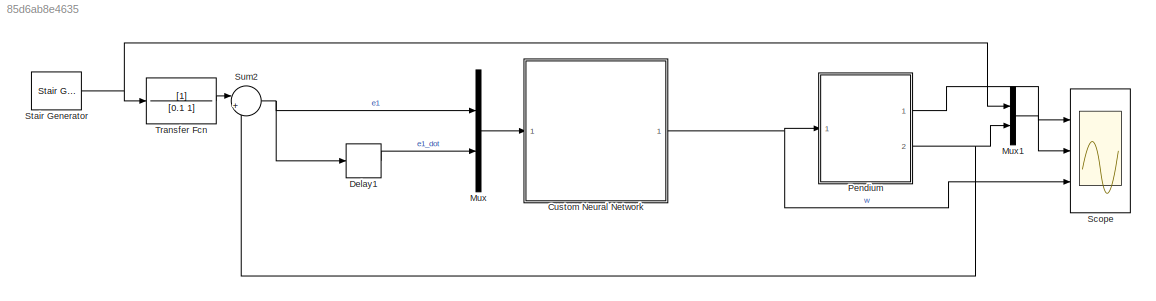
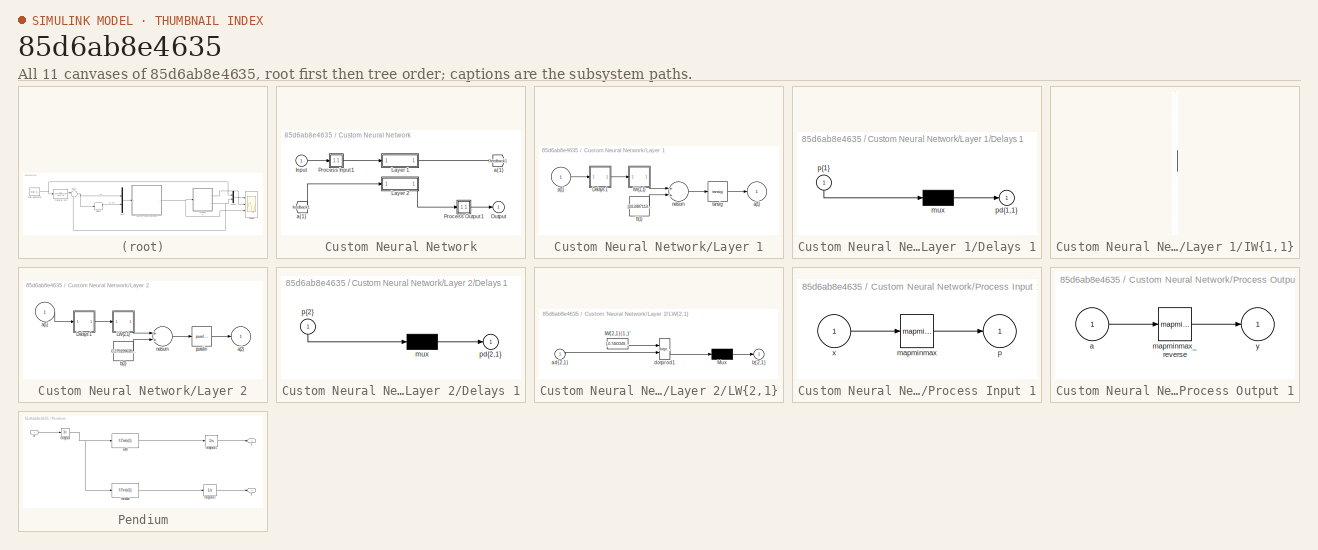
[diagram: thumbnail index - all 11 canvases of the model, root first then tree order]
MODEL slx_85d6ab8e4635
KIND model
CONFIG AbsTol = auto
CONFIG EnableMultiTasking = off
CONFIG FixedStep = 0.01
CONFIG MaxStep = auto
CONFIG MinStep = auto
CONFIG RelTol = 1e-3
CONFIG SampleTimeConstraint = Unconstrained
CONFIG Solver = ode5
CONFIG SolverName = ode5
CONFIG StartTime = 0.0
CONFIG StopTime = 60
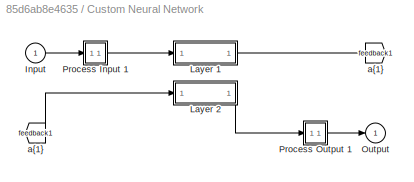
BLOCK [SubSystem] Custom Neural Network
  Ports = [1, 1]
  RequestExecContextInheritance = off
  Variant = off
BLOCK [From] Custom Neural Network/ a{1} 
  GotoTag = feedback1
BLOCK [Inport] Custom Neural Network/Input
  IconDisplay = Port number
  PortDimensions = 2
BLOCK [SubSystem] Custom Neural Network/Layer 1
  Ports = [1, 1]
  RequestExecContextInheritance = off
  Variant = off
BLOCK [SubSystem] Custom Neural Network/Layer 1/Delays 1
  Ports = [1, 1]
  RequestExecContextInheritance = off
  Variant = off
BLOCK [Mux] Custom Neural Network/Layer 1/Delays 1/mux
  Inputs = 1
  Ports = [1, 1]
BLOCK [Outport] Custom Neural Network/Layer 1/Delays 1/pd{1,1}
  IconDisplay = Port number
BLOCK [Inport] Custom Neural Network/Layer 1/Delays 1/p{1}
  IconDisplay = Port number
  PortDimensions = 2
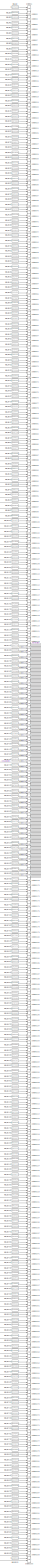
[diagram: Custom Neural Network/Layer 1/IW{1,1} - part 1/3, center side, full height]
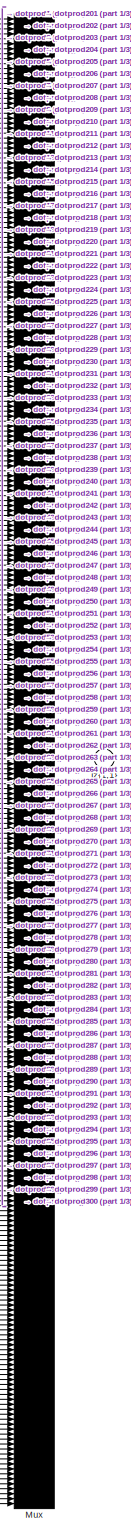
[diagram: Custom Neural Network/Layer 1/IW{1,1} - part 2/3, middle right region]
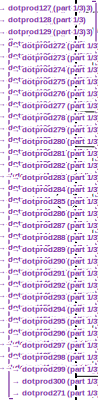
[diagram: Custom Neural Network/Layer 1/IW{1,1} - part 3/3, middle left region]
BLOCK [SubSystem] Custom Neural Network/Layer 1/IW{1,1}
  Ports = [1, 1]
  RequestExecContextInheritance = off
  Variant = off
BLOCK [Constant] Custom Neural Network/Layer 1/IW{1,1}/IW{1,1}(1,:)'
  Value = [-16.0752283409085094945112359710037708282470703125;18.154532045387181682372101931832730770111083984375]
BLOCK [Constant] Custom Neural Network/Layer 1/IW{1,1}/IW{1,1}(10,:)'
  Value = [0.73204587028224932243603007009369321167469024658203125;24.359312614735369351137705962173640727996826171875]
BLOCK [Constant] Custom Neural Network/Layer 1/IW{1,1}/IW{1,1}(100,:)'
  Value = [-17.004973730229554718107465305365622043609619140625;-17.386444955442367898967859218828380107879638671875]
BLOCK [Constant] Custom Neural Network/Layer 1/IW{1,1}/IW{1,1}(101,:)'
  Value = [-6.8470613841096845675338045111857354640960693359375;23.34484313201406990856412448920309543609619140625]
BLOCK [Constant] Custom Neural Network/Layer 1/IW{1,1}/IW{1,1}(102,:)'
  Value = [-9.805212247719719442784480634145438671112060546875;-22.15792614554260353543213568627834320068359375]
BLOCK [Constant] Custom Neural Network/Layer 1/IW{1,1}/IW{1,1}(103,:)'
  Value = [20.801290074782809114140036399476230144500732421875;12.4025785724043888791356948786415159702301025390625]
BLOCK [Constant] Custom Neural Network/Layer 1/IW{1,1}/IW{1,1}(104,:)'
  Value = [0.197782509159387220876169521943666040897369384765625;-24.185984047409316843868509749881923198699951171875]
BLOCK [Constant] Custom Neural Network/Layer 1/IW{1,1}/IW{1,1}(105,:)'
  Value = [-23.302980091630363546073567704297602176666259765625;6.592344527928094777280421112664043903350830078125]
BLOCK [Constant] Custom Neural Network/Layer 1/IW{1,1}/IW{1,1}(106,:)'
  Value = [15.01355711522810310043496428988873958587646484375;19.042827632353674260912157478742301464080810546875]
BLOCK [Constant] Custom Neural Network/Layer 1/IW{1,1}/IW{1,1}(107,:)'
  Value = [-1.003213132528643303231774552841670811176300048828125;-24.23345998471069151491974480450153350830078125]
BLOCK [Constant] Custom Neural Network/Layer 1/IW{1,1}/IW{1,1}(108,:)'
  Value = [17.01694713424459592943094321526587009429931640625;17.21131351912514872992687742225825786590576171875]
BLOCK [Constant] Custom Neural Network/Layer 1/IW{1,1}/IW{1,1}(109,:)'
  Value = [16.93919645849616273380888742394745349884033203125;17.377177200084819475023323320783674716949462890625]
BLOCK [Constant] Custom Neural Network/Layer 1/IW{1,1}/IW{1,1}(11,:)'
  Value = [21.177644546532238933878034004010260105133056640625;12.0762112830634062987655852339230477809906005859375]
BLOCK [Constant] Custom Neural Network/Layer 1/IW{1,1}/IW{1,1}(110,:)'
  Value = [20.00589912227502509267651475965976715087890625;13.76982146889356073415910941548645496368408203125]
BLOCK [Constant] Custom Neural Network/Layer 1/IW{1,1}/IW{1,1}(111,:)'
  Value = [11.8332564397688226875970940454863011837005615234375;-21.1002110795648576413441332988440990447998046875]
BLOCK [Constant] Custom Neural Network/Layer 1/IW{1,1}/IW{1,1}(112,:)'
  Value = [-15.6089828547791427126867347396910190582275390625;-18.54864934371541806967798038385808467864990234375]
BLOCK [Constant] Custom Neural Network/Layer 1/IW{1,1}/IW{1,1}(113,:)'
  Value = [8.449424944331031639421780710108578205108642578125;22.7563679689618112433890928514301776885986328125]
BLOCK [Constant] Custom Neural Network/Layer 1/IW{1,1}/IW{1,1}(114,:)'
  Value = [-4.64486582558441885026923046098090708255767822265625;-23.839151204174658715828627464361488819122314453125]
BLOCK [Constant] Custom Neural Network/Layer 1/IW{1,1}/IW{1,1}(115,:)'
  Value = [-22.319108425393597627817143802531063556671142578125;-9.3088044259087698861776516423560678958892822265625]
BLOCK [Constant] Custom Neural Network/Layer 1/IW{1,1}/IW{1,1}(116,:)'
  Value = [16.44286969523003705262453877367079257965087890625;17.85118867251235741377968224696815013885498046875]
BLOCK [Constant] Custom Neural Network/Layer 1/IW{1,1}/IW{1,1}(117,:)'
  Value = [24.20083411639833315120995393954217433929443359375;1.5350297128966963189355965369031764566898345947265625]
BLOCK [Constant] Custom Neural Network/Layer 1/IW{1,1}/IW{1,1}(118,:)'
  Value = [16.403733596216749646146126906387507915496826171875;-17.8902569926099062058710842393338680267333984375]
BLOCK [Constant] Custom Neural Network/Layer 1/IW{1,1}/IW{1,1}(119,:)'
  Value = [-13.478396767669043043724741437472403049468994140625;-20.16138026651145054302105563692748546600341796875]
BLOCK [Constant] Custom Neural Network/Layer 1/IW{1,1}/IW{1,1}(12,:)'
  Value = [-24.152180949811867805010479060001671314239501953125;-0.3474507238521293839283998750033788383007049560546875]
BLOCK [Constant] Custom Neural Network/Layer 1/IW{1,1}/IW{1,1}(120,:)'
  Value = [20.948777665392327662630123086273670196533203125;-12.271055988305615613853660761378705501556396484375]
BLOCK [Constant] Custom Neural Network/Layer 1/IW{1,1}/IW{1,1}(121,:)'
  Value = [-8.208312030116108104493832797743380069732666015625;-22.83253784371339634162723086774349212646484375]
BLOCK [Constant] Custom Neural Network/Layer 1/IW{1,1}/IW{1,1}(122,:)'
  Value = [-15.60575434881888412519401754252612590789794921875;-18.4718128358507982511582667939364910125732421875]
BLOCK [Constant] Custom Neural Network/Layer 1/IW{1,1}/IW{1,1}(123,:)'
  Value = [21.75364466471392432822540285997092723846435546875;-10.6106564226423483177086382056586444377899169921875]
BLOCK [Constant] Custom Neural Network/Layer 1/IW{1,1}/IW{1,1}(124,:)'
  Value = [24.264770002103642099200442316941916942596435546875;0.932046959099437799523002468049526214599609375]
BLOCK [Constant] Custom Neural Network/Layer 1/IW{1,1}/IW{1,1}(125,:)'
  Value = [10.7033926245634329887934654834680259227752685546875;21.77700607297180113164358772337436676025390625]
BLOCK [Constant] Custom Neural Network/Layer 1/IW{1,1}/IW{1,1}(126,:)'
  Value = [-0.68680611441385408522108946272055618464946746826171875;-24.234478869335706718857181840576231479644775390625]
BLOCK [Constant] Custom Neural Network/Layer 1/IW{1,1}/IW{1,1}(127,:)'
  Value = [24.091845166145919421296639484353363513946533203125;2.75710858101300981815029444987885653972625732421875]
BLOCK [Constant] Custom Neural Network/Layer 1/IW{1,1}/IW{1,1}(128,:)'
  Value = [-24.241769654574387260481671546585857868194580078125;0.55347770764944115295946858168463222682476043701171875]
BLOCK [Constant] Custom Neural Network/Layer 1/IW{1,1}/IW{1,1}(129,:)'
  Value = [21.7623898242204489861251204274594783782958984375;-10.7226241791204781605983953340910375118255615234375]
BLOCK [Constant] Custom Neural Network/Layer 1/IW{1,1}/IW{1,1}(13,:)'
  Value = [23.9670262922669081717685912735760211944580078125;2.916230806325643687415549720753915607929229736328125]
BLOCK [Constant] Custom Neural Network/Layer 1/IW{1,1}/IW{1,1}(130,:)'
  Value = [-7.4104540369152740453273509046994149684906005859375;-23.180364055856291116697320831008255481719970703125]
BLOCK [Constant] Custom Neural Network/Layer 1/IW{1,1}/IW{1,1}(131,:)'
  Value = [-13.9983662087632438897344400174915790557861328125;19.876379863893770760796542163006961345672607421875]
BLOCK [Constant] Custom Neural Network/Layer 1/IW{1,1}/IW{1,1}(132,:)'
  Value = [10.854089527568302031568236998282372951507568359375;21.589567680041884756292347447015345096588134765625]
BLOCK [Constant] Custom Neural Network/Layer 1/IW{1,1}/IW{1,1}(133,:)'
  Value = [21.377218184707711401415508589707314968109130859375;11.6226267619819569887340549030341207981109619140625]
BLOCK [Constant] Custom Neural Network/Layer 1/IW{1,1}/IW{1,1}(134,:)'
  Value = [23.16127210840081573905990808270871639251708984375;-7.10539624639730593713693451718427240848541259765625]
BLOCK [Constant] Custom Neural Network/Layer 1/IW{1,1}/IW{1,1}(135,:)'
  Value = [16.032768729252925510309069068171083927154541015625;-18.1546984328596181512693874537944793701171875]
BLOCK [Constant] Custom Neural Network/Layer 1/IW{1,1}/IW{1,1}(136,:)'
  Value = [-9.1863342589487206879539371584542095661163330078125;22.446518427922871552482320112176239490509033203125]
BLOCK [Constant] Custom Neural Network/Layer 1/IW{1,1}/IW{1,1}(137,:)'
  Value = [-20.28280530462993880291833193041384220123291015625;13.246994457479249973630430758930742740631103515625]
BLOCK [Constant] Custom Neural Network/Layer 1/IW{1,1}/IW{1,1}(138,:)'
  Value = [24.21225350326432845804447424598038196563720703125;1.263473026450639746798287887941114604473114013671875]
BLOCK [Constant] Custom Neural Network/Layer 1/IW{1,1}/IW{1,1}(139,:)'
  Value = [-11.855917843948031276113397325389087200164794921875;-21.15793208839414063504591467790305614471435546875]
BLOCK [Constant] Custom Neural Network/Layer 1/IW{1,1}/IW{1,1}(14,:)'
  Value = [-11.582972442666207513184417621232569217681884765625;-21.300173931650757452871403074823319911956787109375]
BLOCK [Constant] Custom Neural Network/Layer 1/IW{1,1}/IW{1,1}(140,:)'
  Value = [11.40414454183069636883374187164008617401123046875;21.4070574908231066046937485225498676300048828125]
BLOCK [Constant] Custom Neural Network/Layer 1/IW{1,1}/IW{1,1}(141,:)'
  Value = [-2.787883029337935969493855736800469458103179931640625;-24.10289805836601573219013516791164875030517578125]
BLOCK [Constant] Custom Neural Network/Layer 1/IW{1,1}/IW{1,1}(142,:)'
  Value = [-22.528912189280038802507988293655216693878173828125;9.029287947317985896233949461020529270172119140625]
BLOCK [Constant] Custom Neural Network/Layer 1/IW{1,1}/IW{1,1}(143,:)'
  Value = [23.0335282248975516949940356425940990447998046875;-7.8744522043013365220076593686826527118682861328125]
BLOCK [Constant] Custom Neural Network/Layer 1/IW{1,1}/IW{1,1}(144,:)'
  Value = [-8.7705710928655786773333602468483150005340576171875;-22.60485021381916936888956115581095218658447265625]
BLOCK [Constant] Custom Neural Network/Layer 1/IW{1,1}/IW{1,1}(145,:)'
  Value = [-24.084325204781254825547875952906906604766845703125;2.950039460001097513242029890534467995166778564453125]
BLOCK [Constant] Custom Neural Network/Layer 1/IW{1,1}/IW{1,1}(146,:)'
  Value = [22.26454413826726153047275147400796413421630859375;-9.6510233250073014232839341275393962860107421875]
BLOCK [Constant] Custom Neural Network/Layer 1/IW{1,1}/IW{1,1}(147,:)'
  Value = [-9.2231179332307942075885875965468585491180419921875;22.518449409478908052051338017918169498443603515625]
BLOCK [Constant] Custom Neural Network/Layer 1/IW{1,1}/IW{1,1}(148,:)'
  Value = [21.400101893911763539790626964531838893890380859375;11.4866748408854402185852450202219188213348388671875]
BLOCK [Constant] Custom Neural Network/Layer 1/IW{1,1}/IW{1,1}(149,:)'
  Value = [-13.3398566979832562395813511102460324764251708984375;-20.21842470866861418699045316316187381744384765625]
BLOCK [Constant] Custom Neural Network/Layer 1/IW{1,1}/IW{1,1}(15,:)'
  Value = [-18.044048588450198877808361430652439594268798828125;-16.39976000677483369827314163558185100555419921875]
BLOCK [Constant] Custom Neural Network/Layer 1/IW{1,1}/IW{1,1}(150,:)'
  Value = [-12.2453375913759003879022202454507350921630859375;-20.9379392989228705346249626018106937408447265625]
BLOCK [Constant] Custom Neural Network/Layer 1/IW{1,1}/IW{1,1}(151,:)'
  Value = [23.88784343151871070176639477722346782684326171875;4.03011807158762369596161079243756830692291259765625]
BLOCK [Constant] Custom Neural Network/Layer 1/IW{1,1}/IW{1,1}(152,:)'
  Value = [23.680010678996961104303409229032695293426513671875;5.23519451282207892717224240186624228954315185546875]
BLOCK [Constant] Custom Neural Network/Layer 1/IW{1,1}/IW{1,1}(153,:)'
  Value = [12.3859254541107102198793654679320752620697021484375;20.84527060191391711896358174271881580352783203125]
BLOCK [Constant] Custom Neural Network/Layer 1/IW{1,1}/IW{1,1}(154,:)'
  Value = [12.2037976171561464155956855393014848232269287109375;-21.0107419007059803561787703074514865875244140625]
BLOCK [Constant] Custom Neural Network/Layer 1/IW{1,1}/IW{1,1}(155,:)'
  Value = [-23.88675706525697961524201673455536365509033203125;4.12368318178160553344469008152373135089874267578125]
BLOCK [Constant] Custom Neural Network/Layer 1/IW{1,1}/IW{1,1}(156,:)'
  Value = [23.35863727953699964245970477350056171417236328125;6.429660994305919530233950354158878326416015625]
BLOCK [Constant] Custom Neural Network/Layer 1/IW{1,1}/IW{1,1}(157,:)'
  Value = [3.186452418622324866959161226986907422542572021484375;-24.076227742644960017059929668903350830078125]
BLOCK [Constant] Custom Neural Network/Layer 1/IW{1,1}/IW{1,1}(158,:)'
  Value = [-13.0947929347946452338646849966607987880706787109375;20.36023510827661908706431859172880649566650390625]
BLOCK [Constant] Custom Neural Network/Layer 1/IW{1,1}/IW{1,1}(159,:)'
  Value = [-10.343553867432714099550139508210122585296630859375;-21.863851584606390332510272855870425701141357421875]
BLOCK [Constant] Custom Neural Network/Layer 1/IW{1,1}/IW{1,1}(16,:)'
  Value = [17.5087442739933720758926938287913799285888671875;16.5741949231980498780103516764938831329345703125]
BLOCK [Constant] Custom Neural Network/Layer 1/IW{1,1}/IW{1,1}(160,:)'
  Value = [-23.327035963541771224072363111190497875213623046875;6.58170878624491972885834911721758544445037841796875]
BLOCK [Constant] Custom Neural Network/Layer 1/IW{1,1}/IW{1,1}(161,:)'
  Value = [11.0164167888461772548680528416298329830169677734375;-21.619662601705538662599792587570846080780029296875]
BLOCK [Constant] Custom Neural Network/Layer 1/IW{1,1}/IW{1,1}(162,:)'
  Value = [-19.55262629920559191987194935791194438934326171875;14.2262926281600936562199422041885554790496826171875]
BLOCK [Constant] Custom Neural Network/Layer 1/IW{1,1}/IW{1,1}(163,:)'
  Value = [20.298738153937705419593839906156063079833984375;-13.2016203496902395642109695472754538059234619140625]
BLOCK [Constant] Custom Neural Network/Layer 1/IW{1,1}/IW{1,1}(164,:)'
  Value = [-19.986236977443251561226134072057902812957763671875;13.6572699016284087036865457776002585887908935546875]
BLOCK [Constant] Custom Neural Network/Layer 1/IW{1,1}/IW{1,1}(165,:)'
  Value = [10.935200711024581465835581184364855289459228515625;-21.67098119992883908935255021788179874420166015625]
BLOCK [Constant] Custom Neural Network/Layer 1/IW{1,1}/IW{1,1}(166,:)'
  Value = [15.9849599223011207271838429733179509639739990234375;-18.233412933124210297819445258937776088714599609375]
BLOCK [Constant] Custom Neural Network/Layer 1/IW{1,1}/IW{1,1}(167,:)'
  Value = [18.54957797763305649141329922713339328765869140625;-15.623260773043551097316594677977263927459716796875]
BLOCK [Constant] Custom Neural Network/Layer 1/IW{1,1}/IW{1,1}(168,:)'
  Value = [24.07355813504018016146801528520882129669189453125;2.463089138843511438636824095738120377063751220703125]
BLOCK [Constant] Custom Neural Network/Layer 1/IW{1,1}/IW{1,1}(169,:)'
  Value = [24.1471138215769798307519522495567798614501953125;2.539350205575924945833321544341742992401123046875]
BLOCK [Constant] Custom Neural Network/Layer 1/IW{1,1}/IW{1,1}(17,:)'
  Value = [-24.386246390801193939523727749474346637725830078125;0.55179271177615507593117172291385941207408905029296875]
BLOCK [Constant] Custom Neural Network/Layer 1/IW{1,1}/IW{1,1}(170,:)'
  Value = [-24.14308455446607837302508414722979068756103515625;-1.741690366867800321415415965020656585693359375]
BLOCK [Constant] Custom Neural Network/Layer 1/IW{1,1}/IW{1,1}(171,:)'
  Value = [-14.7642417939136922910847715684212744235992431640625;-19.130900788513113042199620394967496395111083984375]
BLOCK [Constant] Custom Neural Network/Layer 1/IW{1,1}/IW{1,1}(172,:)'
  Value = [-3.833646260579954390124157725949771702289581298828125;-23.946671217401313214168112608604133129119873046875]
BLOCK [Constant] Custom Neural Network/Layer 1/IW{1,1}/IW{1,1}(173,:)'
  Value = [-2.518150998084863534387523031909950077533721923828125;-24.111385895987755390024176449514925479888916015625]
BLOCK [Constant] Custom Neural Network/Layer 1/IW{1,1}/IW{1,1}(174,:)'
  Value = [-1.172961017960375773583336922456510365009307861328125;-24.21382038840403083668206818401813507080078125]
BLOCK [Constant] Custom Neural Network/Layer 1/IW{1,1}/IW{1,1}(175,:)'
  Value = [-13.81971017495141751396658946759998798370361328125;-19.902405330922359638634588918648660182952880859375]
BLOCK [Constant] Custom Neural Network/Layer 1/IW{1,1}/IW{1,1}(176,:)'
  Value = [-21.42847938516863592894878820516169071197509765625;11.334621745020474037346502882428467273712158203125]
BLOCK [Constant] Custom Neural Network/Layer 1/IW{1,1}/IW{1,1}(177,:)'
  Value = [-23.562781693195557153330810251645743846893310546875;5.7627590951413747433207390713505446910858154296875]
BLOCK [Constant] Custom Neural Network/Layer 1/IW{1,1}/IW{1,1}(178,:)'
  Value = [-15.6172242378615226954252648283727467060089111328125;18.545461588965370225423612282611429691314697265625]
BLOCK [Constant] Custom Neural Network/Layer 1/IW{1,1}/IW{1,1}(179,:)'
  Value = [-17.490524376432706077366674435324966907501220703125;-16.82932967445912453285927767865359783172607421875]
BLOCK [Constant] Custom Neural Network/Layer 1/IW{1,1}/IW{1,1}(18,:)'
  Value = [-4.33861029059746439173750331974588334560394287109375;23.861158304976985533585320808924734592437744140625]
BLOCK [Constant] Custom Neural Network/Layer 1/IW{1,1}/IW{1,1}(180,:)'
  Value = [10.9572813307260421566979857743717730045318603515625;21.558746863513665203981872764416038990020751953125]
BLOCK [Constant] Custom Neural Network/Layer 1/IW{1,1}/IW{1,1}(181,:)'
  Value = [-20.405461780279626538003867608495056629180908203125;13.1445714015963250886898094904609024524688720703125]
BLOCK [Constant] Custom Neural Network/Layer 1/IW{1,1}/IW{1,1}(182,:)'
  Value = [24.097272130945750490127466036938130855560302734375;3.022437050167986694049204743350856006145477294921875]
BLOCK [Constant] Custom Neural Network/Layer 1/IW{1,1}/IW{1,1}(183,:)'
  Value = [-13.115061689926147181495252880267798900604248046875;20.420211921068950999824664904735982418060302734375]
BLOCK [Constant] Custom Neural Network/Layer 1/IW{1,1}/IW{1,1}(184,:)'
  Value = [-0.043732958043760976341030044522995012812316417694091796875;-24.15403216447264611588252591900527477264404296875]
BLOCK [Constant] Custom Neural Network/Layer 1/IW{1,1}/IW{1,1}(185,:)'
  Value = [-23.8960392590974066706621670164167881011962890625;-4.54549240014453292957341545843519270420074462890625]
BLOCK [Constant] Custom Neural Network/Layer 1/IW{1,1}/IW{1,1}(186,:)'
  Value = [9.5261563740675825329162762500345706939697265625;-22.34749210884464076798394671641290187835693359375]
BLOCK [Constant] Custom Neural Network/Layer 1/IW{1,1}/IW{1,1}(187,:)'
  Value = [8.5319368080668045450920544681139290332794189453125;22.688260561957196870253028464503586292266845703125]
BLOCK [Constant] Custom Neural Network/Layer 1/IW{1,1}/IW{1,1}(188,:)'
  Value = [-16.37512217778387224598191096447408199310302734375;17.88446152039363568064800347201526165008544921875]
BLOCK [Constant] Custom Neural Network/Layer 1/IW{1,1}/IW{1,1}(189,:)'
  Value = [-18.754980556965822557913270429708063602447509765625;-15.41562177621269569272044464014470577239990234375]
BLOCK [Constant] Custom Neural Network/Layer 1/IW{1,1}/IW{1,1}(19,:)'
  Value = [-12.0616905236484708296984535991214215755462646484375;21.036055279213226043566464795731008052825927734375]
BLOCK [Constant] Custom Neural Network/Layer 1/IW{1,1}/IW{1,1}(190,:)'
  Value = [1.821348879964064249037392073660157620906829833984375;-24.148486573371851449110181420110166072845458984375]
BLOCK [Constant] Custom Neural Network/Layer 1/IW{1,1}/IW{1,1}(191,:)'
  Value = [1.4596581239920141115362639538943767547607421875;24.245437079178604022899889969266951084136962890625]
BLOCK [Constant] Custom Neural Network/Layer 1/IW{1,1}/IW{1,1}(192,:)'
  Value = [23.629484510617810855137577163986861705780029296875;5.47804713506936824529702789732255041599273681640625]
BLOCK [Constant] Custom Neural Network/Layer 1/IW{1,1}/IW{1,1}(193,:)'
  Value = [24.148760236641447107786007109098136425018310546875;2.2852804240484605458050282322801649570465087890625]
BLOCK [Constant] Custom Neural Network/Layer 1/IW{1,1}/IW{1,1}(194,:)'
  Value = [-18.34672233966829679729926283471286296844482421875;15.8569472051674882351335327257402241230010986328125]
BLOCK [Constant] Custom Neural Network/Layer 1/IW{1,1}/IW{1,1}(195,:)'
  Value = [-11.035997853011227931574467220343649387359619140625;21.6427867905295414630018058232963085174560546875]
BLOCK [Constant] Custom Neural Network/Layer 1/IW{1,1}/IW{1,1}(196,:)'
  Value = [-11.520595171560852776337924296967685222625732421875;-21.404220205133949406217652722261846065521240234375]
BLOCK [Constant] Custom Neural Network/Layer 1/IW{1,1}/IW{1,1}(197,:)'
  Value = [21.85224353847869593892028206028044223785400390625;10.4316168583181507756307837553322315216064453125]
BLOCK [Constant] Custom Neural Network/Layer 1/IW{1,1}/IW{1,1}(198,:)'
  Value = [-20.448498274879209901655485737137496471405029296875;-13.150383367634940867674231412820518016815185546875]
BLOCK [Constant] Custom Neural Network/Layer 1/IW{1,1}/IW{1,1}(199,:)'
  Value = [4.12561321175494644108994179987348616123199462890625;-23.775404635182827206563160871155560016632080078125]
BLOCK [Constant] Custom Neural Network/Layer 1/IW{1,1}/IW{1,1}(2,:)'
  Value = [-23.902409128257861681277063325978815555572509765625;-4.94708800436619267060223137377761304378509521484375]
BLOCK [Constant] Custom Neural Network/Layer 1/IW{1,1}/IW{1,1}(20,:)'
  Value = [15.0684334568911442175931370002217590808868408203125;18.949273802046452175318336230702698230743408203125]
BLOCK [Constant] Custom Neural Network/Layer 1/IW{1,1}/IW{1,1}(200,:)'
  Value = [-12.0374719107326146882996908971108496189117431640625;-21.185797696589485639151462237350642681121826171875]
BLOCK [Constant] Custom Neural Network/Layer 1/IW{1,1}/IW{1,1}(201,:)'
  Value = [7.8003984062121549669654996250756084918975830078125;-22.92460392717699591003110981546342372894287109375]
BLOCK [Constant] Custom Neural Network/Layer 1/IW{1,1}/IW{1,1}(202,:)'
  Value = [24.177051715626934225156219326891005039215087890625;1.528105920288167940412904499680735170841217041015625]
BLOCK [Constant] Custom Neural Network/Layer 1/IW{1,1}/IW{1,1}(203,:)'
  Value = [22.963422706752989910228279768489301204681396484375;-7.63682585323796292442466437933035194873809814453125]
BLOCK [Constant] Custom Neural Network/Layer 1/IW{1,1}/IW{1,1}(204,:)'
  Value = [18.690797241636797565433880663476884365081787109375;-15.4488288671237352644993734429590404033660888671875]
BLOCK [Constant] Custom Neural Network/Layer 1/IW{1,1}/IW{1,1}(205,:)'
  Value = [-10.0726687624125048614587285555899143218994140625;21.99834141540616627708004671148955821990966796875]
BLOCK [Constant] Custom Neural Network/Layer 1/IW{1,1}/IW{1,1}(206,:)'
  Value = [13.1899321807739848821938721812330186367034912109375;-20.347889382223097953783508273772895336151123046875]
BLOCK [Constant] Custom Neural Network/Layer 1/IW{1,1}/IW{1,1}(207,:)'
  Value = [-21.164691269360023540002657682634890079498291015625;12.19387849400241208286388427950441837310791015625]
BLOCK [Constant] Custom Neural Network/Layer 1/IW{1,1}/IW{1,1}(208,:)'
  Value = [-17.0029036019052881556490319781005382537841796875;-17.26533505101991039509812253527343273162841796875]
BLOCK [Constant] Custom Neural Network/Layer 1/IW{1,1}/IW{1,1}(209,:)'
  Value = [16.316953637805742260979968705214560031890869140625;17.884176269299320694017296773381531238555908203125]
BLOCK [Constant] Custom Neural Network/Layer 1/IW{1,1}/IW{1,1}(21,:)'
  Value = [12.5668427724633655628849737695418298244476318359375;20.647369032521890375164730357937514781951904296875]
BLOCK [Constant] Custom Neural Network/Layer 1/IW{1,1}/IW{1,1}(210,:)'
  Value = [18.45740581266985458341878256760537624359130859375;15.766454204201384214911740855313837528228759765625]
BLOCK [Constant] Custom Neural Network/Layer 1/IW{1,1}/IW{1,1}(211,:)'
  Value = [-18.28714909224896700834506191313266754150390625;-15.8860587266478976431471892283298075199127197265625]
BLOCK [Constant] Custom Neural Network/Layer 1/IW{1,1}/IW{1,1}(212,:)'
  Value = [-13.352133577727595792339343461208045482635498046875;20.241477397153953887709576520137488842010498046875]
BLOCK [Constant] Custom Neural Network/Layer 1/IW{1,1}/IW{1,1}(213,:)'
  Value = [-23.93856200988901861137492232955992221832275390625;3.750744244950297900942359774489887058734893798828125]
BLOCK [Constant] Custom Neural Network/Layer 1/IW{1,1}/IW{1,1}(214,:)'
  Value = [-23.56763489328039185011220979504287242889404296875;-5.7433414891186060913241817615926265716552734375]
BLOCK [Constant] Custom Neural Network/Layer 1/IW{1,1}/IW{1,1}(215,:)'
  Value = [22.018670632917984875120964716188609600067138671875;9.983255980637228077512190793640911579132080078125]
BLOCK [Constant] Custom Neural Network/Layer 1/IW{1,1}/IW{1,1}(216,:)'
  Value = [-5.7453219333335407981167008983902633190155029296875;-23.5354773042559628493108903057873249053955078125]
BLOCK [Constant] Custom Neural Network/Layer 1/IW{1,1}/IW{1,1}(217,:)'
  Value = [-6.2051611837611186928143069962970912456512451171875;-23.428606673326523690548128797672688961029052734375]
BLOCK [Constant] Custom Neural Network/Layer 1/IW{1,1}/IW{1,1}(218,:)'
  Value = [3.3000692120943586616022002999670803546905517578125;24.140979955431117076614100369624793529510498046875]
BLOCK [Constant] Custom Neural Network/Layer 1/IW{1,1}/IW{1,1}(219,:)'
  Value = [20.653007864188769104885068372823297977447509765625;12.835873369834832402602842194028198719024658203125]
BLOCK [Constant] Custom Neural Network/Layer 1/IW{1,1}/IW{1,1}(22,:)'
  Value = [-22.550879646253410015788176679052412509918212890625;-8.8917565416558801416613277979195117950439453125]
BLOCK [Constant] Custom Neural Network/Layer 1/IW{1,1}/IW{1,1}(220,:)'
  Value = [-0.48233278511894439599672068652580492198467254638671875;-24.27134160075396351885501644574105739593505859375]
BLOCK [Constant] Custom Neural Network/Layer 1/IW{1,1}/IW{1,1}(221,:)'
  Value = [-12.8620302557750942895609114202670753002166748046875;20.55647503768808093127518077380955219268798828125]
BLOCK [Constant] Custom Neural Network/Layer 1/IW{1,1}/IW{1,1}(222,:)'
  Value = [-24.097950551339607727641123346984386444091796875;1.772418960922777841915376484394073486328125]
BLOCK [Constant] Custom Neural Network/Layer 1/IW{1,1}/IW{1,1}(223,:)'
  Value = [18.656798155521155280212042271159589290618896484375;-15.4894773476654616928271934739314019680023193359375]
BLOCK [Constant] Custom Neural Network/Layer 1/IW{1,1}/IW{1,1}(224,:)'
  Value = [-11.087215480266987555069135851226747035980224609375;-21.597857582316859037518952391110360622406005859375]
BLOCK [Constant] Custom Neural Network/Layer 1/IW{1,1}/IW{1,1}(225,:)'
  Value = [21.63960286617668060671348939649760723114013671875;-10.85883334944933409360601217485964298248291015625]
BLOCK [Constant] Custom Neural Network/Layer 1/IW{1,1}/IW{1,1}(226,:)'
  Value = [-2.14290777222644379662597202695906162261962890625;-24.1267367917195514337436179630458354949951171875]
BLOCK [Constant] Custom Neural Network/Layer 1/IW{1,1}/IW{1,1}(227,:)'
  Value = [19.090529853797047366015249281190335750579833984375;14.85499303993957909142409334890544414520263671875]
BLOCK [Constant] Custom Neural Network/Layer 1/IW{1,1}/IW{1,1}(228,:)'
  Value = [17.059005451439201550556390429846942424774169921875;-17.2334074761007514098309911787509918212890625]
BLOCK [Constant] Custom Neural Network/Layer 1/IW{1,1}/IW{1,1}(229,:)'
  Value = [15.057027512038775540759161231108009815216064453125;18.958188164435068046032029087655246257781982421875]
BLOCK [Constant] Custom Neural Network/Layer 1/IW{1,1}/IW{1,1}(23,:)'
  Value = [17.387582882065860445663929567672312259674072265625;16.876168632264249680474677006714046001434326171875]
BLOCK [Constant] Custom Neural Network/Layer 1/IW{1,1}/IW{1,1}(230,:)'
  Value = [8.8291298952644385877874810830689966678619384765625;-22.640497155563121367549683782272040843963623046875]
BLOCK [Constant] Custom Neural Network/Layer 1/IW{1,1}/IW{1,1}(231,:)'
  Value = [17.7600198785164167247785371728241443634033203125;-16.510048257139033012208528816699981689453125]
BLOCK [Constant] Custom Neural Network/Layer 1/IW{1,1}/IW{1,1}(232,:)'
  Value = [17.88120250326381466265956987626850605010986328125;16.091998723999413556384752155281603336334228515625]
BLOCK [Constant] Custom Neural Network/Layer 1/IW{1,1}/IW{1,1}(233,:)'
  Value = [24.16248202452748472524035605601966381072998046875;-2.329621575726624538305031819618307054042816162109375]
BLOCK [Constant] Custom Neural Network/Layer 1/IW{1,1}/IW{1,1}(234,:)'
  Value = [9.750945043687156754685929627157747745513916015625;-22.152409302107056277009178302250802516937255859375]
BLOCK [Constant] Custom Neural Network/Layer 1/IW{1,1}/IW{1,1}(235,:)'
  Value = [-22.007715860884285774545787717215716838836669921875;10.017956546448896659740057657472789287567138671875]
BLOCK [Constant] Custom Neural Network/Layer 1/IW{1,1}/IW{1,1}(236,:)'
  Value = [-18.7660393930510309701276128180325031280517578125;-15.3914223364111588665537055931054055690765380859375]
BLOCK [Constant] Custom Neural Network/Layer 1/IW{1,1}/IW{1,1}(237,:)'
  Value = [-21.323511684131016608034769888035953044891357421875;-11.4349087379792155871882641804404556751251220703125]
BLOCK [Constant] Custom Neural Network/Layer 1/IW{1,1}/IW{1,1}(238,:)'
  Value = [14.1846263068755575886825681664049625396728515625;-19.66713951594228859676150023005902767181396484375]
BLOCK [Constant] Custom Neural Network/Layer 1/IW{1,1}/IW{1,1}(239,:)'
  Value = [7.3213172482979818056492149480618536472320556640625;-23.154352597822732917620669468306005001068115234375]
BLOCK [Constant] Custom Neural Network/Layer 1/IW{1,1}/IW{1,1}(24,:)'
  Value = [7.5777468897929249891376457526348531246185302734375;-23.034320566241863303957870812155306339263916015625]
BLOCK [Constant] Custom Neural Network/Layer 1/IW{1,1}/IW{1,1}(240,:)'
  Value = [17.213010090583406253017528797499835491180419921875;-17.079586752094055412953821360133588314056396484375]
BLOCK [Constant] Custom Neural Network/Layer 1/IW{1,1}/IW{1,1}(241,:)'
  Value = [-11.1225548876398594444481204845942556858062744140625;-21.72760624467056089770267135463654994964599609375]
BLOCK [Constant] Custom Neural Network/Layer 1/IW{1,1}/IW{1,1}(242,:)'
  Value = [-16.0439122128226614449886255897581577301025390625;18.18221331153398523383657447993755340576171875]
BLOCK [Constant] Custom Neural Network/Layer 1/IW{1,1}/IW{1,1}(243,:)'
  Value = [-23.98309268688795015123105258680880069732666015625;-4.49434811249826093870751719805411994457244873046875]
BLOCK [Constant] Custom Neural Network/Layer 1/IW{1,1}/IW{1,1}(244,:)'
  Value = [14.226966263077802210545996786095201969146728515625;19.643048245998443235293962061405181884765625]
BLOCK [Constant] Custom Neural Network/Layer 1/IW{1,1}/IW{1,1}(245,:)'
  Value = [22.43695890888398736251474474556744098663330078125;-8.864976452398618533834451227448880672454833984375]
BLOCK [Constant] Custom Neural Network/Layer 1/IW{1,1}/IW{1,1}(246,:)'
  Value = [20.352971020444616812028471031226217746734619140625;-13.181675361486203001959438552148640155792236328125]
BLOCK [Constant] Custom Neural Network/Layer 1/IW{1,1}/IW{1,1}(247,:)'
  Value = [-23.745937097762993772676054504700005054473876953125;4.403327773973092718051702831871807575225830078125]
BLOCK [Constant] Custom Neural Network/Layer 1/IW{1,1}/IW{1,1}(248,:)'
  Value = [-16.32770094389717741023559938184916973114013671875;17.927804714650182660307109472341835498809814453125]
BLOCK [Constant] Custom Neural Network/Layer 1/IW{1,1}/IW{1,1}(249,:)'
  Value = [-23.8985785091305587002352694980800151824951171875;-3.618536715421903249279012015904299914836883544921875]
BLOCK [Constant] Custom Neural Network/Layer 1/IW{1,1}/IW{1,1}(25,:)'
  Value = [12.8162085762435236091505430522374808788299560546875;20.649734760931021781971139716915786266326904296875]
BLOCK [Constant] Custom Neural Network/Layer 1/IW{1,1}/IW{1,1}(250,:)'
  Value = [16.22811499202054363877323339693248271942138671875;17.81173965477913867516690515913069248199462890625]
BLOCK [Constant] Custom Neural Network/Layer 1/IW{1,1}/IW{1,1}(251,:)'
  Value = [1.849935314355912741035581348114646971225738525390625;24.144099732218069931377613102085888385772705078125]
BLOCK [Constant] Custom Neural Network/Layer 1/IW{1,1}/IW{1,1}(252,:)'
  Value = [22.2190654537688345726564875803887844085693359375;9.64564464595472514929497265256941318511962890625]
BLOCK [Constant] Custom Neural Network/Layer 1/IW{1,1}/IW{1,1}(253,:)'
  Value = [-17.86459980625780730179030797444283962249755859375;-16.6470989311194017545858514495193958282470703125]
BLOCK [Constant] Custom Neural Network/Layer 1/IW{1,1}/IW{1,1}(254,:)'
  Value = [-15.830186779260856155815417878329753875732421875;-18.4732607649713287401027628220617771148681640625]
BLOCK [Constant] Custom Neural Network/Layer 1/IW{1,1}/IW{1,1}(255,:)'
  Value = [22.6202566059901215567151666618883609771728515625;8.2463640948437575417528933030553162097930908203125]
BLOCK [Constant] Custom Neural Network/Layer 1/IW{1,1}/IW{1,1}(256,:)'
  Value = [-0.64424905070271354379229933329042978584766387939453125;24.113240035249845050202566199004650115966796875]
BLOCK [Constant] Custom Neural Network/Layer 1/IW{1,1}/IW{1,1}(257,:)'
  Value = [-15.4220252558617172411459250724874436855316162109375;18.712593005983013227933042799122631549835205078125]
BLOCK [Constant] Custom Neural Network/Layer 1/IW{1,1}/IW{1,1}(258,:)'
  Value = [-4.56392978064616716693535636295564472675323486328125;23.8245351334483785876727779395878314971923828125]
BLOCK [Constant] Custom Neural Network/Layer 1/IW{1,1}/IW{1,1}(259,:)'
  Value = [24.201021104641672110346917179413139820098876953125;-1.82693354555117881687920089461840689182281494140625]
BLOCK [Constant] Custom Neural Network/Layer 1/IW{1,1}/IW{1,1}(26,:)'
  Value = [-11.6899593858680912461522893863730132579803466796875;-21.3590778734923247839105897583067417144775390625]
BLOCK [Constant] Custom Neural Network/Layer 1/IW{1,1}/IW{1,1}(260,:)'
  Value = [-8.076998369736681837594005628488957881927490234375;-22.879268059888598685347460559569299221038818359375]
BLOCK [Constant] Custom Neural Network/Layer 1/IW{1,1}/IW{1,1}(261,:)'
  Value = [9.0310261119048931277575320564210414886474609375;-22.50424483693338828516061767004430294036865234375]
BLOCK [Constant] Custom Neural Network/Layer 1/IW{1,1}/IW{1,1}(262,:)'
  Value = [-15.1009157959908062451859223074279725551605224609375;18.972673562848033412819859222508966922760009765625]
BLOCK [Constant] Custom Neural Network/Layer 1/IW{1,1}/IW{1,1}(263,:)'
  Value = [14.95768171570922078217336093075573444366455078125;18.933483672289437294011804624460637569427490234375]
BLOCK [Constant] Custom Neural Network/Layer 1/IW{1,1}/IW{1,1}(264,:)'
  Value = [-24.2453527137916040601339773274958133697509765625;-0.464394016258113218054148774172062985599040985107421875]
BLOCK [Constant] Custom Neural Network/Layer 1/IW{1,1}/IW{1,1}(265,:)'
  Value = [-23.755755852803272176743121235631406307220458984375;-4.41180910757775013308901179698295891284942626953125]
BLOCK [Constant] Custom Neural Network/Layer 1/IW{1,1}/IW{1,1}(266,:)'
  Value = [15.44389473061796280717317131347954273223876953125;18.325238885977075398159286123700439929962158203125]
BLOCK [Constant] Custom Neural Network/Layer 1/IW{1,1}/IW{1,1}(267,:)'
  Value = [-20.7326987414618741922822664491832256317138671875;-12.82850749596828876519793993793427944183349609375]
BLOCK [Constant] Custom Neural Network/Layer 1/IW{1,1}/IW{1,1}(268,:)'
  Value = [-10.21231007168472615376231260597705841064453125;-21.897591237984695311524774297140538692474365234375]
BLOCK [Constant] Custom Neural Network/Layer 1/IW{1,1}/IW{1,1}(269,:)'
  Value = [-19.007102896967268179651000536978244781494140625;-15.21940717548080357346407254226505756378173828125]
BLOCK [Constant] Custom Neural Network/Layer 1/IW{1,1}/IW{1,1}(27,:)'
  Value = [24.028517520696052400808184756897389888763427734375;3.70459586491363435101220602518878877162933349609375]
BLOCK [Constant] Custom Neural Network/Layer 1/IW{1,1}/IW{1,1}(270,:)'
  Value = [-21.081910835901307876838473021052777767181396484375;11.9813619995065199219652640749700367450714111328125]
BLOCK [Constant] Custom Neural Network/Layer 1/IW{1,1}/IW{1,1}(271,:)'
  Value = [-14.24523276604075050499886856414377689361572265625;-19.565176564215857268891340936534106731414794921875]
BLOCK [Constant] Custom Neural Network/Layer 1/IW{1,1}/IW{1,1}(272,:)'
  Value = [-16.900901658998765952901521814055740833282470703125;17.3884882354060010811735992319881916046142578125]
BLOCK [Constant] Custom Neural Network/Layer 1/IW{1,1}/IW{1,1}(273,:)'
  Value = [-5.98888441205851851378838546224869787693023681640625;23.50413830389064884229810559190809726715087890625]
BLOCK [Constant] Custom Neural Network/Layer 1/IW{1,1}/IW{1,1}(274,:)'
  Value = [20.82346057614834222704303101636469364166259765625;12.5019974144977208396767309750430285930633544921875]
BLOCK [Constant] Custom Neural Network/Layer 1/IW{1,1}/IW{1,1}(275,:)'
  Value = [-3.900329690649081637587869408889673650264739990234375;-23.932985971094655752722246688790619373321533203125]
BLOCK [Constant] Custom Neural Network/Layer 1/IW{1,1}/IW{1,1}(276,:)'
  Value = [11.734941869377760070847216411493718624114990234375;-21.220064545753540841133144567720592021942138671875]
BLOCK [Constant] Custom Neural Network/Layer 1/IW{1,1}/IW{1,1}(277,:)'
  Value = [22.359229902966632153038517571985721588134765625;-9.38428561801922711538281873799860477447509765625]
BLOCK [Constant] Custom Neural Network/Layer 1/IW{1,1}/IW{1,1}(278,:)'
  Value = [-16.444574946170586571270177955739200115203857421875;17.8206608979515266355519997887313365936279296875]
BLOCK [Constant] Custom Neural Network/Layer 1/IW{1,1}/IW{1,1}(279,:)'
  Value = [-1.120483163382475222391576608060859143733978271484375;24.107421188954592849995606229640543460845947265625]
BLOCK [Constant] Custom Neural Network/Layer 1/IW{1,1}/IW{1,1}(28,:)'
  Value = [1.3471544763639597963589267237694002687931060791015625;-24.363464583938451823996729217469692230224609375]
BLOCK [Constant] Custom Neural Network/Layer 1/IW{1,1}/IW{1,1}(280,:)'
  Value = [23.600768656919033361418769345618784427642822265625;5.72190041600950127786973098409362137317657470703125]
BLOCK [Constant] Custom Neural Network/Layer 1/IW{1,1}/IW{1,1}(281,:)'
  Value = [-23.642572469917947586282025440596044063568115234375;3.88774263009998666262845290475524961948394775390625]
BLOCK [Constant] Custom Neural Network/Layer 1/IW{1,1}/IW{1,1}(282,:)'
  Value = [22.45703645863012098971012164838612079620361328125;9.208231948452890947010018862783908843994140625]
BLOCK [Constant] Custom Neural Network/Layer 1/IW{1,1}/IW{1,1}(283,:)'
  Value = [16.02480669164270210558242979459464550018310546875;18.31261570503375679663804476149380207061767578125]
BLOCK [Constant] Custom Neural Network/Layer 1/IW{1,1}/IW{1,1}(284,:)'
  Value = [21.914087032249529585214986582286655902862548828125;10.3759660505617450354520769906230270862579345703125]
BLOCK [Constant] Custom Neural Network/Layer 1/IW{1,1}/IW{1,1}(285,:)'
  Value = [-15.5628908166603725504728572559542953968048095703125;-18.5968381436469059053706587292253971099853515625]
BLOCK [Constant] Custom Neural Network/Layer 1/IW{1,1}/IW{1,1}(286,:)'
  Value = [-14.1640457786166820142170763574540615081787109375;-19.560520570749975632907080580480396747589111328125]
BLOCK [Constant] Custom Neural Network/Layer 1/IW{1,1}/IW{1,1}(287,:)'
  Value = [2.01983034338795075512962284847162663936614990234375;24.134630654353248502275164355523884296417236328125]
BLOCK [Constant] Custom Neural Network/Layer 1/IW{1,1}/IW{1,1}(288,:)'
  Value = [23.819784760987875671389701892621815204620361328125;-3.56182344797552019599606865085661411285400390625]
BLOCK [Constant] Custom Neural Network/Layer 1/IW{1,1}/IW{1,1}(289,:)'
  Value = [-22.425617954148830079930121428333222866058349609375;9.2245140425529683625427423976361751556396484375]
BLOCK [Constant] Custom Neural Network/Layer 1/IW{1,1}/IW{1,1}(29,:)'
  Value = [13.91781879597630222633597441017627716064453125;-19.856845676231575481551772099919617176055908203125]
BLOCK [Constant] Custom Neural Network/Layer 1/IW{1,1}/IW{1,1}(290,:)'
  Value = [19.929582712180856418626717641018331050872802734375;13.979217177464160926092517911456525325775146484375]
BLOCK [Constant] Custom Neural Network/Layer 1/IW{1,1}/IW{1,1}(291,:)'
  Value = [10.9539032496555108764368924312293529510498046875;-21.63358508425388748719342402182519435882568359375]
BLOCK [Constant] Custom Neural Network/Layer 1/IW{1,1}/IW{1,1}(292,:)'
  Value = [-3.0935901027010483943513463600538671016693115234375;24.0146225921433966732365661300718784332275390625]
BLOCK [Constant] Custom Neural Network/Layer 1/IW{1,1}/IW{1,1}(293,:)'
  Value = [-0.14934926344673538078922092608991079032421112060546875;24.029070833354911229662320693023502826690673828125]
BLOCK [Constant] Custom Neural Network/Layer 1/IW{1,1}/IW{1,1}(294,:)'
  Value = [-13.6190038153401484777305086026899516582489013671875;20.0629692487864446093226433731615543365478515625]
BLOCK [Constant] Custom Neural Network/Layer 1/IW{1,1}/IW{1,1}(295,:)'
  Value = [17.5867445668870772124137147329747676849365234375;-16.694502554405982408525233040563762187957763671875]
BLOCK [Constant] Custom Neural Network/Layer 1/IW{1,1}/IW{1,1}(296,:)'
  Value = [-22.22730806743529541336101829074323177337646484375;-9.696036151162022775906734750606119632720947265625]
BLOCK [Constant] Custom Neural Network/Layer 1/IW{1,1}/IW{1,1}(297,:)'
  Value = [15.7863475698091111354415261303074657917022705078125;18.405979715918693528919902746565639972686767578125]
BLOCK [Constant] Custom Neural Network/Layer 1/IW{1,1}/IW{1,1}(298,:)'
  Value = [-19.720770491422143777526798658072948455810546875;14.1099685054451366994499039719812572002410888671875]
BLOCK [Constant] Custom Neural Network/Layer 1/IW{1,1}/IW{1,1}(299,:)'
  Value = [18.62669766159723394594038836658000946044921875;15.4389609813366295298919794731773436069488525390625]
BLOCK [Constant] Custom Neural Network/Layer 1/IW{1,1}/IW{1,1}(3,:)'
  Value = [-1.311511692706661680318802609690465033054351806640625;-24.310817146654269294003825052641332149505615234375]
BLOCK [Constant] Custom Neural Network/Layer 1/IW{1,1}/IW{1,1}(30,:)'
  Value = [-24.060580579778903853593874373473227024078369140625;-3.007228580106964255236334793153218924999237060546875]
BLOCK [Constant] Custom Neural Network/Layer 1/IW{1,1}/IW{1,1}(300,:)'
  Value = [-1.128891047873316733074489093269221484661102294921875;24.15716974604013245198075310327112674713134765625]
BLOCK [Constant] Custom Neural Network/Layer 1/IW{1,1}/IW{1,1}(31,:)'
  Value = [-19.872778226331977435847875312902033329010009765625;13.895058773053808209851922583766281604766845703125]
BLOCK [Constant] Custom Neural Network/Layer 1/IW{1,1}/IW{1,1}(32,:)'
  Value = [22.373195387803480826960367267020046710968017578125;-9.350912371103419218343333341181278228759765625]
BLOCK [Constant] Custom Neural Network/Layer 1/IW{1,1}/IW{1,1}(33,:)'
  Value = [-8.1774287381046644185289551387540996074676513671875;-22.6344222971865747240372002124786376953125]
BLOCK [Constant] Custom Neural Network/Layer 1/IW{1,1}/IW{1,1}(34,:)'
  Value = [-0.50901132302542240193332645503687672317028045654296875;24.185865488070401596587544190697371959686279296875]
BLOCK [Constant] Custom Neural Network/Layer 1/IW{1,1}/IW{1,1}(35,:)'
  Value = [-21.35621041185668644857287290506064891815185546875;11.4853647504551599212163637275807559490203857421875]
BLOCK [Constant] Custom Neural Network/Layer 1/IW{1,1}/IW{1,1}(36,:)'
  Value = [-17.634149391506401371998435934074223041534423828125;-16.95178126874683499636375927366316318511962890625]
BLOCK [Constant] Custom Neural Network/Layer 1/IW{1,1}/IW{1,1}(37,:)'
  Value = [-22.589159554836360399576733470894396305084228515625;8.8164841680002030699370152433402836322784423828125]
BLOCK [Constant] Custom Neural Network/Layer 1/IW{1,1}/IW{1,1}(38,:)'
  Value = [19.82907876137254987725100363604724407196044921875;-13.9573503913327812142597394995391368865966796875]
BLOCK [Constant] Custom Neural Network/Layer 1/IW{1,1}/IW{1,1}(39,:)'
  Value = [-23.5324788614149298382471897639334201812744140625;-6.715248190781526460568784386850893497467041015625]
BLOCK [Constant] Custom Neural Network/Layer 1/IW{1,1}/IW{1,1}(4,:)'
  Value = [22.33555441488513082504141493700444698333740234375;9.3378708235961926931167909060604870319366455078125]
BLOCK [Constant] Custom Neural Network/Layer 1/IW{1,1}/IW{1,1}(40,:)'
  Value = [19.541404924753205563092706142924726009368896484375;13.625936440251475545437642722390592098236083984375]
BLOCK [Constant] Custom Neural Network/Layer 1/IW{1,1}/IW{1,1}(41,:)'
  Value = [15.4117152439274303077354488777928054332733154296875;-18.721084028788400388521040440537035465240478515625]
BLOCK [Constant] Custom Neural Network/Layer 1/IW{1,1}/IW{1,1}(42,:)'
  Value = [20.985079189245713138234350481070578098297119140625;11.909830694224723401930532418191432952880859375]
BLOCK [Constant] Custom Neural Network/Layer 1/IW{1,1}/IW{1,1}(43,:)'
  Value = [5.66945031172996305457445487263612449169158935546875;23.326244433126174016024378943257033824920654296875]
BLOCK [Constant] Custom Neural Network/Layer 1/IW{1,1}/IW{1,1}(44,:)'
  Value = [7.9540812572622971998725915909744799137115478515625;-22.880059624844360399720244458876550197601318359375]
BLOCK [Constant] Custom Neural Network/Layer 1/IW{1,1}/IW{1,1}(45,:)'
  Value = [-15.042246727735911093759568757377564907073974609375;19.0192294672826420764977228827774524688720703125]
BLOCK [Constant] Custom Neural Network/Layer 1/IW{1,1}/IW{1,1}(46,:)'
  Value = [-11.1988969224637546773237772868014872074127197265625;-21.494888279946334108672090223990380764007568359375]
BLOCK [Constant] Custom Neural Network/Layer 1/IW{1,1}/IW{1,1}(47,:)'
  Value = [-5.0987619783741973122914714622311294078826904296875;23.558479527234833739157693344168365001678466796875]
BLOCK [Constant] Custom Neural Network/Layer 1/IW{1,1}/IW{1,1}(48,:)'
  Value = [-2.1499410570420849353467929176986217498779296875;-24.111935655303692982442953507415950298309326171875]
BLOCK [Constant] Custom Neural Network/Layer 1/IW{1,1}/IW{1,1}(49,:)'
  Value = [1.9762354712896890163165153353475034236907958984375;-24.160979059260199619529885239899158477783203125]
BLOCK [Constant] Custom Neural Network/Layer 1/IW{1,1}/IW{1,1}(5,:)'
  Value = [-19.11101795902822431116874213330447673797607421875;14.9254478185839669635015525273047387599945068359375]
BLOCK [Constant] Custom Neural Network/Layer 1/IW{1,1}/IW{1,1}(50,:)'
  Value = [20.314264945932375638903977232985198497772216796875;-13.2370415346826693081538905971683561801910400390625]
BLOCK [Constant] Custom Neural Network/Layer 1/IW{1,1}/IW{1,1}(51,:)'
  Value = [-3.9405622217008851038144712219946086406707763671875;23.837778974996620462434293585829436779022216796875]
BLOCK [Constant] Custom Neural Network/Layer 1/IW{1,1}/IW{1,1}(52,:)'
  Value = [8.513194616781579071584928897209465503692626953125;22.936351635933821313528824248351156711578369140625]
BLOCK [Constant] Custom Neural Network/Layer 1/IW{1,1}/IW{1,1}(53,:)'
  Value = [22.491467222242764734119191416539251804351806640625;-9.065829370089513616903786896727979183197021484375]
BLOCK [Constant] Custom Neural Network/Layer 1/IW{1,1}/IW{1,1}(54,:)'
  Value = [-15.90587398325337886717534274794161319732666015625;-18.191525802561390179334921413101255893707275390625]
BLOCK [Constant] Custom Neural Network/Layer 1/IW{1,1}/IW{1,1}(55,:)'
  Value = [-10.5478172556144471627703751437366008758544921875;21.83480478226535836938637658022344112396240234375]
BLOCK [Constant] Custom Neural Network/Layer 1/IW{1,1}/IW{1,1}(56,:)'
  Value = [3.830245413821453670522032552980817854404449462890625;23.77365154060697705062921158969402313232421875]
BLOCK [Constant] Custom Neural Network/Layer 1/IW{1,1}/IW{1,1}(57,:)'
  Value = [18.13756750053220656582197989337146282196044921875;-16.086805332065441831446150899864733219146728515625]
BLOCK [Constant] Custom Neural Network/Layer 1/IW{1,1}/IW{1,1}(58,:)'
  Value = [-20.11872906846192421426167129538953304290771484375;-13.573868630929478484858918818645179271697998046875]
BLOCK [Constant] Custom Neural Network/Layer 1/IW{1,1}/IW{1,1}(59,:)'
  Value = [-13.6238266320020020572201246977783739566802978515625;20.059810516998567209157044999301433563232421875]
BLOCK [Constant] Custom Neural Network/Layer 1/IW{1,1}/IW{1,1}(6,:)'
  Value = [12.03133011298274368527927435934543609619140625;21.305358804892904345251736231148242950439453125]
BLOCK [Constant] Custom Neural Network/Layer 1/IW{1,1}/IW{1,1}(60,:)'
  Value = [-22.922061199254898156141280196607112884521484375;-8.3718660087422005489088405738584697246551513671875]
BLOCK [Constant] Custom Neural Network/Layer 1/IW{1,1}/IW{1,1}(61,:)'
  Value = [-22.56382714421467738930004998110234737396240234375;-8.665001710980686056018384988419711589813232421875]
BLOCK [Constant] Custom Neural Network/Layer 1/IW{1,1}/IW{1,1}(62,:)'
  Value = [-18.05833686649065583651463384740054607391357421875;16.1756899088633048222618526779115200042724609375]
BLOCK [Constant] Custom Neural Network/Layer 1/IW{1,1}/IW{1,1}(63,:)'
  Value = [-17.23192920069055134035806986503303050994873046875;17.040148117988763942776131443679332733154296875]
BLOCK [Constant] Custom Neural Network/Layer 1/IW{1,1}/IW{1,1}(64,:)'
  Value = [-12.26908617806794410398651962168514728546142578125;-21.133071446622228251044361968524754047393798828125]
BLOCK [Constant] Custom Neural Network/Layer 1/IW{1,1}/IW{1,1}(65,:)'
  Value = [17.183708805196456381736425100825726985931396484375;-17.094055911528396762832926469855010509490966796875]
BLOCK [Constant] Custom Neural Network/Layer 1/IW{1,1}/IW{1,1}(66,:)'
  Value = [2.3385516573491660352601684280671179294586181640625;24.032942120579622979903433588333427906036376953125]
BLOCK [Constant] Custom Neural Network/Layer 1/IW{1,1}/IW{1,1}(67,:)'
  Value = [12.9784620622515891597004156210459768772125244140625;-20.48375607756086225208491669036448001861572265625]
BLOCK [Constant] Custom Neural Network/Layer 1/IW{1,1}/IW{1,1}(68,:)'
  Value = [-6.01977218964537019729732492123730480670928955078125;23.56421782611284498898385209031403064727783203125]
BLOCK [Constant] Custom Neural Network/Layer 1/IW{1,1}/IW{1,1}(69,:)'
  Value = [-16.84135193987447820518355001695454120635986328125;17.426052777584249753317635622806847095489501953125]
BLOCK [Constant] Custom Neural Network/Layer 1/IW{1,1}/IW{1,1}(7,:)'
  Value = [-20.8317925523600280257596750743687152862548828125;-12.7032567016124549041933278203941881656646728515625]
BLOCK [Constant] Custom Neural Network/Layer 1/IW{1,1}/IW{1,1}(70,:)'
  Value = [-22.11092865105269567038703826256096363067626953125;9.9010084692773911996255264966748654842376708984375]
BLOCK [Constant] Custom Neural Network/Layer 1/IW{1,1}/IW{1,1}(71,:)'
  Value = [19.372234773415843989141649217344820499420166015625;-14.5854029033771670498254025005735456943511962890625]
BLOCK [Constant] Custom Neural Network/Layer 1/IW{1,1}/IW{1,1}(72,:)'
  Value = [-20.82893235137336063189650303684175014495849609375;12.4017049646332626622324823983944952487945556640625]
BLOCK [Constant] Custom Neural Network/Layer 1/IW{1,1}/IW{1,1}(73,:)'
  Value = [-17.680391641806462388331055990420281887054443359375;-16.42772183647439732112616184167563915252685546875]
BLOCK [Constant] Custom Neural Network/Layer 1/IW{1,1}/IW{1,1}(74,:)'
  Value = [-14.087535004151476414335775189101696014404296875;19.713305041804634498703308054246008396148681640625]
BLOCK [Constant] Custom Neural Network/Layer 1/IW{1,1}/IW{1,1}(75,:)'
  Value = [7.40672722363488578167789455619640648365020751953125;-23.081153306540354464004849432967603206634521484375]
BLOCK [Constant] Custom Neural Network/Layer 1/IW{1,1}/IW{1,1}(76,:)'
  Value = [24.02439522991858922296160017140209674835205078125;3.60133202957514253483850552584044635295867919921875]
BLOCK [Constant] Custom Neural Network/Layer 1/IW{1,1}/IW{1,1}(77,:)'
  Value = [-5.75449732772545896608562543406151235103607177734375;-23.4329825460673788484200485982000827789306640625]
BLOCK [Constant] Custom Neural Network/Layer 1/IW{1,1}/IW{1,1}(78,:)'
  Value = [23.929151358188136100579868070781230926513671875;3.846931990756726538194243403268046677112579345703125]
BLOCK [Constant] Custom Neural Network/Layer 1/IW{1,1}/IW{1,1}(79,:)'
  Value = [-10.225041219286882920869174995459616184234619140625;21.864314092484590901221963576972484588623046875]
BLOCK [Constant] Custom Neural Network/Layer 1/IW{1,1}/IW{1,1}(8,:)'
  Value = [9.88038012285499434028679388575255870819091796875;-22.14448212725140052725691930390894412994384765625]
BLOCK [Constant] Custom Neural Network/Layer 1/IW{1,1}/IW{1,1}(80,:)'
  Value = [18.93647628873736010746142710559070110321044921875;-15.1526153390381210783743881620466709136962890625]
BLOCK [Constant] Custom Neural Network/Layer 1/IW{1,1}/IW{1,1}(81,:)'
  Value = [-21.904942310851566844576154835522174835205078125;10.1595261855811376250358080142177641391754150390625]
BLOCK [Constant] Custom Neural Network/Layer 1/IW{1,1}/IW{1,1}(82,:)'
  Value = [-23.58815827093267358804951072670519351959228515625;5.51373643424487358544183734920807182788848876953125]
BLOCK [Constant] Custom Neural Network/Layer 1/IW{1,1}/IW{1,1}(83,:)'
  Value = [12.8357284654234913290338226943276822566986083984375;-20.59912645639283113041528849862515926361083984375]
BLOCK [Constant] Custom Neural Network/Layer 1/IW{1,1}/IW{1,1}(84,:)'
  Value = [-14.2405121091274953215588539023883640766143798828125;19.625091479146380635256718960590660572052001953125]
BLOCK [Constant] Custom Neural Network/Layer 1/IW{1,1}/IW{1,1}(85,:)'
  Value = [21.5583206179900770393942366354167461395263671875;11.32772219957478654350779834203422069549560546875]
BLOCK [Constant] Custom Neural Network/Layer 1/IW{1,1}/IW{1,1}(86,:)'
  Value = [9.106167779046227650496803107671439647674560546875;22.65164422320907533503486774861812591552734375]
BLOCK [Constant] Custom Neural Network/Layer 1/IW{1,1}/IW{1,1}(87,:)'
  Value = [-19.41849655228647719695800333283841609954833984375;14.52409703041377753152119112201035022735595703125]
BLOCK [Constant] Custom Neural Network/Layer 1/IW{1,1}/IW{1,1}(88,:)'
  Value = [-24.232046399535892788890123483724892139434814453125;-3.044252718246422517722749034874141216278076171875]
BLOCK [Constant] Custom Neural Network/Layer 1/IW{1,1}/IW{1,1}(89,:)'
  Value = [9.028356423602222236013403744436800479888916015625;-22.44894808261997098952633677981793880462646484375]
BLOCK [Constant] Custom Neural Network/Layer 1/IW{1,1}/IW{1,1}(9,:)'
  Value = [-14.339277314761691428657286451198160648345947265625;-19.440169029387707411160590709187090396881103515625]
BLOCK [Constant] Custom Neural Network/Layer 1/IW{1,1}/IW{1,1}(90,:)'
  Value = [-9.09861773358957037771688192151486873626708984375;-22.419621507840016505497260368429124355316162109375]
BLOCK [Constant] Custom Neural Network/Layer 1/IW{1,1}/IW{1,1}(91,:)'
  Value = [-11.1370436220787691894429372041486203670501708984375;-21.514414368867331717183333239518105983734130859375]
BLOCK [Constant] Custom Neural Network/Layer 1/IW{1,1}/IW{1,1}(92,:)'
  Value = [-20.796221385503304901476440136320888996124267578125;12.525773510362324003608591738156974315643310546875]
BLOCK [Constant] Custom Neural Network/Layer 1/IW{1,1}/IW{1,1}(93,:)'
  Value = [-17.089589619786270446866183192469179630279541015625;-17.230619641434021360737460781820118427276611328125]
BLOCK [Constant] Custom Neural Network/Layer 1/IW{1,1}/IW{1,1}(94,:)'
  Value = [-22.98517290758744735512664192356169223785400390625;-7.69076490448740290872819969081319868564605712890625]
BLOCK [Constant] Custom Neural Network/Layer 1/IW{1,1}/IW{1,1}(95,:)'
  Value = [20.550529593481950740851971204392611980438232421875;12.7979957374944159909091467852704226970672607421875]
BLOCK [Constant] Custom Neural Network/Layer 1/IW{1,1}/IW{1,1}(96,:)'
  Value = [-13.835017536219623934812261722981929779052734375;19.89333594725388110191488522104918956756591796875]
BLOCK [Constant] Custom Neural Network/Layer 1/IW{1,1}/IW{1,1}(97,:)'
  Value = [19.060879146882616197444804129190742969512939453125;-14.961212410590942312182960449717938899993896484375]
BLOCK [Constant] Custom Neural Network/Layer 1/IW{1,1}/IW{1,1}(98,:)'
  Value = [-22.020678423721665950552051072008907794952392578125;10.1619333473233357523213271633721888065338134765625]
BLOCK [Constant] Custom Neural Network/Layer 1/IW{1,1}/IW{1,1}(99,:)'
  Value = [-9.8630987937506962026645851437933743000030517578125;-22.13460615389207220005118870176374912261962890625]
BLOCK [Mux] Custom Neural Network/Layer 1/IW{1,1}/Mux
  Inputs = 300
  Ports = [300, 1]
BLOCK [Reference] Custom Neural Network/Layer 1/IW{1,1}/dotprod1  REF=neural/Weight Functions/dotprod
  Ports = [2, 1]
  SourceBlock = neural/Weight Functions/dotprod
  SourceProductBaseCode = NN
  SourceProductName = Neural Network Toolbox
  SourceType = DOTPROD
BLOCK [Reference] Custom Neural Network/Layer 1/IW{1,1}/dotprod10  REF=neural/Weight Functions/dotprod
  Ports = [2, 1]
  SourceBlock = neural/Weight Functions/dotprod
  SourceProductBaseCode = NN
  SourceProductName = Neural Network Toolbox
  SourceType = DOTPROD
BLOCK [Reference] Custom Neural Network/Layer 1/IW{1,1}/dotprod100  REF=neural/Weight Functions/dotprod
  Ports = [2, 1]
  SourceBlock = neural/Weight Functions/dotprod
  SourceProductBaseCode = NN
  SourceProductName = Neural Network Toolbox
  SourceType = DOTPROD
BLOCK [Reference] Custom Neural Network/Layer 1/IW{1,1}/dotprod101  REF=neural/Weight Functions/dotprod
  Ports = [2, 1]
  SourceBlock = neural/Weight Functions/dotprod
  SourceProductBaseCode = NN
  SourceProductName = Neural Network Toolbox
  SourceType = DOTPROD
BLOCK [Reference] Custom Neural Network/Layer 1/IW{1,1}/dotprod102  REF=neural/Weight Functions/dotprod
  Ports = [2, 1]
  SourceBlock = neural/Weight Functions/dotprod
  SourceProductBaseCode = NN
  SourceProductName = Neural Network Toolbox
  SourceType = DOTPROD
BLOCK [Reference] Custom Neural Network/Layer 1/IW{1,1}/dotprod103  REF=neural/Weight Functions/dotprod
  Ports = [2, 1]
  SourceBlock = neural/Weight Functions/dotprod
  SourceProductBaseCode = NN
  SourceProductName = Neural Network Toolbox
  SourceType = DOTPROD
BLOCK [Reference] Custom Neural Network/Layer 1/IW{1,1}/dotprod104  REF=neural/Weight Functions/dotprod
  Ports = [2, 1]
  SourceBlock = neural/Weight Functions/dotprod
  SourceProductBaseCode = NN
  SourceProductName = Neural Network Toolbox
  SourceType = DOTPROD
BLOCK [Reference] Custom Neural Network/Layer 1/IW{1,1}/dotprod105  REF=neural/Weight Functions/dotprod
  Ports = [2, 1]
  SourceBlock = neural/Weight Functions/dotprod
  SourceProductBaseCode = NN
  SourceProductName = Neural Network Toolbox
  SourceType = DOTPROD
BLOCK [Reference] Custom Neural Network/Layer 1/IW{1,1}/dotprod106  REF=neural/Weight Functions/dotprod
  Ports = [2, 1]
  SourceBlock = neural/Weight Functions/dotprod
  SourceProductBaseCode = NN
  SourceProductName = Neural Network Toolbox
  SourceType = DOTPROD
BLOCK [Reference] Custom Neural Network/Layer 1/IW{1,1}/dotprod107  REF=neural/Weight Functions/dotprod
  Ports = [2, 1]
  SourceBlock = neural/Weight Functions/dotprod
  SourceProductBaseCode = NN
  SourceProductName = Neural Network Toolbox
  SourceType = DOTPROD
BLOCK [Reference] Custom Neural Network/Layer 1/IW{1,1}/dotprod108  REF=neural/Weight Functions/dotprod
  Ports = [2, 1]
  SourceBlock = neural/Weight Functions/dotprod
  SourceProductBaseCode = NN
  SourceProductName = Neural Network Toolbox
  SourceType = DOTPROD
BLOCK [Reference] Custom Neural Network/Layer 1/IW{1,1}/dotprod109  REF=neural/Weight Functions/dotprod
  Ports = [2, 1]
  SourceBlock = neural/Weight Functions/dotprod
  SourceProductBaseCode = NN
  SourceProductName = Neural Network Toolbox
  SourceType = DOTPROD
BLOCK [Reference] Custom Neural Network/Layer 1/IW{1,1}/dotprod11  REF=neural/Weight Functions/dotprod
  Ports = [2, 1]
  SourceBlock = neural/Weight Functions/dotprod
  SourceProductBaseCode = NN
  SourceProductName = Neural Network Toolbox
  SourceType = DOTPROD
BLOCK [Reference] Custom Neural Network/Layer 1/IW{1,1}/dotprod110  REF=neural/Weight Functions/dotprod
  Ports = [2, 1]
  SourceBlock = neural/Weight Functions/dotprod
  SourceProductBaseCode = NN
  SourceProductName = Neural Network Toolbox
  SourceType = DOTPROD
BLOCK [Reference] Custom Neural Network/Layer 1/IW{1,1}/dotprod111  REF=neural/Weight Functions/dotprod
  Ports = [2, 1]
  SourceBlock = neural/Weight Functions/dotprod
  SourceProductBaseCode = NN
  SourceProductName = Neural Network Toolbox
  SourceType = DOTPROD
BLOCK [Reference] Custom Neural Network/Layer 1/IW{1,1}/dotprod112  REF=neural/Weight Functions/dotprod
  Ports = [2, 1]
  SourceBlock = neural/Weight Functions/dotprod
  SourceProductBaseCode = NN
  SourceProductName = Neural Network Toolbox
  SourceType = DOTPROD
BLOCK [Reference] Custom Neural Network/Layer 1/IW{1,1}/dotprod113  REF=neural/Weight Functions/dotprod
  Ports = [2, 1]
  SourceBlock = neural/Weight Functions/dotprod
  SourceProductBaseCode = NN
  SourceProductName = Neural Network Toolbox
  SourceType = DOTPROD
BLOCK [Reference] Custom Neural Network/Layer 1/IW{1,1}/dotprod114  REF=neural/Weight Functions/dotprod
  Ports = [2, 1]
  SourceBlock = neural/Weight Functions/dotprod
  SourceProductBaseCode = NN
  SourceProductName = Neural Network Toolbox
  SourceType = DOTPROD
BLOCK [Reference] Custom Neural Network/Layer 1/IW{1,1}/dotprod115  REF=neural/Weight Functions/dotprod
  Ports = [2, 1]
  SourceBlock = neural/Weight Functions/dotprod
  SourceProductBaseCode = NN
  SourceProductName = Neural Network Toolbox
  SourceType = DOTPROD
BLOCK [Reference] Custom Neural Network/Layer 1/IW{1,1}/dotprod116  REF=neural/Weight Functions/dotprod
  Ports = [2, 1]
  SourceBlock = neural/Weight Functions/dotprod
  SourceProductBaseCode = NN
  SourceProductName = Neural Network Toolbox
  SourceType = DOTPROD
BLOCK [Reference] Custom Neural Network/Layer 1/IW{1,1}/dotprod117  REF=neural/Weight Functions/dotprod
  Ports = [2, 1]
  SourceBlock = neural/Weight Functions/dotprod
  SourceProductBaseCode = NN
  SourceProductName = Neural Network Toolbox
  SourceType = DOTPROD
BLOCK [Reference] Custom Neural Network/Layer 1/IW{1,1}/dotprod118  REF=neural/Weight Functions/dotprod
  Ports = [2, 1]
  SourceBlock = neural/Weight Functions/dotprod
  SourceProductBaseCode = NN
  SourceProductName = Neural Network Toolbox
  SourceType = DOTPROD
BLOCK [Reference] Custom Neural Network/Layer 1/IW{1,1}/dotprod119  REF=neural/Weight Functions/dotprod
  Ports = [2, 1]
  SourceBlock = neural/Weight Functions/dotprod
  SourceProductBaseCode = NN
  SourceProductName = Neural Network Toolbox
  SourceType = DOTPROD
BLOCK [Reference] Custom Neural Network/Layer 1/IW{1,1}/dotprod12  REF=neural/Weight Functions/dotprod
  Ports = [2, 1]
  SourceBlock = neural/Weight Functions/dotprod
  SourceProductBaseCode = NN
  SourceProductName = Neural Network Toolbox
  SourceType = DOTPROD
BLOCK [Reference] Custom Neural Network/Layer 1/IW{1,1}/dotprod120  REF=neural/Weight Functions/dotprod
  Ports = [2, 1]
  SourceBlock = neural/Weight Functions/dotprod
  SourceProductBaseCode = NN
  SourceProductName = Neural Network Toolbox
  SourceType = DOTPROD
BLOCK [Reference] Custom Neural Network/Layer 1/IW{1,1}/dotprod121  REF=neural/Weight Functions/dotprod
  Ports = [2, 1]
  SourceBlock = neural/Weight Functions/dotprod
  SourceProductBaseCode = NN
  SourceProductName = Neural Network Toolbox
  SourceType = DOTPROD
BLOCK [Reference] Custom Neural Network/Layer 1/IW{1,1}/dotprod122  REF=neural/Weight Functions/dotprod
  Ports = [2, 1]
  SourceBlock = neural/Weight Functions/dotprod
  SourceProductBaseCode = NN
  SourceProductName = Neural Network Toolbox
  SourceType = DOTPROD
BLOCK [Reference] Custom Neural Network/Layer 1/IW{1,1}/dotprod123  REF=neural/Weight Functions/dotprod
  Ports = [2, 1]
  SourceBlock = neural/Weight Functions/dotprod
  SourceProductBaseCode = NN
  SourceProductName = Neural Network Toolbox
  SourceType = DOTPROD
BLOCK [Reference] Custom Neural Network/Layer 1/IW{1,1}/dotprod124  REF=neural/Weight Functions/dotprod
  Ports = [2, 1]
  SourceBlock = neural/Weight Functions/dotprod
  SourceProductBaseCode = NN
  SourceProductName = Neural Network Toolbox
  SourceType = DOTPROD
BLOCK [Reference] Custom Neural Network/Layer 1/IW{1,1}/dotprod125  REF=neural/Weight Functions/dotprod
  Ports = [2, 1]
  SourceBlock = neural/Weight Functions/dotprod
  SourceProductBaseCode = NN
  SourceProductName = Neural Network Toolbox
  SourceType = DOTPROD
BLOCK [Reference] Custom Neural Network/Layer 1/IW{1,1}/dotprod126  REF=neural/Weight Functions/dotprod
  Ports = [2, 1]
  SourceBlock = neural/Weight Functions/dotprod
  SourceProductBaseCode = NN
  SourceProductName = Neural Network Toolbox
  SourceType = DOTPROD
BLOCK [Reference] Custom Neural Network/Layer 1/IW{1,1}/dotprod127  REF=neural/Weight Functions/dotprod
  Ports = [2, 1]
  SourceBlock = neural/Weight Functions/dotprod
  SourceProductBaseCode = NN
  SourceProductName = Neural Network Toolbox
  SourceType = DOTPROD
BLOCK [Reference] Custom Neural Network/Layer 1/IW{1,1}/dotprod128  REF=neural/Weight Functions/dotprod
  Ports = [2, 1]
  SourceBlock = neural/Weight Functions/dotprod
  SourceProductBaseCode = NN
  SourceProductName = Neural Network Toolbox
  SourceType = DOTPROD
BLOCK [Reference] Custom Neural Network/Layer 1/IW{1,1}/dotprod129  REF=neural/Weight Functions/dotprod
  Ports = [2, 1]
  SourceBlock = neural/Weight Functions/dotprod
  SourceProductBaseCode = NN
  SourceProductName = Neural Network Toolbox
  SourceType = DOTPROD
BLOCK [Reference] Custom Neural Network/Layer 1/IW{1,1}/dotprod13  REF=neural/Weight Functions/dotprod
  Ports = [2, 1]
  SourceBlock = neural/Weight Functions/dotprod
  SourceProductBaseCode = NN
  SourceProductName = Neural Network Toolbox
  SourceType = DOTPROD
BLOCK [Reference] Custom Neural Network/Layer 1/IW{1,1}/dotprod130  REF=neural/Weight Functions/dotprod
  Ports = [2, 1]
  SourceBlock = neural/Weight Functions/dotprod
  SourceProductBaseCode = NN
  SourceProductName = Neural Network Toolbox
  SourceType = DOTPROD
BLOCK [Reference] Custom Neural Network/Layer 1/IW{1,1}/dotprod131  REF=neural/Weight Functions/dotprod
  Ports = [2, 1]
  SourceBlock = neural/Weight Functions/dotprod
  SourceProductBaseCode = NN
  SourceProductName = Neural Network Toolbox
  SourceType = DOTPROD
BLOCK [Reference] Custom Neural Network/Layer 1/IW{1,1}/dotprod132  REF=neural/Weight Functions/dotprod
  Ports = [2, 1]
  SourceBlock = neural/Weight Functions/dotprod
  SourceProductBaseCode = NN
  SourceProductName = Neural Network Toolbox
  SourceType = DOTPROD
BLOCK [Reference] Custom Neural Network/Layer 1/IW{1,1}/dotprod133  REF=neural/Weight Functions/dotprod
  Ports = [2, 1]
  SourceBlock = neural/Weight Functions/dotprod
  SourceProductBaseCode = NN
  SourceProductName = Neural Network Toolbox
  SourceType = DOTPROD
BLOCK [Reference] Custom Neural Network/Layer 1/IW{1,1}/dotprod134  REF=neural/Weight Functions/dotprod
  Ports = [2, 1]
  SourceBlock = neural/Weight Functions/dotprod
  SourceProductBaseCode = NN
  SourceProductName = Neural Network Toolbox
  SourceType = DOTPROD
BLOCK [Reference] Custom Neural Network/Layer 1/IW{1,1}/dotprod135  REF=neural/Weight Functions/dotprod
  Ports = [2, 1]
  SourceBlock = neural/Weight Functions/dotprod
  SourceProductBaseCode = NN
  SourceProductName = Neural Network Toolbox
  SourceType = DOTPROD
BLOCK [Reference] Custom Neural Network/Layer 1/IW{1,1}/dotprod136  REF=neural/Weight Functions/dotprod
  Ports = [2, 1]
  SourceBlock = neural/Weight Functions/dotprod
  SourceProductBaseCode = NN
  SourceProductName = Neural Network Toolbox
  SourceType = DOTPROD
BLOCK [Reference] Custom Neural Network/Layer 1/IW{1,1}/dotprod137  REF=neural/Weight Functions/dotprod
  Ports = [2, 1]
  SourceBlock = neural/Weight Functions/dotprod
  SourceProductBaseCode = NN
  SourceProductName = Neural Network Toolbox
  SourceType = DOTPROD
BLOCK [Reference] Custom Neural Network/Layer 1/IW{1,1}/dotprod138  REF=neural/Weight Functions/dotprod
  Ports = [2, 1]
  SourceBlock = neural/Weight Functions/dotprod
  SourceProductBaseCode = NN
  SourceProductName = Neural Network Toolbox
  SourceType = DOTPROD
BLOCK [Reference] Custom Neural Network/Layer 1/IW{1,1}/dotprod139  REF=neural/Weight Functions/dotprod
  Ports = [2, 1]
  SourceBlock = neural/Weight Functions/dotprod
  SourceProductBaseCode = NN
  SourceProductName = Neural Network Toolbox
  SourceType = DOTPROD
BLOCK [Reference] Custom Neural Network/Layer 1/IW{1,1}/dotprod14  REF=neural/Weight Functions/dotprod
  Ports = [2, 1]
  SourceBlock = neural/Weight Functions/dotprod
  SourceProductBaseCode = NN
  SourceProductName = Neural Network Toolbox
  SourceType = DOTPROD
BLOCK [Reference] Custom Neural Network/Layer 1/IW{1,1}/dotprod140  REF=neural/Weight Functions/dotprod
  Ports = [2, 1]
  SourceBlock = neural/Weight Functions/dotprod
  SourceProductBaseCode = NN
  SourceProductName = Neural Network Toolbox
  SourceType = DOTPROD
BLOCK [Reference] Custom Neural Network/Layer 1/IW{1,1}/dotprod141  REF=neural/Weight Functions/dotprod
  Ports = [2, 1]
  SourceBlock = neural/Weight Functions/dotprod
  SourceProductBaseCode = NN
  SourceProductName = Neural Network Toolbox
  SourceType = DOTPROD
BLOCK [Reference] Custom Neural Network/Layer 1/IW{1,1}/dotprod142  REF=neural/Weight Functions/dotprod
  Ports = [2, 1]
  SourceBlock = neural/Weight Functions/dotprod
  SourceProductBaseCode = NN
  SourceProductName = Neural Network Toolbox
  SourceType = DOTPROD
BLOCK [Reference] Custom Neural Network/Layer 1/IW{1,1}/dotprod143  REF=neural/Weight Functions/dotprod
  Ports = [2, 1]
  SourceBlock = neural/Weight Functions/dotprod
  SourceProductBaseCode = NN
  SourceProductName = Neural Network Toolbox
  SourceType = DOTPROD
BLOCK [Reference] Custom Neural Network/Layer 1/IW{1,1}/dotprod144  REF=neural/Weight Functions/dotprod
  Ports = [2, 1]
  SourceBlock = neural/Weight Functions/dotprod
  SourceProductBaseCode = NN
  SourceProductName = Neural Network Toolbox
  SourceType = DOTPROD
BLOCK [Reference] Custom Neural Network/Layer 1/IW{1,1}/dotprod145  REF=neural/Weight Functions/dotprod
  Ports = [2, 1]
  SourceBlock = neural/Weight Functions/dotprod
  SourceProductBaseCode = NN
  SourceProductName = Neural Network Toolbox
  SourceType = DOTPROD
BLOCK [Reference] Custom Neural Network/Layer 1/IW{1,1}/dotprod146  REF=neural/Weight Functions/dotprod
  Ports = [2, 1]
  SourceBlock = neural/Weight Functions/dotprod
  SourceProductBaseCode = NN
  SourceProductName = Neural Network Toolbox
  SourceType = DOTPROD
BLOCK [Reference] Custom Neural Network/Layer 1/IW{1,1}/dotprod147  REF=neural/Weight Functions/dotprod
  Ports = [2, 1]
  SourceBlock = neural/Weight Functions/dotprod
  SourceProductBaseCode = NN
  SourceProductName = Neural Network Toolbox
  SourceType = DOTPROD
BLOCK [Reference] Custom Neural Network/Layer 1/IW{1,1}/dotprod148  REF=neural/Weight Functions/dotprod
  Ports = [2, 1]
  SourceBlock = neural/Weight Functions/dotprod
  SourceProductBaseCode = NN
  SourceProductName = Neural Network Toolbox
  SourceType = DOTPROD
BLOCK [Reference] Custom Neural Network/Layer 1/IW{1,1}/dotprod149  REF=neural/Weight Functions/dotprod
  Ports = [2, 1]
  SourceBlock = neural/Weight Functions/dotprod
  SourceProductBaseCode = NN
  SourceProductName = Neural Network Toolbox
  SourceType = DOTPROD
BLOCK [Reference] Custom Neural Network/Layer 1/IW{1,1}/dotprod15  REF=neural/Weight Functions/dotprod
  Ports = [2, 1]
  SourceBlock = neural/Weight Functions/dotprod
  SourceProductBaseCode = NN
  SourceProductName = Neural Network Toolbox
  SourceType = DOTPROD
BLOCK [Reference] Custom Neural Network/Layer 1/IW{1,1}/dotprod150  REF=neural/Weight Functions/dotprod
  Ports = [2, 1]
  SourceBlock = neural/Weight Functions/dotprod
  SourceProductBaseCode = NN
  SourceProductName = Neural Network Toolbox
  SourceType = DOTPROD
BLOCK [Reference] Custom Neural Network/Layer 1/IW{1,1}/dotprod151  REF=neural/Weight Functions/dotprod
  Ports = [2, 1]
  SourceBlock = neural/Weight Functions/dotprod
  SourceProductBaseCode = NN
  SourceProductName = Neural Network Toolbox
  SourceType = DOTPROD
BLOCK [Reference] Custom Neural Network/Layer 1/IW{1,1}/dotprod152  REF=neural/Weight Functions/dotprod
  Ports = [2, 1]
  SourceBlock = neural/Weight Functions/dotprod
  SourceProductBaseCode = NN
  SourceProductName = Neural Network Toolbox
  SourceType = DOTPROD
BLOCK [Reference] Custom Neural Network/Layer 1/IW{1,1}/dotprod153  REF=neural/Weight Functions/dotprod
  Ports = [2, 1]
  SourceBlock = neural/Weight Functions/dotprod
  SourceProductBaseCode = NN
  SourceProductName = Neural Network Toolbox
  SourceType = DOTPROD
BLOCK [Reference] Custom Neural Network/Layer 1/IW{1,1}/dotprod154  REF=neural/Weight Functions/dotprod
  Ports = [2, 1]
  SourceBlock = neural/Weight Functions/dotprod
  SourceProductBaseCode = NN
  SourceProductName = Neural Network Toolbox
  SourceType = DOTPROD
BLOCK [Reference] Custom Neural Network/Layer 1/IW{1,1}/dotprod155  REF=neural/Weight Functions/dotprod
  Ports = [2, 1]
  SourceBlock = neural/Weight Functions/dotprod
  SourceProductBaseCode = NN
  SourceProductName = Neural Network Toolbox
  SourceType = DOTPROD
BLOCK [Reference] Custom Neural Network/Layer 1/IW{1,1}/dotprod156  REF=neural/Weight Functions/dotprod
  Ports = [2, 1]
  SourceBlock = neural/Weight Functions/dotprod
  SourceProductBaseCode = NN
  SourceProductName = Neural Network Toolbox
  SourceType = DOTPROD
BLOCK [Reference] Custom Neural Network/Layer 1/IW{1,1}/dotprod157  REF=neural/Weight Functions/dotprod
  Ports = [2, 1]
  SourceBlock = neural/Weight Functions/dotprod
  SourceProductBaseCode = NN
  SourceProductName = Neural Network Toolbox
  SourceType = DOTPROD
BLOCK [Reference] Custom Neural Network/Layer 1/IW{1,1}/dotprod158  REF=neural/Weight Functions/dotprod
  Ports = [2, 1]
  SourceBlock = neural/Weight Functions/dotprod
  SourceProductBaseCode = NN
  SourceProductName = Neural Network Toolbox
  SourceType = DOTPROD
BLOCK [Reference] Custom Neural Network/Layer 1/IW{1,1}/dotprod159  REF=neural/Weight Functions/dotprod
  Ports = [2, 1]
  SourceBlock = neural/Weight Functions/dotprod
  SourceProductBaseCode = NN
  SourceProductName = Neural Network Toolbox
  SourceType = DOTPROD
BLOCK [Reference] Custom Neural Network/Layer 1/IW{1,1}/dotprod16  REF=neural/Weight Functions/dotprod
  Ports = [2, 1]
  SourceBlock = neural/Weight Functions/dotprod
  SourceProductBaseCode = NN
  SourceProductName = Neural Network Toolbox
  SourceType = DOTPROD
BLOCK [Reference] Custom Neural Network/Layer 1/IW{1,1}/dotprod160  REF=neural/Weight Functions/dotprod
  Ports = [2, 1]
  SourceBlock = neural/Weight Functions/dotprod
  SourceProductBaseCode = NN
  SourceProductName = Neural Network Toolbox
  SourceType = DOTPROD
BLOCK [Reference] Custom Neural Network/Layer 1/IW{1,1}/dotprod161  REF=neural/Weight Functions/dotprod
  Ports = [2, 1]
  SourceBlock = neural/Weight Functions/dotprod
  SourceProductBaseCode = NN
  SourceProductName = Neural Network Toolbox
  SourceType = DOTPROD
BLOCK [Reference] Custom Neural Network/Layer 1/IW{1,1}/dotprod162  REF=neural/Weight Functions/dotprod
  Ports = [2, 1]
  SourceBlock = neural/Weight Functions/dotprod
  SourceProductBaseCode = NN
  SourceProductName = Neural Network Toolbox
  SourceType = DOTPROD
BLOCK [Reference] Custom Neural Network/Layer 1/IW{1,1}/dotprod163  REF=neural/Weight Functions/dotprod
  Ports = [2, 1]
  SourceBlock = neural/Weight Functions/dotprod
  SourceProductBaseCode = NN
  SourceProductName = Neural Network Toolbox
  SourceType = DOTPROD
BLOCK [Reference] Custom Neural Network/Layer 1/IW{1,1}/dotprod164  REF=neural/Weight Functions/dotprod
  Ports = [2, 1]
  SourceBlock = neural/Weight Functions/dotprod
  SourceProductBaseCode = NN
  SourceProductName = Neural Network Toolbox
  SourceType = DOTPROD
BLOCK [Reference] Custom Neural Network/Layer 1/IW{1,1}/dotprod165  REF=neural/Weight Functions/dotprod
  Ports = [2, 1]
  SourceBlock = neural/Weight Functions/dotprod
  SourceProductBaseCode = NN
  SourceProductName = Neural Network Toolbox
  SourceType = DOTPROD
BLOCK [Reference] Custom Neural Network/Layer 1/IW{1,1}/dotprod166  REF=neural/Weight Functions/dotprod
  Ports = [2, 1]
  SourceBlock = neural/Weight Functions/dotprod
  SourceProductBaseCode = NN
  SourceProductName = Neural Network Toolbox
  SourceType = DOTPROD
BLOCK [Reference] Custom Neural Network/Layer 1/IW{1,1}/dotprod167  REF=neural/Weight Functions/dotprod
  Ports = [2, 1]
  SourceBlock = neural/Weight Functions/dotprod
  SourceProductBaseCode = NN
  SourceProductName = Neural Network Toolbox
  SourceType = DOTPROD
BLOCK [Reference] Custom Neural Network/Layer 1/IW{1,1}/dotprod168  REF=neural/Weight Functions/dotprod
  Ports = [2, 1]
  SourceBlock = neural/Weight Functions/dotprod
  SourceProductBaseCode = NN
  SourceProductName = Neural Network Toolbox
  SourceType = DOTPROD
BLOCK [Reference] Custom Neural Network/Layer 1/IW{1,1}/dotprod169  REF=neural/Weight Functions/dotprod
  Ports = [2, 1]
  SourceBlock = neural/Weight Functions/dotprod
  SourceProductBaseCode = NN
  SourceProductName = Neural Network Toolbox
  SourceType = DOTPROD
BLOCK [Reference] Custom Neural Network/Layer 1/IW{1,1}/dotprod17  REF=neural/Weight Functions/dotprod
  Ports = [2, 1]
  SourceBlock = neural/Weight Functions/dotprod
  SourceProductBaseCode = NN
  SourceProductName = Neural Network Toolbox
  SourceType = DOTPROD
BLOCK [Reference] Custom Neural Network/Layer 1/IW{1,1}/dotprod170  REF=neural/Weight Functions/dotprod
  Ports = [2, 1]
  SourceBlock = neural/Weight Functions/dotprod
  SourceProductBaseCode = NN
  SourceProductName = Neural Network Toolbox
  SourceType = DOTPROD
BLOCK [Reference] Custom Neural Network/Layer 1/IW{1,1}/dotprod171  REF=neural/Weight Functions/dotprod
  Ports = [2, 1]
  SourceBlock = neural/Weight Functions/dotprod
  SourceProductBaseCode = NN
  SourceProductName = Neural Network Toolbox
  SourceType = DOTPROD
BLOCK [Reference] Custom Neural Network/Layer 1/IW{1,1}/dotprod172  REF=neural/Weight Functions/dotprod
  Ports = [2, 1]
  SourceBlock = neural/Weight Functions/dotprod
  SourceProductBaseCode = NN
  SourceProductName = Neural Network Toolbox
  SourceType = DOTPROD
BLOCK [Reference] Custom Neural Network/Layer 1/IW{1,1}/dotprod173  REF=neural/Weight Functions/dotprod
  Ports = [2, 1]
  SourceBlock = neural/Weight Functions/dotprod
  SourceProductBaseCode = NN
  SourceProductName = Neural Network Toolbox
  SourceType = DOTPROD
BLOCK [Reference] Custom Neural Network/Layer 1/IW{1,1}/dotprod174  REF=neural/Weight Functions/dotprod
  Ports = [2, 1]
  SourceBlock = neural/Weight Functions/dotprod
  SourceProductBaseCode = NN
  SourceProductName = Neural Network Toolbox
  SourceType = DOTPROD
BLOCK [Reference] Custom Neural Network/Layer 1/IW{1,1}/dotprod175  REF=neural/Weight Functions/dotprod
  Ports = [2, 1]
  SourceBlock = neural/Weight Functions/dotprod
  SourceProductBaseCode = NN
  SourceProductName = Neural Network Toolbox
  SourceType = DOTPROD
BLOCK [Reference] Custom Neural Network/Layer 1/IW{1,1}/dotprod176  REF=neural/Weight Functions/dotprod
  Ports = [2, 1]
  SourceBlock = neural/Weight Functions/dotprod
  SourceProductBaseCode = NN
  SourceProductName = Neural Network Toolbox
  SourceType = DOTPROD
BLOCK [Reference] Custom Neural Network/Layer 1/IW{1,1}/dotprod177  REF=neural/Weight Functions/dotprod
  Ports = [2, 1]
  SourceBlock = neural/Weight Functions/dotprod
  SourceProductBaseCode = NN
  SourceProductName = Neural Network Toolbox
  SourceType = DOTPROD
BLOCK [Reference] Custom Neural Network/Layer 1/IW{1,1}/dotprod178  REF=neural/Weight Functions/dotprod
  Ports = [2, 1]
  SourceBlock = neural/Weight Functions/dotprod
  SourceProductBaseCode = NN
  SourceProductName = Neural Network Toolbox
  SourceType = DOTPROD
BLOCK [Reference] Custom Neural Network/Layer 1/IW{1,1}/dotprod179  REF=neural/Weight Functions/dotprod
  Ports = [2, 1]
  SourceBlock = neural/Weight Functions/dotprod
  SourceProductBaseCode = NN
  SourceProductName = Neural Network Toolbox
  SourceType = DOTPROD
BLOCK [Reference] Custom Neural Network/Layer 1/IW{1,1}/dotprod18  REF=neural/Weight Functions/dotprod
  Ports = [2, 1]
  SourceBlock = neural/Weight Functions/dotprod
  SourceProductBaseCode = NN
  SourceProductName = Neural Network Toolbox
  SourceType = DOTPROD
BLOCK [Reference] Custom Neural Network/Layer 1/IW{1,1}/dotprod180  REF=neural/Weight Functions/dotprod
  Ports = [2, 1]
  SourceBlock = neural/Weight Functions/dotprod
  SourceProductBaseCode = NN
  SourceProductName = Neural Network Toolbox
  SourceType = DOTPROD
BLOCK [Reference] Custom Neural Network/Layer 1/IW{1,1}/dotprod181  REF=neural/Weight Functions/dotprod
  Ports = [2, 1]
  SourceBlock = neural/Weight Functions/dotprod
  SourceProductBaseCode = NN
  SourceProductName = Neural Network Toolbox
  SourceType = DOTPROD
BLOCK [Reference] Custom Neural Network/Layer 1/IW{1,1}/dotprod182  REF=neural/Weight Functions/dotprod
  Ports = [2, 1]
  SourceBlock = neural/Weight Functions/dotprod
  SourceProductBaseCode = NN
  SourceProductName = Neural Network Toolbox
  SourceType = DOTPROD
BLOCK [Reference] Custom Neural Network/Layer 1/IW{1,1}/dotprod183  REF=neural/Weight Functions/dotprod
  Ports = [2, 1]
  SourceBlock = neural/Weight Functions/dotprod
  SourceProductBaseCode = NN
  SourceProductName = Neural Network Toolbox
  SourceType = DOTPROD
BLOCK [Reference] Custom Neural Network/Layer 1/IW{1,1}/dotprod184  REF=neural/Weight Functions/dotprod
  Ports = [2, 1]
  SourceBlock = neural/Weight Functions/dotprod
  SourceProductBaseCode = NN
  SourceProductName = Neural Network Toolbox
  SourceType = DOTPROD
BLOCK [Reference] Custom Neural Network/Layer 1/IW{1,1}/dotprod185  REF=neural/Weight Functions/dotprod
  Ports = [2, 1]
  SourceBlock = neural/Weight Functions/dotprod
  SourceProductBaseCode = NN
  SourceProductName = Neural Network Toolbox
  SourceType = DOTPROD
BLOCK [Reference] Custom Neural Network/Layer 1/IW{1,1}/dotprod186  REF=neural/Weight Functions/dotprod
  Ports = [2, 1]
  SourceBlock = neural/Weight Functions/dotprod
  SourceProductBaseCode = NN
  SourceProductName = Neural Network Toolbox
  SourceType = DOTPROD
BLOCK [Reference] Custom Neural Network/Layer 1/IW{1,1}/dotprod187  REF=neural/Weight Functions/dotprod
  Ports = [2, 1]
  SourceBlock = neural/Weight Functions/dotprod
  SourceProductBaseCode = NN
  SourceProductName = Neural Network Toolbox
  SourceType = DOTPROD
BLOCK [Reference] Custom Neural Network/Layer 1/IW{1,1}/dotprod188  REF=neural/Weight Functions/dotprod
  Ports = [2, 1]
  SourceBlock = neural/Weight Functions/dotprod
  SourceProductBaseCode = NN
  SourceProductName = Neural Network Toolbox
  SourceType = DOTPROD
BLOCK [Reference] Custom Neural Network/Layer 1/IW{1,1}/dotprod189  REF=neural/Weight Functions/dotprod
  Ports = [2, 1]
  SourceBlock = neural/Weight Functions/dotprod
  SourceProductBaseCode = NN
  SourceProductName = Neural Network Toolbox
  SourceType = DOTPROD
BLOCK [Reference] Custom Neural Network/Layer 1/IW{1,1}/dotprod19  REF=neural/Weight Functions/dotprod
  Ports = [2, 1]
  SourceBlock = neural/Weight Functions/dotprod
  SourceProductBaseCode = NN
  SourceProductName = Neural Network Toolbox
  SourceType = DOTPROD
BLOCK [Reference] Custom Neural Network/Layer 1/IW{1,1}/dotprod190  REF=neural/Weight Functions/dotprod
  Ports = [2, 1]
  SourceBlock = neural/Weight Functions/dotprod
  SourceProductBaseCode = NN
  SourceProductName = Neural Network Toolbox
  SourceType = DOTPROD
BLOCK [Reference] Custom Neural Network/Layer 1/IW{1,1}/dotprod191  REF=neural/Weight Functions/dotprod
  Ports = [2, 1]
  SourceBlock = neural/Weight Functions/dotprod
  SourceProductBaseCode = NN
  SourceProductName = Neural Network Toolbox
  SourceType = DOTPROD
BLOCK [Reference] Custom Neural Network/Layer 1/IW{1,1}/dotprod192  REF=neural/Weight Functions/dotprod
  Ports = [2, 1]
  SourceBlock = neural/Weight Functions/dotprod
  SourceProductBaseCode = NN
  SourceProductName = Neural Network Toolbox
  SourceType = DOTPROD
BLOCK [Reference] Custom Neural Network/Layer 1/IW{1,1}/dotprod193  REF=neural/Weight Functions/dotprod
  Ports = [2, 1]
  SourceBlock = neural/Weight Functions/dotprod
  SourceProductBaseCode = NN
  SourceProductName = Neural Network Toolbox
  SourceType = DOTPROD
BLOCK [Reference] Custom Neural Network/Layer 1/IW{1,1}/dotprod194  REF=neural/Weight Functions/dotprod
  Ports = [2, 1]
  SourceBlock = neural/Weight Functions/dotprod
  SourceProductBaseCode = NN
  SourceProductName = Neural Network Toolbox
  SourceType = DOTPROD
BLOCK [Reference] Custom Neural Network/Layer 1/IW{1,1}/dotprod195  REF=neural/Weight Functions/dotprod
  Ports = [2, 1]
  SourceBlock = neural/Weight Functions/dotprod
  SourceProductBaseCode = NN
  SourceProductName = Neural Network Toolbox
  SourceType = DOTPROD
BLOCK [Reference] Custom Neural Network/Layer 1/IW{1,1}/dotprod196  REF=neural/Weight Functions/dotprod
  Ports = [2, 1]
  SourceBlock = neural/Weight Functions/dotprod
  SourceProductBaseCode = NN
  SourceProductName = Neural Network Toolbox
  SourceType = DOTPROD
BLOCK [Reference] Custom Neural Network/Layer 1/IW{1,1}/dotprod197  REF=neural/Weight Functions/dotprod
  Ports = [2, 1]
  SourceBlock = neural/Weight Functions/dotprod
  SourceProductBaseCode = NN
  SourceProductName = Neural Network Toolbox
  SourceType = DOTPROD
BLOCK [Reference] Custom Neural Network/Layer 1/IW{1,1}/dotprod198  REF=neural/Weight Functions/dotprod
  Ports = [2, 1]
  SourceBlock = neural/Weight Functions/dotprod
  SourceProductBaseCode = NN
  SourceProductName = Neural Network Toolbox
  SourceType = DOTPROD
BLOCK [Reference] Custom Neural Network/Layer 1/IW{1,1}/dotprod199  REF=neural/Weight Functions/dotprod
  Ports = [2, 1]
  SourceBlock = neural/Weight Functions/dotprod
  SourceProductBaseCode = NN
  SourceProductName = Neural Network Toolbox
  SourceType = DOTPROD
BLOCK [Reference] Custom Neural Network/Layer 1/IW{1,1}/dotprod2  REF=neural/Weight Functions/dotprod
  Ports = [2, 1]
  SourceBlock = neural/Weight Functions/dotprod
  SourceProductBaseCode = NN
  SourceProductName = Neural Network Toolbox
  SourceType = DOTPROD
BLOCK [Reference] Custom Neural Network/Layer 1/IW{1,1}/dotprod20  REF=neural/Weight Functions/dotprod
  Ports = [2, 1]
  SourceBlock = neural/Weight Functions/dotprod
  SourceProductBaseCode = NN
  SourceProductName = Neural Network Toolbox
  SourceType = DOTPROD
BLOCK [Reference] Custom Neural Network/Layer 1/IW{1,1}/dotprod200  REF=neural/Weight Functions/dotprod
  Ports = [2, 1]
  SourceBlock = neural/Weight Functions/dotprod
  SourceProductBaseCode = NN
  SourceProductName = Neural Network Toolbox
  SourceType = DOTPROD
BLOCK [Reference] Custom Neural Network/Layer 1/IW{1,1}/dotprod201  REF=neural/Weight Functions/dotprod
  Ports = [2, 1]
  SourceBlock = neural/Weight Functions/dotprod
  SourceProductBaseCode = NN
  SourceProductName = Neural Network Toolbox
  SourceType = DOTPROD
BLOCK [Reference] Custom Neural Network/Layer 1/IW{1,1}/dotprod202  REF=neural/Weight Functions/dotprod
  Ports = [2, 1]
  SourceBlock = neural/Weight Functions/dotprod
  SourceProductBaseCode = NN
  SourceProductName = Neural Network Toolbox
  SourceType = DOTPROD
BLOCK [Reference] Custom Neural Network/Layer 1/IW{1,1}/dotprod203  REF=neural/Weight Functions/dotprod
  Ports = [2, 1]
  SourceBlock = neural/Weight Functions/dotprod
  SourceProductBaseCode = NN
  SourceProductName = Neural Network Toolbox
  SourceType = DOTPROD
BLOCK [Reference] Custom Neural Network/Layer 1/IW{1,1}/dotprod204  REF=neural/Weight Functions/dotprod
  Ports = [2, 1]
  SourceBlock = neural/Weight Functions/dotprod
  SourceProductBaseCode = NN
  SourceProductName = Neural Network Toolbox
  SourceType = DOTPROD
BLOCK [Reference] Custom Neural Network/Layer 1/IW{1,1}/dotprod205  REF=neural/Weight Functions/dotprod
  Ports = [2, 1]
  SourceBlock = neural/Weight Functions/dotprod
  SourceProductBaseCode = NN
  SourceProductName = Neural Network Toolbox
  SourceType = DOTPROD
BLOCK [Reference] Custom Neural Network/Layer 1/IW{1,1}/dotprod206  REF=neural/Weight Functions/dotprod
  Ports = [2, 1]
  SourceBlock = neural/Weight Functions/dotprod
  SourceProductBaseCode = NN
  SourceProductName = Neural Network Toolbox
  SourceType = DOTPROD
BLOCK [Reference] Custom Neural Network/Layer 1/IW{1,1}/dotprod207  REF=neural/Weight Functions/dotprod
  Ports = [2, 1]
  SourceBlock = neural/Weight Functions/dotprod
  SourceProductBaseCode = NN
  SourceProductName = Neural Network Toolbox
  SourceType = DOTPROD
BLOCK [Reference] Custom Neural Network/Layer 1/IW{1,1}/dotprod208  REF=neural/Weight Functions/dotprod
  Ports = [2, 1]
  SourceBlock = neural/Weight Functions/dotprod
  SourceProductBaseCode = NN
  SourceProductName = Neural Network Toolbox
  SourceType = DOTPROD
BLOCK [Reference] Custom Neural Network/Layer 1/IW{1,1}/dotprod209  REF=neural/Weight Functions/dotprod
  Ports = [2, 1]
  SourceBlock = neural/Weight Functions/dotprod
  SourceProductBaseCode = NN
  SourceProductName = Neural Network Toolbox
  SourceType = DOTPROD
BLOCK [Reference] Custom Neural Network/Layer 1/IW{1,1}/dotprod21  REF=neural/Weight Functions/dotprod
  Ports = [2, 1]
  SourceBlock = neural/Weight Functions/dotprod
  SourceProductBaseCode = NN
  SourceProductName = Neural Network Toolbox
  SourceType = DOTPROD
BLOCK [Reference] Custom Neural Network/Layer 1/IW{1,1}/dotprod210  REF=neural/Weight Functions/dotprod
  Ports = [2, 1]
  SourceBlock = neural/Weight Functions/dotprod
  SourceProductBaseCode = NN
  SourceProductName = Neural Network Toolbox
  SourceType = DOTPROD
BLOCK [Reference] Custom Neural Network/Layer 1/IW{1,1}/dotprod211  REF=neural/Weight Functions/dotprod
  Ports = [2, 1]
  SourceBlock = neural/Weight Functions/dotprod
  SourceProductBaseCode = NN
  SourceProductName = Neural Network Toolbox
  SourceType = DOTPROD
BLOCK [Reference] Custom Neural Network/Layer 1/IW{1,1}/dotprod212  REF=neural/Weight Functions/dotprod
  Ports = [2, 1]
  SourceBlock = neural/Weight Functions/dotprod
  SourceProductBaseCode = NN
  SourceProductName = Neural Network Toolbox
  SourceType = DOTPROD
BLOCK [Reference] Custom Neural Network/Layer 1/IW{1,1}/dotprod213  REF=neural/Weight Functions/dotprod
  Ports = [2, 1]
  SourceBlock = neural/Weight Functions/dotprod
  SourceProductBaseCode = NN
  SourceProductName = Neural Network Toolbox
  SourceType = DOTPROD
BLOCK [Reference] Custom Neural Network/Layer 1/IW{1,1}/dotprod214  REF=neural/Weight Functions/dotprod
  Ports = [2, 1]
  SourceBlock = neural/Weight Functions/dotprod
  SourceProductBaseCode = NN
  SourceProductName = Neural Network Toolbox
  SourceType = DOTPROD
BLOCK [Reference] Custom Neural Network/Layer 1/IW{1,1}/dotprod215  REF=neural/Weight Functions/dotprod
  Ports = [2, 1]
  SourceBlock = neural/Weight Functions/dotprod
  SourceProductBaseCode = NN
  SourceProductName = Neural Network Toolbox
  SourceType = DOTPROD
BLOCK [Reference] Custom Neural Network/Layer 1/IW{1,1}/dotprod216  REF=neural/Weight Functions/dotprod
  Ports = [2, 1]
  SourceBlock = neural/Weight Functions/dotprod
  SourceProductBaseCode = NN
  SourceProductName = Neural Network Toolbox
  SourceType = DOTPROD
BLOCK [Reference] Custom Neural Network/Layer 1/IW{1,1}/dotprod217  REF=neural/Weight Functions/dotprod
  Ports = [2, 1]
  SourceBlock = neural/Weight Functions/dotprod
  SourceProductBaseCode = NN
  SourceProductName = Neural Network Toolbox
  SourceType = DOTPROD
BLOCK [Reference] Custom Neural Network/Layer 1/IW{1,1}/dotprod218  REF=neural/Weight Functions/dotprod
  Ports = [2, 1]
  SourceBlock = neural/Weight Functions/dotprod
  SourceProductBaseCode = NN
  SourceProductName = Neural Network Toolbox
  SourceType = DOTPROD
BLOCK [Reference] Custom Neural Network/Layer 1/IW{1,1}/dotprod219  REF=neural/Weight Functions/dotprod
  Ports = [2, 1]
  SourceBlock = neural/Weight Functions/dotprod
  SourceProductBaseCode = NN
  SourceProductName = Neural Network Toolbox
  SourceType = DOTPROD
BLOCK [Reference] Custom Neural Network/Layer 1/IW{1,1}/dotprod22  REF=neural/Weight Functions/dotprod
  Ports = [2, 1]
  SourceBlock = neural/Weight Functions/dotprod
  SourceProductBaseCode = NN
  SourceProductName = Neural Network Toolbox
  SourceType = DOTPROD
BLOCK [Reference] Custom Neural Network/Layer 1/IW{1,1}/dotprod220  REF=neural/Weight Functions/dotprod
  Ports = [2, 1]
  SourceBlock = neural/Weight Functions/dotprod
  SourceProductBaseCode = NN
  SourceProductName = Neural Network Toolbox
  SourceType = DOTPROD
BLOCK [Reference] Custom Neural Network/Layer 1/IW{1,1}/dotprod221  REF=neural/Weight Functions/dotprod
  Ports = [2, 1]
  SourceBlock = neural/Weight Functions/dotprod
  SourceProductBaseCode = NN
  SourceProductName = Neural Network Toolbox
  SourceType = DOTPROD
BLOCK [Reference] Custom Neural Network/Layer 1/IW{1,1}/dotprod222  REF=neural/Weight Functions/dotprod
  Ports = [2, 1]
  SourceBlock = neural/Weight Functions/dotprod
  SourceProductBaseCode = NN
  SourceProductName = Neural Network Toolbox
  SourceType = DOTPROD
BLOCK [Reference] Custom Neural Network/Layer 1/IW{1,1}/dotprod223  REF=neural/Weight Functions/dotprod
  Ports = [2, 1]
  SourceBlock = neural/Weight Functions/dotprod
  SourceProductBaseCode = NN
  SourceProductName = Neural Network Toolbox
  SourceType = DOTPROD
BLOCK [Reference] Custom Neural Network/Layer 1/IW{1,1}/dotprod224  REF=neural/Weight Functions/dotprod
  Ports = [2, 1]
  SourceBlock = neural/Weight Functions/dotprod
  SourceProductBaseCode = NN
  SourceProductName = Neural Network Toolbox
  SourceType = DOTPROD
BLOCK [Reference] Custom Neural Network/Layer 1/IW{1,1}/dotprod225  REF=neural/Weight Functions/dotprod
  Ports = [2, 1]
  SourceBlock = neural/Weight Functions/dotprod
  SourceProductBaseCode = NN
  SourceProductName = Neural Network Toolbox
  SourceType = DOTPROD
BLOCK [Reference] Custom Neural Network/Layer 1/IW{1,1}/dotprod226  REF=neural/Weight Functions/dotprod
  Ports = [2, 1]
  SourceBlock = neural/Weight Functions/dotprod
  SourceProductBaseCode = NN
  SourceProductName = Neural Network Toolbox
  SourceType = DOTPROD
BLOCK [Reference] Custom Neural Network/Layer 1/IW{1,1}/dotprod227  REF=neural/Weight Functions/dotprod
  Ports = [2, 1]
  SourceBlock = neural/Weight Functions/dotprod
  SourceProductBaseCode = NN
  SourceProductName = Neural Network Toolbox
  SourceType = DOTPROD
BLOCK [Reference] Custom Neural Network/Layer 1/IW{1,1}/dotprod228  REF=neural/Weight Functions/dotprod
  Ports = [2, 1]
  SourceBlock = neural/Weight Functions/dotprod
  SourceProductBaseCode = NN
  SourceProductName = Neural Network Toolbox
  SourceType = DOTPROD
BLOCK [Reference] Custom Neural Network/Layer 1/IW{1,1}/dotprod229  REF=neural/Weight Functions/dotprod
  Ports = [2, 1]
  SourceBlock = neural/Weight Functions/dotprod
  SourceProductBaseCode = NN
  SourceProductName = Neural Network Toolbox
  SourceType = DOTPROD
BLOCK [Reference] Custom Neural Network/Layer 1/IW{1,1}/dotprod23  REF=neural/Weight Functions/dotprod
  Ports = [2, 1]
  SourceBlock = neural/Weight Functions/dotprod
  SourceProductBaseCode = NN
  SourceProductName = Neural Network Toolbox
  SourceType = DOTPROD
BLOCK [Reference] Custom Neural Network/Layer 1/IW{1,1}/dotprod230  REF=neural/Weight Functions/dotprod
  Ports = [2, 1]
  SourceBlock = neural/Weight Functions/dotprod
  SourceProductBaseCode = NN
  SourceProductName = Neural Network Toolbox
  SourceType = DOTPROD
BLOCK [Reference] Custom Neural Network/Layer 1/IW{1,1}/dotprod231  REF=neural/Weight Functions/dotprod
  Ports = [2, 1]
  SourceBlock = neural/Weight Functions/dotprod
  SourceProductBaseCode = NN
  SourceProductName = Neural Network Toolbox
  SourceType = DOTPROD
BLOCK [Reference] Custom Neural Network/Layer 1/IW{1,1}/dotprod232  REF=neural/Weight Functions/dotprod
  Ports = [2, 1]
  SourceBlock = neural/Weight Functions/dotprod
  SourceProductBaseCode = NN
  SourceProductName = Neural Network Toolbox
  SourceType = DOTPROD
BLOCK [Reference] Custom Neural Network/Layer 1/IW{1,1}/dotprod233  REF=neural/Weight Functions/dotprod
  Ports = [2, 1]
  SourceBlock = neural/Weight Functions/dotprod
  SourceProductBaseCode = NN
  SourceProductName = Neural Network Toolbox
  SourceType = DOTPROD
BLOCK [Reference] Custom Neural Network/Layer 1/IW{1,1}/dotprod234  REF=neural/Weight Functions/dotprod
  Ports = [2, 1]
  SourceBlock = neural/Weight Functions/dotprod
  SourceProductBaseCode = NN
  SourceProductName = Neural Network Toolbox
  SourceType = DOTPROD
BLOCK [Reference] Custom Neural Network/Layer 1/IW{1,1}/dotprod235  REF=neural/Weight Functions/dotprod
  Ports = [2, 1]
  SourceBlock = neural/Weight Functions/dotprod
  SourceProductBaseCode = NN
  SourceProductName = Neural Network Toolbox
  SourceType = DOTPROD
BLOCK [Reference] Custom Neural Network/Layer 1/IW{1,1}/dotprod236  REF=neural/Weight Functions/dotprod
  Ports = [2, 1]
  SourceBlock = neural/Weight Functions/dotprod
  SourceProductBaseCode = NN
  SourceProductName = Neural Network Toolbox
  SourceType = DOTPROD
BLOCK [Reference] Custom Neural Network/Layer 1/IW{1,1}/dotprod237  REF=neural/Weight Functions/dotprod
  Ports = [2, 1]
  SourceBlock = neural/Weight Functions/dotprod
  SourceProductBaseCode = NN
  SourceProductName = Neural Network Toolbox
  SourceType = DOTPROD
BLOCK [Reference] Custom Neural Network/Layer 1/IW{1,1}/dotprod238  REF=neural/Weight Functions/dotprod
  Ports = [2, 1]
  SourceBlock = neural/Weight Functions/dotprod
  SourceProductBaseCode = NN
  SourceProductName = Neural Network Toolbox
  SourceType = DOTPROD
BLOCK [Reference] Custom Neural Network/Layer 1/IW{1,1}/dotprod239  REF=neural/Weight Functions/dotprod
  Ports = [2, 1]
  SourceBlock = neural/Weight Functions/dotprod
  SourceProductBaseCode = NN
  SourceProductName = Neural Network Toolbox
  SourceType = DOTPROD
BLOCK [Reference] Custom Neural Network/Layer 1/IW{1,1}/dotprod24  REF=neural/Weight Functions/dotprod
  Ports = [2, 1]
  SourceBlock = neural/Weight Functions/dotprod
  SourceProductBaseCode = NN
  SourceProductName = Neural Network Toolbox
  SourceType = DOTPROD
BLOCK [Reference] Custom Neural Network/Layer 1/IW{1,1}/dotprod240  REF=neural/Weight Functions/dotprod
  Ports = [2, 1]
  SourceBlock = neural/Weight Functions/dotprod
  SourceProductBaseCode = NN
  SourceProductName = Neural Network Toolbox
  SourceType = DOTPROD
BLOCK [Reference] Custom Neural Network/Layer 1/IW{1,1}/dotprod241  REF=neural/Weight Functions/dotprod
  Ports = [2, 1]
  SourceBlock = neural/Weight Functions/dotprod
  SourceProductBaseCode = NN
  SourceProductName = Neural Network Toolbox
  SourceType = DOTPROD
BLOCK [Reference] Custom Neural Network/Layer 1/IW{1,1}/dotprod242  REF=neural/Weight Functions/dotprod
  Ports = [2, 1]
  SourceBlock = neural/Weight Functions/dotprod
  SourceProductBaseCode = NN
  SourceProductName = Neural Network Toolbox
  SourceType = DOTPROD
BLOCK [Reference] Custom Neural Network/Layer 1/IW{1,1}/dotprod243  REF=neural/Weight Functions/dotprod
  Ports = [2, 1]
  SourceBlock = neural/Weight Functions/dotprod
  SourceProductBaseCode = NN
  SourceProductName = Neural Network Toolbox
  SourceType = DOTPROD
BLOCK [Reference] Custom Neural Network/Layer 1/IW{1,1}/dotprod244  REF=neural/Weight Functions/dotprod
  Ports = [2, 1]
  SourceBlock = neural/Weight Functions/dotprod
  SourceProductBaseCode = NN
  SourceProductName = Neural Network Toolbox
  SourceType = DOTPROD
BLOCK [Reference] Custom Neural Network/Layer 1/IW{1,1}/dotprod245  REF=neural/Weight Functions/dotprod
  Ports = [2, 1]
  SourceBlock = neural/Weight Functions/dotprod
  SourceProductBaseCode = NN
  SourceProductName = Neural Network Toolbox
  SourceType = DOTPROD
BLOCK [Reference] Custom Neural Network/Layer 1/IW{1,1}/dotprod246  REF=neural/Weight Functions/dotprod
  Ports = [2, 1]
  SourceBlock = neural/Weight Functions/dotprod
  SourceProductBaseCode = NN
  SourceProductName = Neural Network Toolbox
  SourceType = DOTPROD
BLOCK [Reference] Custom Neural Network/Layer 1/IW{1,1}/dotprod247  REF=neural/Weight Functions/dotprod
  Ports = [2, 1]
  SourceBlock = neural/Weight Functions/dotprod
  SourceProductBaseCode = NN
  SourceProductName = Neural Network Toolbox
  SourceType = DOTPROD
BLOCK [Reference] Custom Neural Network/Layer 1/IW{1,1}/dotprod248  REF=neural/Weight Functions/dotprod
  Ports = [2, 1]
  SourceBlock = neural/Weight Functions/dotprod
  SourceProductBaseCode = NN
  SourceProductName = Neural Network Toolbox
  SourceType = DOTPROD
BLOCK [Reference] Custom Neural Network/Layer 1/IW{1,1}/dotprod249  REF=neural/Weight Functions/dotprod
  Ports = [2, 1]
  SourceBlock = neural/Weight Functions/dotprod
  SourceProductBaseCode = NN
  SourceProductName = Neural Network Toolbox
  SourceType = DOTPROD
BLOCK [Reference] Custom Neural Network/Layer 1/IW{1,1}/dotprod25  REF=neural/Weight Functions/dotprod
  Ports = [2, 1]
  SourceBlock = neural/Weight Functions/dotprod
  SourceProductBaseCode = NN
  SourceProductName = Neural Network Toolbox
  SourceType = DOTPROD
BLOCK [Reference] Custom Neural Network/Layer 1/IW{1,1}/dotprod250  REF=neural/Weight Functions/dotprod
  Ports = [2, 1]
  SourceBlock = neural/Weight Functions/dotprod
  SourceProductBaseCode = NN
  SourceProductName = Neural Network Toolbox
  SourceType = DOTPROD
BLOCK [Reference] Custom Neural Network/Layer 1/IW{1,1}/dotprod251  REF=neural/Weight Functions/dotprod
  Ports = [2, 1]
  SourceBlock = neural/Weight Functions/dotprod
  SourceProductBaseCode = NN
  SourceProductName = Neural Network Toolbox
  SourceType = DOTPROD
BLOCK [Reference] Custom Neural Network/Layer 1/IW{1,1}/dotprod252  REF=neural/Weight Functions/dotprod
  Ports = [2, 1]
  SourceBlock = neural/Weight Functions/dotprod
  SourceProductBaseCode = NN
  SourceProductName = Neural Network Toolbox
  SourceType = DOTPROD
BLOCK [Reference] Custom Neural Network/Layer 1/IW{1,1}/dotprod253  REF=neural/Weight Functions/dotprod
  Ports = [2, 1]
  SourceBlock = neural/Weight Functions/dotprod
  SourceProductBaseCode = NN
  SourceProductName = Neural Network Toolbox
  SourceType = DOTPROD
BLOCK [Reference] Custom Neural Network/Layer 1/IW{1,1}/dotprod254  REF=neural/Weight Functions/dotprod
  Ports = [2, 1]
  SourceBlock = neural/Weight Functions/dotprod
  SourceProductBaseCode = NN
  SourceProductName = Neural Network Toolbox
  SourceType = DOTPROD
BLOCK [Reference] Custom Neural Network/Layer 1/IW{1,1}/dotprod255  REF=neural/Weight Functions/dotprod
  Ports = [2, 1]
  SourceBlock = neural/Weight Functions/dotprod
  SourceProductBaseCode = NN
  SourceProductName = Neural Network Toolbox
  SourceType = DOTPROD
BLOCK [Reference] Custom Neural Network/Layer 1/IW{1,1}/dotprod256  REF=neural/Weight Functions/dotprod
  Ports = [2, 1]
  SourceBlock = neural/Weight Functions/dotprod
  SourceProductBaseCode = NN
  SourceProductName = Neural Network Toolbox
  SourceType = DOTPROD
BLOCK [Reference] Custom Neural Network/Layer 1/IW{1,1}/dotprod257  REF=neural/Weight Functions/dotprod
  Ports = [2, 1]
  SourceBlock = neural/Weight Functions/dotprod
  SourceProductBaseCode = NN
  SourceProductName = Neural Network Toolbox
  SourceType = DOTPROD
BLOCK [Reference] Custom Neural Network/Layer 1/IW{1,1}/dotprod258  REF=neural/Weight Functions/dotprod
  Ports = [2, 1]
  SourceBlock = neural/Weight Functions/dotprod
  SourceProductBaseCode = NN
  SourceProductName = Neural Network Toolbox
  SourceType = DOTPROD
BLOCK [Reference] Custom Neural Network/Layer 1/IW{1,1}/dotprod259  REF=neural/Weight Functions/dotprod
  Ports = [2, 1]
  SourceBlock = neural/Weight Functions/dotprod
  SourceProductBaseCode = NN
  SourceProductName = Neural Network Toolbox
  SourceType = DOTPROD
BLOCK [Reference] Custom Neural Network/Layer 1/IW{1,1}/dotprod26  REF=neural/Weight Functions/dotprod
  Ports = [2, 1]
  SourceBlock = neural/Weight Functions/dotprod
  SourceProductBaseCode = NN
  SourceProductName = Neural Network Toolbox
  SourceType = DOTPROD
BLOCK [Reference] Custom Neural Network/Layer 1/IW{1,1}/dotprod260  REF=neural/Weight Functions/dotprod
  Ports = [2, 1]
  SourceBlock = neural/Weight Functions/dotprod
  SourceProductBaseCode = NN
  SourceProductName = Neural Network Toolbox
  SourceType = DOTPROD
BLOCK [Reference] Custom Neural Network/Layer 1/IW{1,1}/dotprod261  REF=neural/Weight Functions/dotprod
  Ports = [2, 1]
  SourceBlock = neural/Weight Functions/dotprod
  SourceProductBaseCode = NN
  SourceProductName = Neural Network Toolbox
  SourceType = DOTPROD
BLOCK [Reference] Custom Neural Network/Layer 1/IW{1,1}/dotprod262  REF=neural/Weight Functions/dotprod
  Ports = [2, 1]
  SourceBlock = neural/Weight Functions/dotprod
  SourceProductBaseCode = NN
  SourceProductName = Neural Network Toolbox
  SourceType = DOTPROD
BLOCK [Reference] Custom Neural Network/Layer 1/IW{1,1}/dotprod263  REF=neural/Weight Functions/dotprod
  Ports = [2, 1]
  SourceBlock = neural/Weight Functions/dotprod
  SourceProductBaseCode = NN
  SourceProductName = Neural Network Toolbox
  SourceType = DOTPROD
BLOCK [Reference] Custom Neural Network/Layer 1/IW{1,1}/dotprod264  REF=neural/Weight Functions/dotprod
  Ports = [2, 1]
  SourceBlock = neural/Weight Functions/dotprod
  SourceProductBaseCode = NN
  SourceProductName = Neural Network Toolbox
  SourceType = DOTPROD
BLOCK [Reference] Custom Neural Network/Layer 1/IW{1,1}/dotprod265  REF=neural/Weight Functions/dotprod
  Ports = [2, 1]
  SourceBlock = neural/Weight Functions/dotprod
  SourceProductBaseCode = NN
  SourceProductName = Neural Network Toolbox
  SourceType = DOTPROD
BLOCK [Reference] Custom Neural Network/Layer 1/IW{1,1}/dotprod266  REF=neural/Weight Functions/dotprod
  Ports = [2, 1]
  SourceBlock = neural/Weight Functions/dotprod
  SourceProductBaseCode = NN
  SourceProductName = Neural Network Toolbox
  SourceType = DOTPROD
BLOCK [Reference] Custom Neural Network/Layer 1/IW{1,1}/dotprod267  REF=neural/Weight Functions/dotprod
  Ports = [2, 1]
  SourceBlock = neural/Weight Functions/dotprod
  SourceProductBaseCode = NN
  SourceProductName = Neural Network Toolbox
  SourceType = DOTPROD
BLOCK [Reference] Custom Neural Network/Layer 1/IW{1,1}/dotprod268  REF=neural/Weight Functions/dotprod
  Ports = [2, 1]
  SourceBlock = neural/Weight Functions/dotprod
  SourceProductBaseCode = NN
  SourceProductName = Neural Network Toolbox
  SourceType = DOTPROD
BLOCK [Reference] Custom Neural Network/Layer 1/IW{1,1}/dotprod269  REF=neural/Weight Functions/dotprod
  Ports = [2, 1]
  SourceBlock = neural/Weight Functions/dotprod
  SourceProductBaseCode = NN
  SourceProductName = Neural Network Toolbox
  SourceType = DOTPROD
BLOCK [Reference] Custom Neural Network/Layer 1/IW{1,1}/dotprod27  REF=neural/Weight Functions/dotprod
  Ports = [2, 1]
  SourceBlock = neural/Weight Functions/dotprod
  SourceProductBaseCode = NN
  SourceProductName = Neural Network Toolbox
  SourceType = DOTPROD
BLOCK [Reference] Custom Neural Network/Layer 1/IW{1,1}/dotprod270  REF=neural/Weight Functions/dotprod
  Ports = [2, 1]
  SourceBlock = neural/Weight Functions/dotprod
  SourceProductBaseCode = NN
  SourceProductName = Neural Network Toolbox
  SourceType = DOTPROD
BLOCK [Reference] Custom Neural Network/Layer 1/IW{1,1}/dotprod271  REF=neural/Weight Functions/dotprod
  Ports = [2, 1]
  SourceBlock = neural/Weight Functions/dotprod
  SourceProductBaseCode = NN
  SourceProductName = Neural Network Toolbox
  SourceType = DOTPROD
BLOCK [Reference] Custom Neural Network/Layer 1/IW{1,1}/dotprod272  REF=neural/Weight Functions/dotprod
  Ports = [2, 1]
  SourceBlock = neural/Weight Functions/dotprod
  SourceProductBaseCode = NN
  SourceProductName = Neural Network Toolbox
  SourceType = DOTPROD
BLOCK [Reference] Custom Neural Network/Layer 1/IW{1,1}/dotprod273  REF=neural/Weight Functions/dotprod
  Ports = [2, 1]
  SourceBlock = neural/Weight Functions/dotprod
  SourceProductBaseCode = NN
  SourceProductName = Neural Network Toolbox
  SourceType = DOTPROD
BLOCK [Reference] Custom Neural Network/Layer 1/IW{1,1}/dotprod274  REF=neural/Weight Functions/dotprod
  Ports = [2, 1]
  SourceBlock = neural/Weight Functions/dotprod
  SourceProductBaseCode = NN
  SourceProductName = Neural Network Toolbox
  SourceType = DOTPROD
BLOCK [Reference] Custom Neural Network/Layer 1/IW{1,1}/dotprod275  REF=neural/Weight Functions/dotprod
  Ports = [2, 1]
  SourceBlock = neural/Weight Functions/dotprod
  SourceProductBaseCode = NN
  SourceProductName = Neural Network Toolbox
  SourceType = DOTPROD
BLOCK [Reference] Custom Neural Network/Layer 1/IW{1,1}/dotprod276  REF=neural/Weight Functions/dotprod
  Ports = [2, 1]
  SourceBlock = neural/Weight Functions/dotprod
  SourceProductBaseCode = NN
  SourceProductName = Neural Network Toolbox
  SourceType = DOTPROD
BLOCK [Reference] Custom Neural Network/Layer 1/IW{1,1}/dotprod277  REF=neural/Weight Functions/dotprod
  Ports = [2, 1]
  SourceBlock = neural/Weight Functions/dotprod
  SourceProductBaseCode = NN
  SourceProductName = Neural Network Toolbox
  SourceType = DOTPROD
BLOCK [Reference] Custom Neural Network/Layer 1/IW{1,1}/dotprod278  REF=neural/Weight Functions/dotprod
  Ports = [2, 1]
  SourceBlock = neural/Weight Functions/dotprod
  SourceProductBaseCode = NN
  SourceProductName = Neural Network Toolbox
  SourceType = DOTPROD
BLOCK [Reference] Custom Neural Network/Layer 1/IW{1,1}/dotprod279  REF=neural/Weight Functions/dotprod
  Ports = [2, 1]
  SourceBlock = neural/Weight Functions/dotprod
  SourceProductBaseCode = NN
  SourceProductName = Neural Network Toolbox
  SourceType = DOTPROD
BLOCK [Reference] Custom Neural Network/Layer 1/IW{1,1}/dotprod28  REF=neural/Weight Functions/dotprod
  Ports = [2, 1]
  SourceBlock = neural/Weight Functions/dotprod
  SourceProductBaseCode = NN
  SourceProductName = Neural Network Toolbox
  SourceType = DOTPROD
BLOCK [Reference] Custom Neural Network/Layer 1/IW{1,1}/dotprod280  REF=neural/Weight Functions/dotprod
  Ports = [2, 1]
  SourceBlock = neural/Weight Functions/dotprod
  SourceProductBaseCode = NN
  SourceProductName = Neural Network Toolbox
  SourceType = DOTPROD
BLOCK [Reference] Custom Neural Network/Layer 1/IW{1,1}/dotprod281  REF=neural/Weight Functions/dotprod
  Ports = [2, 1]
  SourceBlock = neural/Weight Functions/dotprod
  SourceProductBaseCode = NN
  SourceProductName = Neural Network Toolbox
  SourceType = DOTPROD
BLOCK [Reference] Custom Neural Network/Layer 1/IW{1,1}/dotprod282  REF=neural/Weight Functions/dotprod
  Ports = [2, 1]
  SourceBlock = neural/Weight Functions/dotprod
  SourceProductBaseCode = NN
  SourceProductName = Neural Network Toolbox
  SourceType = DOTPROD
BLOCK [Reference] Custom Neural Network/Layer 1/IW{1,1}/dotprod283  REF=neural/Weight Functions/dotprod
  Ports = [2, 1]
  SourceBlock = neural/Weight Functions/dotprod
  SourceProductBaseCode = NN
  SourceProductName = Neural Network Toolbox
  SourceType = DOTPROD
BLOCK [Reference] Custom Neural Network/Layer 1/IW{1,1}/dotprod284  REF=neural/Weight Functions/dotprod
  Ports = [2, 1]
  SourceBlock = neural/Weight Functions/dotprod
  SourceProductBaseCode = NN
  SourceProductName = Neural Network Toolbox
  SourceType = DOTPROD
BLOCK [Reference] Custom Neural Network/Layer 1/IW{1,1}/dotprod285  REF=neural/Weight Functions/dotprod
  Ports = [2, 1]
  SourceBlock = neural/Weight Functions/dotprod
  SourceProductBaseCode = NN
  SourceProductName = Neural Network Toolbox
  SourceType = DOTPROD
BLOCK [Reference] Custom Neural Network/Layer 1/IW{1,1}/dotprod286  REF=neural/Weight Functions/dotprod
  Ports = [2, 1]
  SourceBlock = neural/Weight Functions/dotprod
  SourceProductBaseCode = NN
  SourceProductName = Neural Network Toolbox
  SourceType = DOTPROD
BLOCK [Reference] Custom Neural Network/Layer 1/IW{1,1}/dotprod287  REF=neural/Weight Functions/dotprod
  Ports = [2, 1]
  SourceBlock = neural/Weight Functions/dotprod
  SourceProductBaseCode = NN
  SourceProductName = Neural Network Toolbox
  SourceType = DOTPROD
BLOCK [Reference] Custom Neural Network/Layer 1/IW{1,1}/dotprod288  REF=neural/Weight Functions/dotprod
  Ports = [2, 1]
  SourceBlock = neural/Weight Functions/dotprod
  SourceProductBaseCode = NN
  SourceProductName = Neural Network Toolbox
  SourceType = DOTPROD
BLOCK [Reference] Custom Neural Network/Layer 1/IW{1,1}/dotprod289  REF=neural/Weight Functions/dotprod
  Ports = [2, 1]
  SourceBlock = neural/Weight Functions/dotprod
  SourceProductBaseCode = NN
  SourceProductName = Neural Network Toolbox
  SourceType = DOTPROD
BLOCK [Reference] Custom Neural Network/Layer 1/IW{1,1}/dotprod29  REF=neural/Weight Functions/dotprod
  Ports = [2, 1]
  SourceBlock = neural/Weight Functions/dotprod
  SourceProductBaseCode = NN
  SourceProductName = Neural Network Toolbox
  SourceType = DOTPROD
BLOCK [Reference] Custom Neural Network/Layer 1/IW{1,1}/dotprod290  REF=neural/Weight Functions/dotprod
  Ports = [2, 1]
  SourceBlock = neural/Weight Functions/dotprod
  SourceProductBaseCode = NN
  SourceProductName = Neural Network Toolbox
  SourceType = DOTPROD
BLOCK [Reference] Custom Neural Network/Layer 1/IW{1,1}/dotprod291  REF=neural/Weight Functions/dotprod
  Ports = [2, 1]
  SourceBlock = neural/Weight Functions/dotprod
  SourceProductBaseCode = NN
  SourceProductName = Neural Network Toolbox
  SourceType = DOTPROD
BLOCK [Reference] Custom Neural Network/Layer 1/IW{1,1}/dotprod292  REF=neural/Weight Functions/dotprod
  Ports = [2, 1]
  SourceBlock = neural/Weight Functions/dotprod
  SourceProductBaseCode = NN
  SourceProductName = Neural Network Toolbox
  SourceType = DOTPROD
BLOCK [Reference] Custom Neural Network/Layer 1/IW{1,1}/dotprod293  REF=neural/Weight Functions/dotprod
  Ports = [2, 1]
  SourceBlock = neural/Weight Functions/dotprod
  SourceProductBaseCode = NN
  SourceProductName = Neural Network Toolbox
  SourceType = DOTPROD
BLOCK [Reference] Custom Neural Network/Layer 1/IW{1,1}/dotprod294  REF=neural/Weight Functions/dotprod
  Ports = [2, 1]
  SourceBlock = neural/Weight Functions/dotprod
  SourceProductBaseCode = NN
  SourceProductName = Neural Network Toolbox
  SourceType = DOTPROD
BLOCK [Reference] Custom Neural Network/Layer 1/IW{1,1}/dotprod295  REF=neural/Weight Functions/dotprod
  Ports = [2, 1]
  SourceBlock = neural/Weight Functions/dotprod
  SourceProductBaseCode = NN
  SourceProductName = Neural Network Toolbox
  SourceType = DOTPROD
BLOCK [Reference] Custom Neural Network/Layer 1/IW{1,1}/dotprod296  REF=neural/Weight Functions/dotprod
  Ports = [2, 1]
  SourceBlock = neural/Weight Functions/dotprod
  SourceProductBaseCode = NN
  SourceProductName = Neural Network Toolbox
  SourceType = DOTPROD
BLOCK [Reference] Custom Neural Network/Layer 1/IW{1,1}/dotprod297  REF=neural/Weight Functions/dotprod
  Ports = [2, 1]
  SourceBlock = neural/Weight Functions/dotprod
  SourceProductBaseCode = NN
  SourceProductName = Neural Network Toolbox
  SourceType = DOTPROD
BLOCK [Reference] Custom Neural Network/Layer 1/IW{1,1}/dotprod298  REF=neural/Weight Functions/dotprod
  Ports = [2, 1]
  SourceBlock = neural/Weight Functions/dotprod
  SourceProductBaseCode = NN
  SourceProductName = Neural Network Toolbox
  SourceType = DOTPROD
BLOCK [Reference] Custom Neural Network/Layer 1/IW{1,1}/dotprod299  REF=neural/Weight Functions/dotprod
  Ports = [2, 1]
  SourceBlock = neural/Weight Functions/dotprod
  SourceProductBaseCode = NN
  SourceProductName = Neural Network Toolbox
  SourceType = DOTPROD
BLOCK [Reference] Custom Neural Network/Layer 1/IW{1,1}/dotprod3  REF=neural/Weight Functions/dotprod
  Ports = [2, 1]
  SourceBlock = neural/Weight Functions/dotprod
  SourceProductBaseCode = NN
  SourceProductName = Neural Network Toolbox
  SourceType = DOTPROD
BLOCK [Reference] Custom Neural Network/Layer 1/IW{1,1}/dotprod30  REF=neural/Weight Functions/dotprod
  Ports = [2, 1]
  SourceBlock = neural/Weight Functions/dotprod
  SourceProductBaseCode = NN
  SourceProductName = Neural Network Toolbox
  SourceType = DOTPROD
BLOCK [Reference] Custom Neural Network/Layer 1/IW{1,1}/dotprod300  REF=neural/Weight Functions/dotprod
  Ports = [2, 1]
  SourceBlock = neural/Weight Functions/dotprod
  SourceProductBaseCode = NN
  SourceProductName = Neural Network Toolbox
  SourceType = DOTPROD
BLOCK [Reference] Custom Neural Network/Layer 1/IW{1,1}/dotprod31  REF=neural/Weight Functions/dotprod
  Ports = [2, 1]
  SourceBlock = neural/Weight Functions/dotprod
  SourceProductBaseCode = NN
  SourceProductName = Neural Network Toolbox
  SourceType = DOTPROD
BLOCK [Reference] Custom Neural Network/Layer 1/IW{1,1}/dotprod32  REF=neural/Weight Functions/dotprod
  Ports = [2, 1]
  SourceBlock = neural/Weight Functions/dotprod
  SourceProductBaseCode = NN
  SourceProductName = Neural Network Toolbox
  SourceType = DOTPROD
BLOCK [Reference] Custom Neural Network/Layer 1/IW{1,1}/dotprod33  REF=neural/Weight Functions/dotprod
  Ports = [2, 1]
  SourceBlock = neural/Weight Functions/dotprod
  SourceProductBaseCode = NN
  SourceProductName = Neural Network Toolbox
  SourceType = DOTPROD
BLOCK [Reference] Custom Neural Network/Layer 1/IW{1,1}/dotprod34  REF=neural/Weight Functions/dotprod
  Ports = [2, 1]
  SourceBlock = neural/Weight Functions/dotprod
  SourceProductBaseCode = NN
  SourceProductName = Neural Network Toolbox
  SourceType = DOTPROD
BLOCK [Reference] Custom Neural Network/Layer 1/IW{1,1}/dotprod35  REF=neural/Weight Functions/dotprod
  Ports = [2, 1]
  SourceBlock = neural/Weight Functions/dotprod
  SourceProductBaseCode = NN
  SourceProductName = Neural Network Toolbox
  SourceType = DOTPROD
BLOCK [Reference] Custom Neural Network/Layer 1/IW{1,1}/dotprod36  REF=neural/Weight Functions/dotprod
  Ports = [2, 1]
  SourceBlock = neural/Weight Functions/dotprod
  SourceProductBaseCode = NN
  SourceProductName = Neural Network Toolbox
  SourceType = DOTPROD
BLOCK [Reference] Custom Neural Network/Layer 1/IW{1,1}/dotprod37  REF=neural/Weight Functions/dotprod
  Ports = [2, 1]
  SourceBlock = neural/Weight Functions/dotprod
  SourceProductBaseCode = NN
  SourceProductName = Neural Network Toolbox
  SourceType = DOTPROD
BLOCK [Reference] Custom Neural Network/Layer 1/IW{1,1}/dotprod38  REF=neural/Weight Functions/dotprod
  Ports = [2, 1]
  SourceBlock = neural/Weight Functions/dotprod
  SourceProductBaseCode = NN
  SourceProductName = Neural Network Toolbox
  SourceType = DOTPROD
BLOCK [Reference] Custom Neural Network/Layer 1/IW{1,1}/dotprod39  REF=neural/Weight Functions/dotprod
  Ports = [2, 1]
  SourceBlock = neural/Weight Functions/dotprod
  SourceProductBaseCode = NN
  SourceProductName = Neural Network Toolbox
  SourceType = DOTPROD
BLOCK [Reference] Custom Neural Network/Layer 1/IW{1,1}/dotprod4  REF=neural/Weight Functions/dotprod
  Ports = [2, 1]
  SourceBlock = neural/Weight Functions/dotprod
  SourceProductBaseCode = NN
  SourceProductName = Neural Network Toolbox
  SourceType = DOTPROD
BLOCK [Reference] Custom Neural Network/Layer 1/IW{1,1}/dotprod40  REF=neural/Weight Functions/dotprod
  Ports = [2, 1]
  SourceBlock = neural/Weight Functions/dotprod
  SourceProductBaseCode = NN
  SourceProductName = Neural Network Toolbox
  SourceType = DOTPROD
BLOCK [Reference] Custom Neural Network/Layer 1/IW{1,1}/dotprod41  REF=neural/Weight Functions/dotprod
  Ports = [2, 1]
  SourceBlock = neural/Weight Functions/dotprod
  SourceProductBaseCode = NN
  SourceProductName = Neural Network Toolbox
  SourceType = DOTPROD
BLOCK [Reference] Custom Neural Network/Layer 1/IW{1,1}/dotprod42  REF=neural/Weight Functions/dotprod
  Ports = [2, 1]
  SourceBlock = neural/Weight Functions/dotprod
  SourceProductBaseCode = NN
  SourceProductName = Neural Network Toolbox
  SourceType = DOTPROD
BLOCK [Reference] Custom Neural Network/Layer 1/IW{1,1}/dotprod43  REF=neural/Weight Functions/dotprod
  Ports = [2, 1]
  SourceBlock = neural/Weight Functions/dotprod
  SourceProductBaseCode = NN
  SourceProductName = Neural Network Toolbox
  SourceType = DOTPROD
BLOCK [Reference] Custom Neural Network/Layer 1/IW{1,1}/dotprod44  REF=neural/Weight Functions/dotprod
  Ports = [2, 1]
  SourceBlock = neural/Weight Functions/dotprod
  SourceProductBaseCode = NN
  SourceProductName = Neural Network Toolbox
  SourceType = DOTPROD
BLOCK [Reference] Custom Neural Network/Layer 1/IW{1,1}/dotprod45  REF=neural/Weight Functions/dotprod
  Ports = [2, 1]
  SourceBlock = neural/Weight Functions/dotprod
  SourceProductBaseCode = NN
  SourceProductName = Neural Network Toolbox
  SourceType = DOTPROD
BLOCK [Reference] Custom Neural Network/Layer 1/IW{1,1}/dotprod46  REF=neural/Weight Functions/dotprod
  Ports = [2, 1]
  SourceBlock = neural/Weight Functions/dotprod
  SourceProductBaseCode = NN
  SourceProductName = Neural Network Toolbox
  SourceType = DOTPROD
BLOCK [Reference] Custom Neural Network/Layer 1/IW{1,1}/dotprod47  REF=neural/Weight Functions/dotprod
  Ports = [2, 1]
  SourceBlock = neural/Weight Functions/dotprod
  SourceProductBaseCode = NN
  SourceProductName = Neural Network Toolbox
  SourceType = DOTPROD
BLOCK [Reference] Custom Neural Network/Layer 1/IW{1,1}/dotprod48  REF=neural/Weight Functions/dotprod
  Ports = [2, 1]
  SourceBlock = neural/Weight Functions/dotprod
  SourceProductBaseCode = NN
  SourceProductName = Neural Network Toolbox
  SourceType = DOTPROD
BLOCK [Reference] Custom Neural Network/Layer 1/IW{1,1}/dotprod49  REF=neural/Weight Functions/dotprod
  Ports = [2, 1]
  SourceBlock = neural/Weight Functions/dotprod
  SourceProductBaseCode = NN
  SourceProductName = Neural Network Toolbox
  SourceType = DOTPROD
BLOCK [Reference] Custom Neural Network/Layer 1/IW{1,1}/dotprod5  REF=neural/Weight Functions/dotprod
  Ports = [2, 1]
  SourceBlock = neural/Weight Functions/dotprod
  SourceProductBaseCode = NN
  SourceProductName = Neural Network Toolbox
  SourceType = DOTPROD
BLOCK [Reference] Custom Neural Network/Layer 1/IW{1,1}/dotprod50  REF=neural/Weight Functions/dotprod
  Ports = [2, 1]
  SourceBlock = neural/Weight Functions/dotprod
  SourceProductBaseCode = NN
  SourceProductName = Neural Network Toolbox
  SourceType = DOTPROD
BLOCK [Reference] Custom Neural Network/Layer 1/IW{1,1}/dotprod51  REF=neural/Weight Functions/dotprod
  Ports = [2, 1]
  SourceBlock = neural/Weight Functions/dotprod
  SourceProductBaseCode = NN
  SourceProductName = Neural Network Toolbox
  SourceType = DOTPROD
BLOCK [Reference] Custom Neural Network/Layer 1/IW{1,1}/dotprod52  REF=neural/Weight Functions/dotprod
  Ports = [2, 1]
  SourceBlock = neural/Weight Functions/dotprod
  SourceProductBaseCode = NN
  SourceProductName = Neural Network Toolbox
  SourceType = DOTPROD
BLOCK [Reference] Custom Neural Network/Layer 1/IW{1,1}/dotprod53  REF=neural/Weight Functions/dotprod
  Ports = [2, 1]
  SourceBlock = neural/Weight Functions/dotprod
  SourceProductBaseCode = NN
  SourceProductName = Neural Network Toolbox
  SourceType = DOTPROD
BLOCK [Reference] Custom Neural Network/Layer 1/IW{1,1}/dotprod54  REF=neural/Weight Functions/dotprod
  Ports = [2, 1]
  SourceBlock = neural/Weight Functions/dotprod
  SourceProductBaseCode = NN
  SourceProductName = Neural Network Toolbox
  SourceType = DOTPROD
BLOCK [Reference] Custom Neural Network/Layer 1/IW{1,1}/dotprod55  REF=neural/Weight Functions/dotprod
  Ports = [2, 1]
  SourceBlock = neural/Weight Functions/dotprod
  SourceProductBaseCode = NN
  SourceProductName = Neural Network Toolbox
  SourceType = DOTPROD
BLOCK [Reference] Custom Neural Network/Layer 1/IW{1,1}/dotprod56  REF=neural/Weight Functions/dotprod
  Ports = [2, 1]
  SourceBlock = neural/Weight Functions/dotprod
  SourceProductBaseCode = NN
  SourceProductName = Neural Network Toolbox
  SourceType = DOTPROD
BLOCK [Reference] Custom Neural Network/Layer 1/IW{1,1}/dotprod57  REF=neural/Weight Functions/dotprod
  Ports = [2, 1]
  SourceBlock = neural/Weight Functions/dotprod
  SourceProductBaseCode = NN
  SourceProductName = Neural Network Toolbox
  SourceType = DOTPROD
BLOCK [Reference] Custom Neural Network/Layer 1/IW{1,1}/dotprod58  REF=neural/Weight Functions/dotprod
  Ports = [2, 1]
  SourceBlock = neural/Weight Functions/dotprod
  SourceProductBaseCode = NN
  SourceProductName = Neural Network Toolbox
  SourceType = DOTPROD
BLOCK [Reference] Custom Neural Network/Layer 1/IW{1,1}/dotprod59  REF=neural/Weight Functions/dotprod
  Ports = [2, 1]
  SourceBlock = neural/Weight Functions/dotprod
  SourceProductBaseCode = NN
  SourceProductName = Neural Network Toolbox
  SourceType = DOTPROD
BLOCK [Reference] Custom Neural Network/Layer 1/IW{1,1}/dotprod6  REF=neural/Weight Functions/dotprod
  Ports = [2, 1]
  SourceBlock = neural/Weight Functions/dotprod
  SourceProductBaseCode = NN
  SourceProductName = Neural Network Toolbox
  SourceType = DOTPROD
BLOCK [Reference] Custom Neural Network/Layer 1/IW{1,1}/dotprod60  REF=neural/Weight Functions/dotprod
  Ports = [2, 1]
  SourceBlock = neural/Weight Functions/dotprod
  SourceProductBaseCode = NN
  SourceProductName = Neural Network Toolbox
  SourceType = DOTPROD
BLOCK [Reference] Custom Neural Network/Layer 1/IW{1,1}/dotprod61  REF=neural/Weight Functions/dotprod
  Ports = [2, 1]
  SourceBlock = neural/Weight Functions/dotprod
  SourceProductBaseCode = NN
  SourceProductName = Neural Network Toolbox
  SourceType = DOTPROD
BLOCK [Reference] Custom Neural Network/Layer 1/IW{1,1}/dotprod62  REF=neural/Weight Functions/dotprod
  Ports = [2, 1]
  SourceBlock = neural/Weight Functions/dotprod
  SourceProductBaseCode = NN
  SourceProductName = Neural Network Toolbox
  SourceType = DOTPROD
BLOCK [Reference] Custom Neural Network/Layer 1/IW{1,1}/dotprod63  REF=neural/Weight Functions/dotprod
  Ports = [2, 1]
  SourceBlock = neural/Weight Functions/dotprod
  SourceProductBaseCode = NN
  SourceProductName = Neural Network Toolbox
  SourceType = DOTPROD
BLOCK [Reference] Custom Neural Network/Layer 1/IW{1,1}/dotprod64  REF=neural/Weight Functions/dotprod
  Ports = [2, 1]
  SourceBlock = neural/Weight Functions/dotprod
  SourceProductBaseCode = NN
  SourceProductName = Neural Network Toolbox
  SourceType = DOTPROD
BLOCK [Reference] Custom Neural Network/Layer 1/IW{1,1}/dotprod65  REF=neural/Weight Functions/dotprod
  Ports = [2, 1]
  SourceBlock = neural/Weight Functions/dotprod
  SourceProductBaseCode = NN
  SourceProductName = Neural Network Toolbox
  SourceType = DOTPROD
BLOCK [Reference] Custom Neural Network/Layer 1/IW{1,1}/dotprod66  REF=neural/Weight Functions/dotprod
  Ports = [2, 1]
  SourceBlock = neural/Weight Functions/dotprod
  SourceProductBaseCode = NN
  SourceProductName = Neural Network Toolbox
  SourceType = DOTPROD
BLOCK [Reference] Custom Neural Network/Layer 1/IW{1,1}/dotprod67  REF=neural/Weight Functions/dotprod
  Ports = [2, 1]
  SourceBlock = neural/Weight Functions/dotprod
  SourceProductBaseCode = NN
  SourceProductName = Neural Network Toolbox
  SourceType = DOTPROD
BLOCK [Reference] Custom Neural Network/Layer 1/IW{1,1}/dotprod68  REF=neural/Weight Functions/dotprod
  Ports = [2, 1]
  SourceBlock = neural/Weight Functions/dotprod
  SourceProductBaseCode = NN
  SourceProductName = Neural Network Toolbox
  SourceType = DOTPROD
BLOCK [Reference] Custom Neural Network/Layer 1/IW{1,1}/dotprod69  REF=neural/Weight Functions/dotprod
  Ports = [2, 1]
  SourceBlock = neural/Weight Functions/dotprod
  SourceProductBaseCode = NN
  SourceProductName = Neural Network Toolbox
  SourceType = DOTPROD
BLOCK [Reference] Custom Neural Network/Layer 1/IW{1,1}/dotprod7  REF=neural/Weight Functions/dotprod
  Ports = [2, 1]
  SourceBlock = neural/Weight Functions/dotprod
  SourceProductBaseCode = NN
  SourceProductName = Neural Network Toolbox
  SourceType = DOTPROD
BLOCK [Reference] Custom Neural Network/Layer 1/IW{1,1}/dotprod70  REF=neural/Weight Functions/dotprod
  Ports = [2, 1]
  SourceBlock = neural/Weight Functions/dotprod
  SourceProductBaseCode = NN
  SourceProductName = Neural Network Toolbox
  SourceType = DOTPROD
BLOCK [Reference] Custom Neural Network/Layer 1/IW{1,1}/dotprod71  REF=neural/Weight Functions/dotprod
  Ports = [2, 1]
  SourceBlock = neural/Weight Functions/dotprod
  SourceProductBaseCode = NN
  SourceProductName = Neural Network Toolbox
  SourceType = DOTPROD
BLOCK [Reference] Custom Neural Network/Layer 1/IW{1,1}/dotprod72  REF=neural/Weight Functions/dotprod
  Ports = [2, 1]
  SourceBlock = neural/Weight Functions/dotprod
  SourceProductBaseCode = NN
  SourceProductName = Neural Network Toolbox
  SourceType = DOTPROD
BLOCK [Reference] Custom Neural Network/Layer 1/IW{1,1}/dotprod73  REF=neural/Weight Functions/dotprod
  Ports = [2, 1]
  SourceBlock = neural/Weight Functions/dotprod
  SourceProductBaseCode = NN
  SourceProductName = Neural Network Toolbox
  SourceType = DOTPROD
BLOCK [Reference] Custom Neural Network/Layer 1/IW{1,1}/dotprod74  REF=neural/Weight Functions/dotprod
  Ports = [2, 1]
  SourceBlock = neural/Weight Functions/dotprod
  SourceProductBaseCode = NN
  SourceProductName = Neural Network Toolbox
  SourceType = DOTPROD
BLOCK [Reference] Custom Neural Network/Layer 1/IW{1,1}/dotprod75  REF=neural/Weight Functions/dotprod
  Ports = [2, 1]
  SourceBlock = neural/Weight Functions/dotprod
  SourceProductBaseCode = NN
  SourceProductName = Neural Network Toolbox
  SourceType = DOTPROD
BLOCK [Reference] Custom Neural Network/Layer 1/IW{1,1}/dotprod76  REF=neural/Weight Functions/dotprod
  Ports = [2, 1]
  SourceBlock = neural/Weight Functions/dotprod
  SourceProductBaseCode = NN
  SourceProductName = Neural Network Toolbox
  SourceType = DOTPROD
BLOCK [Reference] Custom Neural Network/Layer 1/IW{1,1}/dotprod77  REF=neural/Weight Functions/dotprod
  Ports = [2, 1]
  SourceBlock = neural/Weight Functions/dotprod
  SourceProductBaseCode = NN
  SourceProductName = Neural Network Toolbox
  SourceType = DOTPROD
BLOCK [Reference] Custom Neural Network/Layer 1/IW{1,1}/dotprod78  REF=neural/Weight Functions/dotprod
  Ports = [2, 1]
  SourceBlock = neural/Weight Functions/dotprod
  SourceProductBaseCode = NN
  SourceProductName = Neural Network Toolbox
  SourceType = DOTPROD
BLOCK [Reference] Custom Neural Network/Layer 1/IW{1,1}/dotprod79  REF=neural/Weight Functions/dotprod
  Ports = [2, 1]
  SourceBlock = neural/Weight Functions/dotprod
  SourceProductBaseCode = NN
  SourceProductName = Neural Network Toolbox
  SourceType = DOTPROD
BLOCK [Reference] Custom Neural Network/Layer 1/IW{1,1}/dotprod8  REF=neural/Weight Functions/dotprod
  Ports = [2, 1]
  SourceBlock = neural/Weight Functions/dotprod
  SourceProductBaseCode = NN
  SourceProductName = Neural Network Toolbox
  SourceType = DOTPROD
BLOCK [Reference] Custom Neural Network/Layer 1/IW{1,1}/dotprod80  REF=neural/Weight Functions/dotprod
  Ports = [2, 1]
  SourceBlock = neural/Weight Functions/dotprod
  SourceProductBaseCode = NN
  SourceProductName = Neural Network Toolbox
  SourceType = DOTPROD
BLOCK [Reference] Custom Neural Network/Layer 1/IW{1,1}/dotprod81  REF=neural/Weight Functions/dotprod
  Ports = [2, 1]
  SourceBlock = neural/Weight Functions/dotprod
  SourceProductBaseCode = NN
  SourceProductName = Neural Network Toolbox
  SourceType = DOTPROD
BLOCK [Reference] Custom Neural Network/Layer 1/IW{1,1}/dotprod82  REF=neural/Weight Functions/dotprod
  Ports = [2, 1]
  SourceBlock = neural/Weight Functions/dotprod
  SourceProductBaseCode = NN
  SourceProductName = Neural Network Toolbox
  SourceType = DOTPROD
BLOCK [Reference] Custom Neural Network/Layer 1/IW{1,1}/dotprod83  REF=neural/Weight Functions/dotprod
  Ports = [2, 1]
  SourceBlock = neural/Weight Functions/dotprod
  SourceProductBaseCode = NN
  SourceProductName = Neural Network Toolbox
  SourceType = DOTPROD
BLOCK [Reference] Custom Neural Network/Layer 1/IW{1,1}/dotprod84  REF=neural/Weight Functions/dotprod
  Ports = [2, 1]
  SourceBlock = neural/Weight Functions/dotprod
  SourceProductBaseCode = NN
  SourceProductName = Neural Network Toolbox
  SourceType = DOTPROD
BLOCK [Reference] Custom Neural Network/Layer 1/IW{1,1}/dotprod85  REF=neural/Weight Functions/dotprod
  Ports = [2, 1]
  SourceBlock = neural/Weight Functions/dotprod
  SourceProductBaseCode = NN
  SourceProductName = Neural Network Toolbox
  SourceType = DOTPROD
BLOCK [Reference] Custom Neural Network/Layer 1/IW{1,1}/dotprod86  REF=neural/Weight Functions/dotprod
  Ports = [2, 1]
  SourceBlock = neural/Weight Functions/dotprod
  SourceProductBaseCode = NN
  SourceProductName = Neural Network Toolbox
  SourceType = DOTPROD
BLOCK [Reference] Custom Neural Network/Layer 1/IW{1,1}/dotprod87  REF=neural/Weight Functions/dotprod
  Ports = [2, 1]
  SourceBlock = neural/Weight Functions/dotprod
  SourceProductBaseCode = NN
  SourceProductName = Neural Network Toolbox
  SourceType = DOTPROD
BLOCK [Reference] Custom Neural Network/Layer 1/IW{1,1}/dotprod88  REF=neural/Weight Functions/dotprod
  Ports = [2, 1]
  SourceBlock = neural/Weight Functions/dotprod
  SourceProductBaseCode = NN
  SourceProductName = Neural Network Toolbox
  SourceType = DOTPROD
BLOCK [Reference] Custom Neural Network/Layer 1/IW{1,1}/dotprod89  REF=neural/Weight Functions/dotprod
  Ports = [2, 1]
  SourceBlock = neural/Weight Functions/dotprod
  SourceProductBaseCode = NN
  SourceProductName = Neural Network Toolbox
  SourceType = DOTPROD
BLOCK [Reference] Custom Neural Network/Layer 1/IW{1,1}/dotprod9  REF=neural/Weight Functions/dotprod
  Ports = [2, 1]
  SourceBlock = neural/Weight Functions/dotprod
  SourceProductBaseCode = NN
  SourceProductName = Neural Network Toolbox
  SourceType = DOTPROD
BLOCK [Reference] Custom Neural Network/Layer 1/IW{1,1}/dotprod90  REF=neural/Weight Functions/dotprod
  Ports = [2, 1]
  SourceBlock = neural/Weight Functions/dotprod
  SourceProductBaseCode = NN
  SourceProductName = Neural Network Toolbox
  SourceType = DOTPROD
BLOCK [Reference] Custom Neural Network/Layer 1/IW{1,1}/dotprod91  REF=neural/Weight Functions/dotprod
  Ports = [2, 1]
  SourceBlock = neural/Weight Functions/dotprod
  SourceProductBaseCode = NN
  SourceProductName = Neural Network Toolbox
  SourceType = DOTPROD
BLOCK [Reference] Custom Neural Network/Layer 1/IW{1,1}/dotprod92  REF=neural/Weight Functions/dotprod
  Ports = [2, 1]
  SourceBlock = neural/Weight Functions/dotprod
  SourceProductBaseCode = NN
  SourceProductName = Neural Network Toolbox
  SourceType = DOTPROD
BLOCK [Reference] Custom Neural Network/Layer 1/IW{1,1}/dotprod93  REF=neural/Weight Functions/dotprod
  Ports = [2, 1]
  SourceBlock = neural/Weight Functions/dotprod
  SourceProductBaseCode = NN
  SourceProductName = Neural Network Toolbox
  SourceType = DOTPROD
BLOCK [Reference] Custom Neural Network/Layer 1/IW{1,1}/dotprod94  REF=neural/Weight Functions/dotprod
  Ports = [2, 1]
  SourceBlock = neural/Weight Functions/dotprod
  SourceProductBaseCode = NN
  SourceProductName = Neural Network Toolbox
  SourceType = DOTPROD
BLOCK [Reference] Custom Neural Network/Layer 1/IW{1,1}/dotprod95  REF=neural/Weight Functions/dotprod
  Ports = [2, 1]
  SourceBlock = neural/Weight Functions/dotprod
  SourceProductBaseCode = NN
  SourceProductName = Neural Network Toolbox
  SourceType = DOTPROD
BLOCK [Reference] Custom Neural Network/Layer 1/IW{1,1}/dotprod96  REF=neural/Weight Functions/dotprod
  Ports = [2, 1]
  SourceBlock = neural/Weight Functions/dotprod
  SourceProductBaseCode = NN
  SourceProductName = Neural Network Toolbox
  SourceType = DOTPROD
BLOCK [Reference] Custom Neural Network/Layer 1/IW{1,1}/dotprod97  REF=neural/Weight Functions/dotprod
  Ports = [2, 1]
  SourceBlock = neural/Weight Functions/dotprod
  SourceProductBaseCode = NN
  SourceProductName = Neural Network Toolbox
  SourceType = DOTPROD
BLOCK [Reference] Custom Neural Network/Layer 1/IW{1,1}/dotprod98  REF=neural/Weight Functions/dotprod
  Ports = [2, 1]
  SourceBlock = neural/Weight Functions/dotprod
  SourceProductBaseCode = NN
  SourceProductName = Neural Network Toolbox
  SourceType = DOTPROD
BLOCK [Reference] Custom Neural Network/Layer 1/IW{1,1}/dotprod99  REF=neural/Weight Functions/dotprod
  Ports = [2, 1]
  SourceBlock = neural/Weight Functions/dotprod
  SourceProductBaseCode = NN
  SourceProductName = Neural Network Toolbox
  SourceType = DOTPROD
BLOCK [Outport] Custom Neural Network/Layer 1/IW{1,1}/iz{1,1}
  IconDisplay = Port number
BLOCK [Inport] Custom Neural Network/Layer 1/IW{1,1}/pd{1,1}
  IconDisplay = Port number
  PortDimensions = 2
BLOCK [Outport] Custom Neural Network/Layer 1/a{1}
  IconDisplay = Port number
  InitialOutput = [0;0;0;0;0;0;0;0;0;0;0;0;0;0;0;0;0;0;0;0;0;0;0;0;0;0;0;0;0;0;0;0;0;0;0;0;0;0;0;0;0;0;0;0;0;0;0;0;0;0;0;0;0;0;0;0;0;0;0;0;0;0;0;0;0;0;0;0;0;0;0;0;0;0;0;0;0;0;0;0;0;0;0;0;0;0;0;0;0;0;0;0;0;0;0;0;0;0;0;0;0;0;0;0;0;0;0;0;0;0;0;0;0;0;0;0;0;0;0;0;0;0;0;0;0;0;0;0;0;0;0;0;0;0;0;0;0;0;0;0;0;0;0;0;0;0;0;0;0;0;0;0;0;0;0;0;0;0;0;0;0;0;0;0;0;0;0;0;0;0;0;0;0;0;0;0;0;0;0;0;0;0;0;0;0;0;0;0;0;0;0;0;0;0;0;0;0;0;0;0...<+201ch>
BLOCK [Constant] Custom Neural Network/Layer 1/b{1}
  Value = [24.248711305990415354472133913077414035797119140625;23.89782950353059476356065715663135051727294921875;23.80766412972201351294643245637416839599609375;-23.792908757257524854367147781886160373687744140625;23.599916354062688839121619821526110172271728515625;-23.21078575300517599089289433322846889495849609375;23.118852385728761333893999108113348484039306640625;-23.11332013892680947719782125204801559...<+15326ch>
BLOCK [Sum] Custom Neural Network/Layer 1/netsum
  Inputs = 2
  Ports = [2, 1]
BLOCK [Inport] Custom Neural Network/Layer 1/p{1}
  IconDisplay = Port number
  PortDimensions = 2
BLOCK [Reference] Custom Neural Network/Layer 1/tansig  REF=neural/Transfer Functions/tansig
  Ports = [1, 1]
  SourceBlock = neural/Transfer Functions/tansig
  SourceProductBaseCode = NN
  SourceProductName = Neural Network Toolbox
  SourceType = TANSIG
BLOCK [SubSystem] Custom Neural Network/Layer 2
  Ports = [1, 1]
  RequestExecContextInheritance = off
  Variant = off
BLOCK [SubSystem] Custom Neural Network/Layer 2/Delays 1
  Ports = [1, 1]
  RequestExecContextInheritance = off
  Variant = off
BLOCK [Mux] Custom Neural Network/Layer 2/Delays 1/mux
  Inputs = 1
  Ports = [1, 1]
BLOCK [Outport] Custom Neural Network/Layer 2/Delays 1/pd{2,1}
  IconDisplay = Port number
BLOCK [Inport] Custom Neural Network/Layer 2/Delays 1/p{2}
  IconDisplay = Port number
  PortDimensions = 300
BLOCK [SubSystem] Custom Neural Network/Layer 2/LW{2,1}
  Ports = [1, 1]
  RequestExecContextInheritance = off
  Variant = off
BLOCK [Constant] Custom Neural Network/Layer 2/LW{2,1}/IW{2,1}(1,:)'
  Value = [-0.7483349077278134142687804342131130397319793701171875;0.42689576643265436661778267080080695450305938720703125;0.43741311676930461072032585434499196708202362060546875;-0.392833763188094764462476859989692457020282745361328125;0.587520578048666752835060833604075014591217041015625;-0.69105477162133455149017891017138026654720306396484375;0.42810845242557871159760907175950706005096435546875;0.5249002...<+16608ch>
BLOCK [Mux] Custom Neural Network/Layer 2/LW{2,1}/Mux
  Inputs = 1
  Ports = [1, 1]
BLOCK [Inport] Custom Neural Network/Layer 2/LW{2,1}/ad{2,1}
  IconDisplay = Port number
  PortDimensions = 300
BLOCK [Reference] Custom Neural Network/Layer 2/LW{2,1}/dotprod1  REF=neural/Weight Functions/dotprod
  Ports = [2, 1]
  SourceBlock = neural/Weight Functions/dotprod
  SourceProductBaseCode = NN
  SourceProductName = Neural Network Toolbox
  SourceType = DOTPROD
BLOCK [Outport] Custom Neural Network/Layer 2/LW{2,1}/lz{2,1}
  IconDisplay = Port number
BLOCK [Inport] Custom Neural Network/Layer 2/a{1} 
  IconDisplay = Port number
  PortDimensions = 300
BLOCK [Outport] Custom Neural Network/Layer 2/a{2}
  IconDisplay = Port number
  InitialOutput = 0
BLOCK [Constant] Custom Neural Network/Layer 2/b{2}
  Value = 0.27919963908811828989797731992439366877079010009765625
BLOCK [Sum] Custom Neural Network/Layer 2/netsum
  Inputs = 2
  Ports = [2, 1]
BLOCK [Reference] Custom Neural Network/Layer 2/purelin  REF=neural/Transfer Functions/purelin
  Ports = [1, 1]
  SourceBlock = neural/Transfer Functions/purelin
  SourceProductBaseCode = NN
  SourceProductName = Neural Network Toolbox
  SourceType = PURELIN
BLOCK [Outport] Custom Neural Network/Output
  IconDisplay = Port number
  InitialOutput = 0
BLOCK [SubSystem] Custom Neural Network/Process Input 1
  Ports = [1, 1]
  RequestExecContextInheritance = off
  Variant = off
BLOCK [Reference] Custom Neural Network/Process Input 1/mapminmax  REF=neural/Processing Functions/mapminmax
  Ports = [1, 1]
  SourceBlock = neural/Processing Functions/mapminmax
  SourceProductBaseCode = NN
  SourceProductName = Neural Network Toolbox
  SourceType = MAPMINMAX Preprocess
BLOCK [Outport] Custom Neural Network/Process Input 1/p
  IconDisplay = Port number
  PortDimensions = 2
BLOCK [Inport] Custom Neural Network/Process Input 1/x
  IconDisplay = Port number
  PortDimensions = 2
BLOCK [SubSystem] Custom Neural Network/Process Output 1
  Ports = [1, 1]
  RequestExecContextInheritance = off
  Variant = off
BLOCK [Inport] Custom Neural Network/Process Output 1/a
  IconDisplay = Port number
  PortDimensions = 1
BLOCK [Reference] Custom Neural Network/Process Output 1/mapminmax_reverse  REF=neural/Processing Functions/mapminmax_reverse
  Ports = [1, 1]
  SourceBlock = neural/Processing Functions/mapminmax_reverse
  SourceProductBaseCode = NN
  SourceProductName = Neural Network Toolbox
  SourceType = MAPMINMAX Reverse Process
BLOCK [Outport] Custom Neural Network/Process Output 1/y
  IconDisplay = Port number
  PortDimensions = 1
BLOCK [Goto] Custom Neural Network/a{1}
  GotoTag = feedback1
BLOCK [Delay] Delay1
  DelayLength = 1
  InputPortMap = u0
  Ports = [1, 1]
BLOCK [Mux] Mux
  DisplayOption = bar
  Inputs = 2
  Ports = [2, 1]
BLOCK [Mux] Mux1
  DisplayOption = bar
  Inputs = 2
  Ports = [2, 1]
BLOCK [SubSystem] Pendium
  Ports = [1, 2]
  RequestExecContextInheritance = off
  Variant = off
BLOCK [Integrator] Pendium/Integrator
  Ports = [1, 1]
BLOCK [Integrator] Pendium/Integrator1
  Ports = [1, 1]
BLOCK [Integrator] Pendium/Integrator3
  Ports = [1, 1]
BLOCK [Fcn] Pendium/theta2dot
  Expr = 0.5*sin(u(1))
BLOCK [Inport] Pendium/w
  IconDisplay = Port number
BLOCK [Outport] Pendium/x
  IconDisplay = Port number
BLOCK [Fcn] Pendium/x2dot
  Expr = 0.5*cos(u(1))
BLOCK [Outport] Pendium/y
  IconDisplay = Port number
  Port = 2
BLOCK [Scope] Scope
  NumInputPorts = 3
  Ports = [3]
  ScopeSpecificationString = Simulink.scopes.TimeScopeBlockCfg('CurrentConfiguration', extmgr.ConfigurationSet(extmgr.Configuration('Core','General UI',true,'FigureColor',[1 1 1]),extmgr.Configuration('Core','Source UI',true),extmgr.Configuration('Sources','WiredSimulink',true),extmgr.Configuration('Visuals','Time Domain',true,'SerializedDisplays',{struct('MinYLimReal','-2.9775','MaxYLimReal','26.79749','YLabelReal','','MinYL...<+4554ch>
BLOCK [Reference] Stair Generator  REF=powerlib_meascontrol/Pulse & Signal
Generators/Stair
Generator
  Ports = [0, 1]
  SourceBlock = powerlib_meascontrol/Pulse & Signal\nGenerators/Stair\nGenerator
  SourceProductBaseCode = PS
  SourceProductName = Simscape Power Systems
  SourceType = Stair Generator
BLOCK [Sum] Sum2
  IconShape = round
  InputSameDT = off
  Inputs = |+-
  OutDataTypeStr = Inherit: Inherit via internal rule
  Ports = [2, 1]
  SaturateOnIntegerOverflow = off
BLOCK [TransferFcn] Transfer Fcn
  Denominator = [0.1 1]
LINE Custom Neural Network/ a{1} :1 -> Custom Neural Network/Layer 2:1
LINE Custom Neural Network/Input:1 -> Custom Neural Network/Process Input 1:1
LINE Custom Neural Network/Layer 1/Delays 1/mux:1 -> Custom Neural Network/Layer 1/Delays 1/pd{1,1}:1
LINE Custom Neural Network/Layer 1/Delays 1/p{1}:1 -> Custom Neural Network/Layer 1/Delays 1/mux:1
LINE Custom Neural Network/Layer 1/Delays 1:1 -> Custom Neural Network/Layer 1/IW{1,1}:1
LINE Custom Neural Network/Layer 1/IW{1,1}/IW{1,1}(1,:)':1 -> Custom Neural Network/Layer 1/IW{1,1}/dotprod1:1
LINE Custom Neural Network/Layer 1/IW{1,1}/IW{1,1}(10,:)':1 -> Custom Neural Network/Layer 1/IW{1,1}/dotprod10:1
LINE Custom Neural Network/Layer 1/IW{1,1}/IW{1,1}(100,:)':1 -> Custom Neural Network/Layer 1/IW{1,1}/dotprod100:1
LINE Custom Neural Network/Layer 1/IW{1,1}/IW{1,1}(101,:)':1 -> Custom Neural Network/Layer 1/IW{1,1}/dotprod101:1
LINE Custom Neural Network/Layer 1/IW{1,1}/IW{1,1}(102,:)':1 -> Custom Neural Network/Layer 1/IW{1,1}/dotprod102:1
LINE Custom Neural Network/Layer 1/IW{1,1}/IW{1,1}(103,:)':1 -> Custom Neural Network/Layer 1/IW{1,1}/dotprod103:1
LINE Custom Neural Network/Layer 1/IW{1,1}/IW{1,1}(104,:)':1 -> Custom Neural Network/Layer 1/IW{1,1}/dotprod104:1
LINE Custom Neural Network/Layer 1/IW{1,1}/IW{1,1}(105,:)':1 -> Custom Neural Network/Layer 1/IW{1,1}/dotprod105:1
LINE Custom Neural Network/Layer 1/IW{1,1}/IW{1,1}(106,:)':1 -> Custom Neural Network/Layer 1/IW{1,1}/dotprod106:1
LINE Custom Neural Network/Layer 1/IW{1,1}/IW{1,1}(107,:)':1 -> Custom Neural Network/Layer 1/IW{1,1}/dotprod107:1
LINE Custom Neural Network/Layer 1/IW{1,1}/IW{1,1}(108,:)':1 -> Custom Neural Network/Layer 1/IW{1,1}/dotprod108:1
LINE Custom Neural Network/Layer 1/IW{1,1}/IW{1,1}(109,:)':1 -> Custom Neural Network/Layer 1/IW{1,1}/dotprod109:1
LINE Custom Neural Network/Layer 1/IW{1,1}/IW{1,1}(11,:)':1 -> Custom Neural Network/Layer 1/IW{1,1}/dotprod11:1
LINE Custom Neural Network/Layer 1/IW{1,1}/IW{1,1}(110,:)':1 -> Custom Neural Network/Layer 1/IW{1,1}/dotprod110:1
LINE Custom Neural Network/Layer 1/IW{1,1}/IW{1,1}(111,:)':1 -> Custom Neural Network/Layer 1/IW{1,1}/dotprod111:1
LINE Custom Neural Network/Layer 1/IW{1,1}/IW{1,1}(112,:)':1 -> Custom Neural Network/Layer 1/IW{1,1}/dotprod112:1
LINE Custom Neural Network/Layer 1/IW{1,1}/IW{1,1}(113,:)':1 -> Custom Neural Network/Layer 1/IW{1,1}/dotprod113:1
LINE Custom Neural Network/Layer 1/IW{1,1}/IW{1,1}(114,:)':1 -> Custom Neural Network/Layer 1/IW{1,1}/dotprod114:1
LINE Custom Neural Network/Layer 1/IW{1,1}/IW{1,1}(115,:)':1 -> Custom Neural Network/Layer 1/IW{1,1}/dotprod115:1
LINE Custom Neural Network/Layer 1/IW{1,1}/IW{1,1}(116,:)':1 -> Custom Neural Network/Layer 1/IW{1,1}/dotprod116:1
LINE Custom Neural Network/Layer 1/IW{1,1}/IW{1,1}(117,:)':1 -> Custom Neural Network/Layer 1/IW{1,1}/dotprod117:1
LINE Custom Neural Network/Layer 1/IW{1,1}/IW{1,1}(118,:)':1 -> Custom Neural Network/Layer 1/IW{1,1}/dotprod118:1
LINE Custom Neural Network/Layer 1/IW{1,1}/IW{1,1}(119,:)':1 -> Custom Neural Network/Layer 1/IW{1,1}/dotprod119:1
LINE Custom Neural Network/Layer 1/IW{1,1}/IW{1,1}(12,:)':1 -> Custom Neural Network/Layer 1/IW{1,1}/dotprod12:1
LINE Custom Neural Network/Layer 1/IW{1,1}/IW{1,1}(120,:)':1 -> Custom Neural Network/Layer 1/IW{1,1}/dotprod120:1
LINE Custom Neural Network/Layer 1/IW{1,1}/IW{1,1}(121,:)':1 -> Custom Neural Network/Layer 1/IW{1,1}/dotprod121:1
LINE Custom Neural Network/Layer 1/IW{1,1}/IW{1,1}(122,:)':1 -> Custom Neural Network/Layer 1/IW{1,1}/dotprod122:1
LINE Custom Neural Network/Layer 1/IW{1,1}/IW{1,1}(123,:)':1 -> Custom Neural Network/Layer 1/IW{1,1}/dotprod123:1
LINE Custom Neural Network/Layer 1/IW{1,1}/IW{1,1}(124,:)':1 -> Custom Neural Network/Layer 1/IW{1,1}/dotprod124:1
LINE Custom Neural Network/Layer 1/IW{1,1}/IW{1,1}(125,:)':1 -> Custom Neural Network/Layer 1/IW{1,1}/dotprod125:1
LINE Custom Neural Network/Layer 1/IW{1,1}/IW{1,1}(126,:)':1 -> Custom Neural Network/Layer 1/IW{1,1}/dotprod126:1
LINE Custom Neural Network/Layer 1/IW{1,1}/IW{1,1}(127,:)':1 -> Custom Neural Network/Layer 1/IW{1,1}/dotprod127:1
LINE Custom Neural Network/Layer 1/IW{1,1}/IW{1,1}(128,:)':1 -> Custom Neural Network/Layer 1/IW{1,1}/dotprod128:1
LINE Custom Neural Network/Layer 1/IW{1,1}/IW{1,1}(129,:)':1 -> Custom Neural Network/Layer 1/IW{1,1}/dotprod129:1
LINE Custom Neural Network/Layer 1/IW{1,1}/IW{1,1}(13,:)':1 -> Custom Neural Network/Layer 1/IW{1,1}/dotprod13:1
LINE Custom Neural Network/Layer 1/IW{1,1}/IW{1,1}(130,:)':1 -> Custom Neural Network/Layer 1/IW{1,1}/dotprod130:1
LINE Custom Neural Network/Layer 1/IW{1,1}/IW{1,1}(131,:)':1 -> Custom Neural Network/Layer 1/IW{1,1}/dotprod131:1
LINE Custom Neural Network/Layer 1/IW{1,1}/IW{1,1}(132,:)':1 -> Custom Neural Network/Layer 1/IW{1,1}/dotprod132:1
LINE Custom Neural Network/Layer 1/IW{1,1}/IW{1,1}(133,:)':1 -> Custom Neural Network/Layer 1/IW{1,1}/dotprod133:1
LINE Custom Neural Network/Layer 1/IW{1,1}/IW{1,1}(134,:)':1 -> Custom Neural Network/Layer 1/IW{1,1}/dotprod134:1
LINE Custom Neural Network/Layer 1/IW{1,1}/IW{1,1}(135,:)':1 -> Custom Neural Network/Layer 1/IW{1,1}/dotprod135:1
LINE Custom Neural Network/Layer 1/IW{1,1}/IW{1,1}(136,:)':1 -> Custom Neural Network/Layer 1/IW{1,1}/dotprod136:1
LINE Custom Neural Network/Layer 1/IW{1,1}/IW{1,1}(137,:)':1 -> Custom Neural Network/Layer 1/IW{1,1}/dotprod137:1
LINE Custom Neural Network/Layer 1/IW{1,1}/IW{1,1}(138,:)':1 -> Custom Neural Network/Layer 1/IW{1,1}/dotprod138:1
LINE Custom Neural Network/Layer 1/IW{1,1}/IW{1,1}(139,:)':1 -> Custom Neural Network/Layer 1/IW{1,1}/dotprod139:1
LINE Custom Neural Network/Layer 1/IW{1,1}/IW{1,1}(14,:)':1 -> Custom Neural Network/Layer 1/IW{1,1}/dotprod14:1
LINE Custom Neural Network/Layer 1/IW{1,1}/IW{1,1}(140,:)':1 -> Custom Neural Network/Layer 1/IW{1,1}/dotprod140:1
LINE Custom Neural Network/Layer 1/IW{1,1}/IW{1,1}(141,:)':1 -> Custom Neural Network/Layer 1/IW{1,1}/dotprod141:1
LINE Custom Neural Network/Layer 1/IW{1,1}/IW{1,1}(142,:)':1 -> Custom Neural Network/Layer 1/IW{1,1}/dotprod142:1
LINE Custom Neural Network/Layer 1/IW{1,1}/IW{1,1}(143,:)':1 -> Custom Neural Network/Layer 1/IW{1,1}/dotprod143:1
LINE Custom Neural Network/Layer 1/IW{1,1}/IW{1,1}(144,:)':1 -> Custom Neural Network/Layer 1/IW{1,1}/dotprod144:1
LINE Custom Neural Network/Layer 1/IW{1,1}/IW{1,1}(145,:)':1 -> Custom Neural Network/Layer 1/IW{1,1}/dotprod145:1
LINE Custom Neural Network/Layer 1/IW{1,1}/IW{1,1}(146,:)':1 -> Custom Neural Network/Layer 1/IW{1,1}/dotprod146:1
LINE Custom Neural Network/Layer 1/IW{1,1}/IW{1,1}(147,:)':1 -> Custom Neural Network/Layer 1/IW{1,1}/dotprod147:1
LINE Custom Neural Network/Layer 1/IW{1,1}/IW{1,1}(148,:)':1 -> Custom Neural Network/Layer 1/IW{1,1}/dotprod148:1
LINE Custom Neural Network/Layer 1/IW{1,1}/IW{1,1}(149,:)':1 -> Custom Neural Network/Layer 1/IW{1,1}/dotprod149:1
LINE Custom Neural Network/Layer 1/IW{1,1}/IW{1,1}(15,:)':1 -> Custom Neural Network/Layer 1/IW{1,1}/dotprod15:1
LINE Custom Neural Network/Layer 1/IW{1,1}/IW{1,1}(150,:)':1 -> Custom Neural Network/Layer 1/IW{1,1}/dotprod150:1
LINE Custom Neural Network/Layer 1/IW{1,1}/IW{1,1}(151,:)':1 -> Custom Neural Network/Layer 1/IW{1,1}/dotprod151:1
LINE Custom Neural Network/Layer 1/IW{1,1}/IW{1,1}(152,:)':1 -> Custom Neural Network/Layer 1/IW{1,1}/dotprod152:1
LINE Custom Neural Network/Layer 1/IW{1,1}/IW{1,1}(153,:)':1 -> Custom Neural Network/Layer 1/IW{1,1}/dotprod153:1
LINE Custom Neural Network/Layer 1/IW{1,1}/IW{1,1}(154,:)':1 -> Custom Neural Network/Layer 1/IW{1,1}/dotprod154:1
LINE Custom Neural Network/Layer 1/IW{1,1}/IW{1,1}(155,:)':1 -> Custom Neural Network/Layer 1/IW{1,1}/dotprod155:1
LINE Custom Neural Network/Layer 1/IW{1,1}/IW{1,1}(156,:)':1 -> Custom Neural Network/Layer 1/IW{1,1}/dotprod156:1
LINE Custom Neural Network/Layer 1/IW{1,1}/IW{1,1}(157,:)':1 -> Custom Neural Network/Layer 1/IW{1,1}/dotprod157:1
LINE Custom Neural Network/Layer 1/IW{1,1}/IW{1,1}(158,:)':1 -> Custom Neural Network/Layer 1/IW{1,1}/dotprod158:1
LINE Custom Neural Network/Layer 1/IW{1,1}/IW{1,1}(159,:)':1 -> Custom Neural Network/Layer 1/IW{1,1}/dotprod159:1
LINE Custom Neural Network/Layer 1/IW{1,1}/IW{1,1}(16,:)':1 -> Custom Neural Network/Layer 1/IW{1,1}/dotprod16:1
LINE Custom Neural Network/Layer 1/IW{1,1}/IW{1,1}(160,:)':1 -> Custom Neural Network/Layer 1/IW{1,1}/dotprod160:1
LINE Custom Neural Network/Layer 1/IW{1,1}/IW{1,1}(161,:)':1 -> Custom Neural Network/Layer 1/IW{1,1}/dotprod161:1
LINE Custom Neural Network/Layer 1/IW{1,1}/IW{1,1}(162,:)':1 -> Custom Neural Network/Layer 1/IW{1,1}/dotprod162:1
LINE Custom Neural Network/Layer 1/IW{1,1}/IW{1,1}(163,:)':1 -> Custom Neural Network/Layer 1/IW{1,1}/dotprod163:1
LINE Custom Neural Network/Layer 1/IW{1,1}/IW{1,1}(164,:)':1 -> Custom Neural Network/Layer 1/IW{1,1}/dotprod164:1
LINE Custom Neural Network/Layer 1/IW{1,1}/IW{1,1}(165,:)':1 -> Custom Neural Network/Layer 1/IW{1,1}/dotprod165:1
LINE Custom Neural Network/Layer 1/IW{1,1}/IW{1,1}(166,:)':1 -> Custom Neural Network/Layer 1/IW{1,1}/dotprod166:1
LINE Custom Neural Network/Layer 1/IW{1,1}/IW{1,1}(167,:)':1 -> Custom Neural Network/Layer 1/IW{1,1}/dotprod167:1
LINE Custom Neural Network/Layer 1/IW{1,1}/IW{1,1}(168,:)':1 -> Custom Neural Network/Layer 1/IW{1,1}/dotprod168:1
LINE Custom Neural Network/Layer 1/IW{1,1}/IW{1,1}(169,:)':1 -> Custom Neural Network/Layer 1/IW{1,1}/dotprod169:1
LINE Custom Neural Network/Layer 1/IW{1,1}/IW{1,1}(17,:)':1 -> Custom Neural Network/Layer 1/IW{1,1}/dotprod17:1
LINE Custom Neural Network/Layer 1/IW{1,1}/IW{1,1}(170,:)':1 -> Custom Neural Network/Layer 1/IW{1,1}/dotprod170:1
LINE Custom Neural Network/Layer 1/IW{1,1}/IW{1,1}(171,:)':1 -> Custom Neural Network/Layer 1/IW{1,1}/dotprod171:1
LINE Custom Neural Network/Layer 1/IW{1,1}/IW{1,1}(172,:)':1 -> Custom Neural Network/Layer 1/IW{1,1}/dotprod172:1
LINE Custom Neural Network/Layer 1/IW{1,1}/IW{1,1}(173,:)':1 -> Custom Neural Network/Layer 1/IW{1,1}/dotprod173:1
LINE Custom Neural Network/Layer 1/IW{1,1}/IW{1,1}(174,:)':1 -> Custom Neural Network/Layer 1/IW{1,1}/dotprod174:1
LINE Custom Neural Network/Layer 1/IW{1,1}/IW{1,1}(175,:)':1 -> Custom Neural Network/Layer 1/IW{1,1}/dotprod175:1
LINE Custom Neural Network/Layer 1/IW{1,1}/IW{1,1}(176,:)':1 -> Custom Neural Network/Layer 1/IW{1,1}/dotprod176:1
LINE Custom Neural Network/Layer 1/IW{1,1}/IW{1,1}(177,:)':1 -> Custom Neural Network/Layer 1/IW{1,1}/dotprod177:1
LINE Custom Neural Network/Layer 1/IW{1,1}/IW{1,1}(178,:)':1 -> Custom Neural Network/Layer 1/IW{1,1}/dotprod178:1
LINE Custom Neural Network/Layer 1/IW{1,1}/IW{1,1}(179,:)':1 -> Custom Neural Network/Layer 1/IW{1,1}/dotprod179:1
LINE Custom Neural Network/Layer 1/IW{1,1}/IW{1,1}(18,:)':1 -> Custom Neural Network/Layer 1/IW{1,1}/dotprod18:1
LINE Custom Neural Network/Layer 1/IW{1,1}/IW{1,1}(180,:)':1 -> Custom Neural Network/Layer 1/IW{1,1}/dotprod180:1
LINE Custom Neural Network/Layer 1/IW{1,1}/IW{1,1}(181,:)':1 -> Custom Neural Network/Layer 1/IW{1,1}/dotprod181:1
LINE Custom Neural Network/Layer 1/IW{1,1}/IW{1,1}(182,:)':1 -> Custom Neural Network/Layer 1/IW{1,1}/dotprod182:1
LINE Custom Neural Network/Layer 1/IW{1,1}/IW{1,1}(183,:)':1 -> Custom Neural Network/Layer 1/IW{1,1}/dotprod183:1
LINE Custom Neural Network/Layer 1/IW{1,1}/IW{1,1}(184,:)':1 -> Custom Neural Network/Layer 1/IW{1,1}/dotprod184:1
LINE Custom Neural Network/Layer 1/IW{1,1}/IW{1,1}(185,:)':1 -> Custom Neural Network/Layer 1/IW{1,1}/dotprod185:1
LINE Custom Neural Network/Layer 1/IW{1,1}/IW{1,1}(186,:)':1 -> Custom Neural Network/Layer 1/IW{1,1}/dotprod186:1
LINE Custom Neural Network/Layer 1/IW{1,1}/IW{1,1}(187,:)':1 -> Custom Neural Network/Layer 1/IW{1,1}/dotprod187:1
LINE Custom Neural Network/Layer 1/IW{1,1}/IW{1,1}(188,:)':1 -> Custom Neural Network/Layer 1/IW{1,1}/dotprod188:1
LINE Custom Neural Network/Layer 1/IW{1,1}/IW{1,1}(189,:)':1 -> Custom Neural Network/Layer 1/IW{1,1}/dotprod189:1
LINE Custom Neural Network/Layer 1/IW{1,1}/IW{1,1}(19,:)':1 -> Custom Neural Network/Layer 1/IW{1,1}/dotprod19:1
LINE Custom Neural Network/Layer 1/IW{1,1}/IW{1,1}(190,:)':1 -> Custom Neural Network/Layer 1/IW{1,1}/dotprod190:1
LINE Custom Neural Network/Layer 1/IW{1,1}/IW{1,1}(191,:)':1 -> Custom Neural Network/Layer 1/IW{1,1}/dotprod191:1
LINE Custom Neural Network/Layer 1/IW{1,1}/IW{1,1}(192,:)':1 -> Custom Neural Network/Layer 1/IW{1,1}/dotprod192:1
LINE Custom Neural Network/Layer 1/IW{1,1}/IW{1,1}(193,:)':1 -> Custom Neural Network/Layer 1/IW{1,1}/dotprod193:1
LINE Custom Neural Network/Layer 1/IW{1,1}/IW{1,1}(194,:)':1 -> Custom Neural Network/Layer 1/IW{1,1}/dotprod194:1
LINE Custom Neural Network/Layer 1/IW{1,1}/IW{1,1}(195,:)':1 -> Custom Neural Network/Layer 1/IW{1,1}/dotprod195:1
LINE Custom Neural Network/Layer 1/IW{1,1}/IW{1,1}(196,:)':1 -> Custom Neural Network/Layer 1/IW{1,1}/dotprod196:1
LINE Custom Neural Network/Layer 1/IW{1,1}/IW{1,1}(197,:)':1 -> Custom Neural Network/Layer 1/IW{1,1}/dotprod197:1
LINE Custom Neural Network/Layer 1/IW{1,1}/IW{1,1}(198,:)':1 -> Custom Neural Network/Layer 1/IW{1,1}/dotprod198:1
LINE Custom Neural Network/Layer 1/IW{1,1}/IW{1,1}(199,:)':1 -> Custom Neural Network/Layer 1/IW{1,1}/dotprod199:1
LINE Custom Neural Network/Layer 1/IW{1,1}/IW{1,1}(2,:)':1 -> Custom Neural Network/Layer 1/IW{1,1}/dotprod2:1
LINE Custom Neural Network/Layer 1/IW{1,1}/IW{1,1}(20,:)':1 -> Custom Neural Network/Layer 1/IW{1,1}/dotprod20:1
LINE Custom Neural Network/Layer 1/IW{1,1}/IW{1,1}(200,:)':1 -> Custom Neural Network/Layer 1/IW{1,1}/dotprod200:1
LINE Custom Neural Network/Layer 1/IW{1,1}/IW{1,1}(201,:)':1 -> Custom Neural Network/Layer 1/IW{1,1}/dotprod201:1
LINE Custom Neural Network/Layer 1/IW{1,1}/IW{1,1}(202,:)':1 -> Custom Neural Network/Layer 1/IW{1,1}/dotprod202:1
LINE Custom Neural Network/Layer 1/IW{1,1}/IW{1,1}(203,:)':1 -> Custom Neural Network/Layer 1/IW{1,1}/dotprod203:1
LINE Custom Neural Network/Layer 1/IW{1,1}/IW{1,1}(204,:)':1 -> Custom Neural Network/Layer 1/IW{1,1}/dotprod204:1
LINE Custom Neural Network/Layer 1/IW{1,1}/IW{1,1}(205,:)':1 -> Custom Neural Network/Layer 1/IW{1,1}/dotprod205:1
LINE Custom Neural Network/Layer 1/IW{1,1}/IW{1,1}(206,:)':1 -> Custom Neural Network/Layer 1/IW{1,1}/dotprod206:1
LINE Custom Neural Network/Layer 1/IW{1,1}/IW{1,1}(207,:)':1 -> Custom Neural Network/Layer 1/IW{1,1}/dotprod207:1
LINE Custom Neural Network/Layer 1/IW{1,1}/IW{1,1}(208,:)':1 -> Custom Neural Network/Layer 1/IW{1,1}/dotprod208:1
LINE Custom Neural Network/Layer 1/IW{1,1}/IW{1,1}(209,:)':1 -> Custom Neural Network/Layer 1/IW{1,1}/dotprod209:1
LINE Custom Neural Network/Layer 1/IW{1,1}/IW{1,1}(21,:)':1 -> Custom Neural Network/Layer 1/IW{1,1}/dotprod21:1
LINE Custom Neural Network/Layer 1/IW{1,1}/IW{1,1}(210,:)':1 -> Custom Neural Network/Layer 1/IW{1,1}/dotprod210:1
LINE Custom Neural Network/Layer 1/IW{1,1}/IW{1,1}(211,:)':1 -> Custom Neural Network/Layer 1/IW{1,1}/dotprod211:1
LINE Custom Neural Network/Layer 1/IW{1,1}/IW{1,1}(212,:)':1 -> Custom Neural Network/Layer 1/IW{1,1}/dotprod212:1
LINE Custom Neural Network/Layer 1/IW{1,1}/IW{1,1}(213,:)':1 -> Custom Neural Network/Layer 1/IW{1,1}/dotprod213:1
LINE Custom Neural Network/Layer 1/IW{1,1}/IW{1,1}(214,:)':1 -> Custom Neural Network/Layer 1/IW{1,1}/dotprod214:1
LINE Custom Neural Network/Layer 1/IW{1,1}/IW{1,1}(215,:)':1 -> Custom Neural Network/Layer 1/IW{1,1}/dotprod215:1
LINE Custom Neural Network/Layer 1/IW{1,1}/IW{1,1}(216,:)':1 -> Custom Neural Network/Layer 1/IW{1,1}/dotprod216:1
LINE Custom Neural Network/Layer 1/IW{1,1}/IW{1,1}(217,:)':1 -> Custom Neural Network/Layer 1/IW{1,1}/dotprod217:1
LINE Custom Neural Network/Layer 1/IW{1,1}/IW{1,1}(218,:)':1 -> Custom Neural Network/Layer 1/IW{1,1}/dotprod218:1
LINE Custom Neural Network/Layer 1/IW{1,1}/IW{1,1}(219,:)':1 -> Custom Neural Network/Layer 1/IW{1,1}/dotprod219:1
LINE Custom Neural Network/Layer 1/IW{1,1}/IW{1,1}(22,:)':1 -> Custom Neural Network/Layer 1/IW{1,1}/dotprod22:1
LINE Custom Neural Network/Layer 1/IW{1,1}/IW{1,1}(220,:)':1 -> Custom Neural Network/Layer 1/IW{1,1}/dotprod220:1
LINE Custom Neural Network/Layer 1/IW{1,1}/IW{1,1}(221,:)':1 -> Custom Neural Network/Layer 1/IW{1,1}/dotprod221:1
LINE Custom Neural Network/Layer 1/IW{1,1}/IW{1,1}(222,:)':1 -> Custom Neural Network/Layer 1/IW{1,1}/dotprod222:1
LINE Custom Neural Network/Layer 1/IW{1,1}/IW{1,1}(223,:)':1 -> Custom Neural Network/Layer 1/IW{1,1}/dotprod223:1
LINE Custom Neural Network/Layer 1/IW{1,1}/IW{1,1}(224,:)':1 -> Custom Neural Network/Layer 1/IW{1,1}/dotprod224:1
LINE Custom Neural Network/Layer 1/IW{1,1}/IW{1,1}(225,:)':1 -> Custom Neural Network/Layer 1/IW{1,1}/dotprod225:1
LINE Custom Neural Network/Layer 1/IW{1,1}/IW{1,1}(226,:)':1 -> Custom Neural Network/Layer 1/IW{1,1}/dotprod226:1
LINE Custom Neural Network/Layer 1/IW{1,1}/IW{1,1}(227,:)':1 -> Custom Neural Network/Layer 1/IW{1,1}/dotprod227:1
LINE Custom Neural Network/Layer 1/IW{1,1}/IW{1,1}(228,:)':1 -> Custom Neural Network/Layer 1/IW{1,1}/dotprod228:1
LINE Custom Neural Network/Layer 1/IW{1,1}/IW{1,1}(229,:)':1 -> Custom Neural Network/Layer 1/IW{1,1}/dotprod229:1
LINE Custom Neural Network/Layer 1/IW{1,1}/IW{1,1}(23,:)':1 -> Custom Neural Network/Layer 1/IW{1,1}/dotprod23:1
LINE Custom Neural Network/Layer 1/IW{1,1}/IW{1,1}(230,:)':1 -> Custom Neural Network/Layer 1/IW{1,1}/dotprod230:1
LINE Custom Neural Network/Layer 1/IW{1,1}/IW{1,1}(231,:)':1 -> Custom Neural Network/Layer 1/IW{1,1}/dotprod231:1
LINE Custom Neural Network/Layer 1/IW{1,1}/IW{1,1}(232,:)':1 -> Custom Neural Network/Layer 1/IW{1,1}/dotprod232:1
LINE Custom Neural Network/Layer 1/IW{1,1}/IW{1,1}(233,:)':1 -> Custom Neural Network/Layer 1/IW{1,1}/dotprod233:1
LINE Custom Neural Network/Layer 1/IW{1,1}/IW{1,1}(234,:)':1 -> Custom Neural Network/Layer 1/IW{1,1}/dotprod234:1
LINE Custom Neural Network/Layer 1/IW{1,1}/IW{1,1}(235,:)':1 -> Custom Neural Network/Layer 1/IW{1,1}/dotprod235:1
LINE Custom Neural Network/Layer 1/IW{1,1}/IW{1,1}(236,:)':1 -> Custom Neural Network/Layer 1/IW{1,1}/dotprod236:1
LINE Custom Neural Network/Layer 1/IW{1,1}/IW{1,1}(237,:)':1 -> Custom Neural Network/Layer 1/IW{1,1}/dotprod237:1
LINE Custom Neural Network/Layer 1/IW{1,1}/IW{1,1}(238,:)':1 -> Custom Neural Network/Layer 1/IW{1,1}/dotprod238:1
LINE Custom Neural Network/Layer 1/IW{1,1}/IW{1,1}(239,:)':1 -> Custom Neural Network/Layer 1/IW{1,1}/dotprod239:1
LINE Custom Neural Network/Layer 1/IW{1,1}/IW{1,1}(24,:)':1 -> Custom Neural Network/Layer 1/IW{1,1}/dotprod24:1
LINE Custom Neural Network/Layer 1/IW{1,1}/IW{1,1}(240,:)':1 -> Custom Neural Network/Layer 1/IW{1,1}/dotprod240:1
LINE Custom Neural Network/Layer 1/IW{1,1}/IW{1,1}(241,:)':1 -> Custom Neural Network/Layer 1/IW{1,1}/dotprod241:1
LINE Custom Neural Network/Layer 1/IW{1,1}/IW{1,1}(242,:)':1 -> Custom Neural Network/Layer 1/IW{1,1}/dotprod242:1
LINE Custom Neural Network/Layer 1/IW{1,1}/IW{1,1}(243,:)':1 -> Custom Neural Network/Layer 1/IW{1,1}/dotprod243:1
LINE Custom Neural Network/Layer 1/IW{1,1}/IW{1,1}(244,:)':1 -> Custom Neural Network/Layer 1/IW{1,1}/dotprod244:1
LINE Custom Neural Network/Layer 1/IW{1,1}/IW{1,1}(245,:)':1 -> Custom Neural Network/Layer 1/IW{1,1}/dotprod245:1
LINE Custom Neural Network/Layer 1/IW{1,1}/IW{1,1}(246,:)':1 -> Custom Neural Network/Layer 1/IW{1,1}/dotprod246:1
LINE Custom Neural Network/Layer 1/IW{1,1}/IW{1,1}(247,:)':1 -> Custom Neural Network/Layer 1/IW{1,1}/dotprod247:1
LINE Custom Neural Network/Layer 1/IW{1,1}/IW{1,1}(248,:)':1 -> Custom Neural Network/Layer 1/IW{1,1}/dotprod248:1
LINE Custom Neural Network/Layer 1/IW{1,1}/IW{1,1}(249,:)':1 -> Custom Neural Network/Layer 1/IW{1,1}/dotprod249:1
LINE Custom Neural Network/Layer 1/IW{1,1}/IW{1,1}(25,:)':1 -> Custom Neural Network/Layer 1/IW{1,1}/dotprod25:1
LINE Custom Neural Network/Layer 1/IW{1,1}/IW{1,1}(250,:)':1 -> Custom Neural Network/Layer 1/IW{1,1}/dotprod250:1
LINE Custom Neural Network/Layer 1/IW{1,1}/IW{1,1}(251,:)':1 -> Custom Neural Network/Layer 1/IW{1,1}/dotprod251:1
LINE Custom Neural Network/Layer 1/IW{1,1}/IW{1,1}(252,:)':1 -> Custom Neural Network/Layer 1/IW{1,1}/dotprod252:1
LINE Custom Neural Network/Layer 1/IW{1,1}/IW{1,1}(253,:)':1 -> Custom Neural Network/Layer 1/IW{1,1}/dotprod253:1
LINE Custom Neural Network/Layer 1/IW{1,1}/IW{1,1}(254,:)':1 -> Custom Neural Network/Layer 1/IW{1,1}/dotprod254:1
LINE Custom Neural Network/Layer 1/IW{1,1}/IW{1,1}(255,:)':1 -> Custom Neural Network/Layer 1/IW{1,1}/dotprod255:1
LINE Custom Neural Network/Layer 1/IW{1,1}/IW{1,1}(256,:)':1 -> Custom Neural Network/Layer 1/IW{1,1}/dotprod256:1
LINE Custom Neural Network/Layer 1/IW{1,1}/IW{1,1}(257,:)':1 -> Custom Neural Network/Layer 1/IW{1,1}/dotprod257:1
LINE Custom Neural Network/Layer 1/IW{1,1}/IW{1,1}(258,:)':1 -> Custom Neural Network/Layer 1/IW{1,1}/dotprod258:1
LINE Custom Neural Network/Layer 1/IW{1,1}/IW{1,1}(259,:)':1 -> Custom Neural Network/Layer 1/IW{1,1}/dotprod259:1
LINE Custom Neural Network/Layer 1/IW{1,1}/IW{1,1}(26,:)':1 -> Custom Neural Network/Layer 1/IW{1,1}/dotprod26:1
LINE Custom Neural Network/Layer 1/IW{1,1}/IW{1,1}(260,:)':1 -> Custom Neural Network/Layer 1/IW{1,1}/dotprod260:1
LINE Custom Neural Network/Layer 1/IW{1,1}/IW{1,1}(261,:)':1 -> Custom Neural Network/Layer 1/IW{1,1}/dotprod261:1
LINE Custom Neural Network/Layer 1/IW{1,1}/IW{1,1}(262,:)':1 -> Custom Neural Network/Layer 1/IW{1,1}/dotprod262:1
LINE Custom Neural Network/Layer 1/IW{1,1}/IW{1,1}(263,:)':1 -> Custom Neural Network/Layer 1/IW{1,1}/dotprod263:1
LINE Custom Neural Network/Layer 1/IW{1,1}/IW{1,1}(264,:)':1 -> Custom Neural Network/Layer 1/IW{1,1}/dotprod264:1
LINE Custom Neural Network/Layer 1/IW{1,1}/IW{1,1}(265,:)':1 -> Custom Neural Network/Layer 1/IW{1,1}/dotprod265:1
LINE Custom Neural Network/Layer 1/IW{1,1}/IW{1,1}(266,:)':1 -> Custom Neural Network/Layer 1/IW{1,1}/dotprod266:1
LINE Custom Neural Network/Layer 1/IW{1,1}/IW{1,1}(267,:)':1 -> Custom Neural Network/Layer 1/IW{1,1}/dotprod267:1
LINE Custom Neural Network/Layer 1/IW{1,1}/IW{1,1}(268,:)':1 -> Custom Neural Network/Layer 1/IW{1,1}/dotprod268:1
LINE Custom Neural Network/Layer 1/IW{1,1}/IW{1,1}(269,:)':1 -> Custom Neural Network/Layer 1/IW{1,1}/dotprod269:1
LINE Custom Neural Network/Layer 1/IW{1,1}/IW{1,1}(27,:)':1 -> Custom Neural Network/Layer 1/IW{1,1}/dotprod27:1
LINE Custom Neural Network/Layer 1/IW{1,1}/IW{1,1}(270,:)':1 -> Custom Neural Network/Layer 1/IW{1,1}/dotprod270:1
LINE Custom Neural Network/Layer 1/IW{1,1}/IW{1,1}(271,:)':1 -> Custom Neural Network/Layer 1/IW{1,1}/dotprod271:1
LINE Custom Neural Network/Layer 1/IW{1,1}/IW{1,1}(272,:)':1 -> Custom Neural Network/Layer 1/IW{1,1}/dotprod272:1
LINE Custom Neural Network/Layer 1/IW{1,1}/IW{1,1}(273,:)':1 -> Custom Neural Network/Layer 1/IW{1,1}/dotprod273:1
LINE Custom Neural Network/Layer 1/IW{1,1}/IW{1,1}(274,:)':1 -> Custom Neural Network/Layer 1/IW{1,1}/dotprod274:1
LINE Custom Neural Network/Layer 1/IW{1,1}/IW{1,1}(275,:)':1 -> Custom Neural Network/Layer 1/IW{1,1}/dotprod275:1
LINE Custom Neural Network/Layer 1/IW{1,1}/IW{1,1}(276,:)':1 -> Custom Neural Network/Layer 1/IW{1,1}/dotprod276:1
LINE Custom Neural Network/Layer 1/IW{1,1}/IW{1,1}(277,:)':1 -> Custom Neural Network/Layer 1/IW{1,1}/dotprod277:1
LINE Custom Neural Network/Layer 1/IW{1,1}/IW{1,1}(278,:)':1 -> Custom Neural Network/Layer 1/IW{1,1}/dotprod278:1
LINE Custom Neural Network/Layer 1/IW{1,1}/IW{1,1}(279,:)':1 -> Custom Neural Network/Layer 1/IW{1,1}/dotprod279:1
LINE Custom Neural Network/Layer 1/IW{1,1}/IW{1,1}(28,:)':1 -> Custom Neural Network/Layer 1/IW{1,1}/dotprod28:1
LINE Custom Neural Network/Layer 1/IW{1,1}/IW{1,1}(280,:)':1 -> Custom Neural Network/Layer 1/IW{1,1}/dotprod280:1
LINE Custom Neural Network/Layer 1/IW{1,1}/IW{1,1}(281,:)':1 -> Custom Neural Network/Layer 1/IW{1,1}/dotprod281:1
LINE Custom Neural Network/Layer 1/IW{1,1}/IW{1,1}(282,:)':1 -> Custom Neural Network/Layer 1/IW{1,1}/dotprod282:1
LINE Custom Neural Network/Layer 1/IW{1,1}/IW{1,1}(283,:)':1 -> Custom Neural Network/Layer 1/IW{1,1}/dotprod283:1
LINE Custom Neural Network/Layer 1/IW{1,1}/IW{1,1}(284,:)':1 -> Custom Neural Network/Layer 1/IW{1,1}/dotprod284:1
LINE Custom Neural Network/Layer 1/IW{1,1}/IW{1,1}(285,:)':1 -> Custom Neural Network/Layer 1/IW{1,1}/dotprod285:1
LINE Custom Neural Network/Layer 1/IW{1,1}/IW{1,1}(286,:)':1 -> Custom Neural Network/Layer 1/IW{1,1}/dotprod286:1
LINE Custom Neural Network/Layer 1/IW{1,1}/IW{1,1}(287,:)':1 -> Custom Neural Network/Layer 1/IW{1,1}/dotprod287:1
LINE Custom Neural Network/Layer 1/IW{1,1}/IW{1,1}(288,:)':1 -> Custom Neural Network/Layer 1/IW{1,1}/dotprod288:1
LINE Custom Neural Network/Layer 1/IW{1,1}/IW{1,1}(289,:)':1 -> Custom Neural Network/Layer 1/IW{1,1}/dotprod289:1
LINE Custom Neural Network/Layer 1/IW{1,1}/IW{1,1}(29,:)':1 -> Custom Neural Network/Layer 1/IW{1,1}/dotprod29:1
LINE Custom Neural Network/Layer 1/IW{1,1}/IW{1,1}(290,:)':1 -> Custom Neural Network/Layer 1/IW{1,1}/dotprod290:1
LINE Custom Neural Network/Layer 1/IW{1,1}/IW{1,1}(291,:)':1 -> Custom Neural Network/Layer 1/IW{1,1}/dotprod291:1
LINE Custom Neural Network/Layer 1/IW{1,1}/IW{1,1}(292,:)':1 -> Custom Neural Network/Layer 1/IW{1,1}/dotprod292:1
LINE Custom Neural Network/Layer 1/IW{1,1}/IW{1,1}(293,:)':1 -> Custom Neural Network/Layer 1/IW{1,1}/dotprod293:1
LINE Custom Neural Network/Layer 1/IW{1,1}/IW{1,1}(294,:)':1 -> Custom Neural Network/Layer 1/IW{1,1}/dotprod294:1
LINE Custom Neural Network/Layer 1/IW{1,1}/IW{1,1}(295,:)':1 -> Custom Neural Network/Layer 1/IW{1,1}/dotprod295:1
LINE Custom Neural Network/Layer 1/IW{1,1}/IW{1,1}(296,:)':1 -> Custom Neural Network/Layer 1/IW{1,1}/dotprod296:1
LINE Custom Neural Network/Layer 1/IW{1,1}/IW{1,1}(297,:)':1 -> Custom Neural Network/Layer 1/IW{1,1}/dotprod297:1
LINE Custom Neural Network/Layer 1/IW{1,1}/IW{1,1}(298,:)':1 -> Custom Neural Network/Layer 1/IW{1,1}/dotprod298:1
LINE Custom Neural Network/Layer 1/IW{1,1}/IW{1,1}(299,:)':1 -> Custom Neural Network/Layer 1/IW{1,1}/dotprod299:1
LINE Custom Neural Network/Layer 1/IW{1,1}/IW{1,1}(3,:)':1 -> Custom Neural Network/Layer 1/IW{1,1}/dotprod3:1
LINE Custom Neural Network/Layer 1/IW{1,1}/IW{1,1}(30,:)':1 -> Custom Neural Network/Layer 1/IW{1,1}/dotprod30:1
LINE Custom Neural Network/Layer 1/IW{1,1}/IW{1,1}(300,:)':1 -> Custom Neural Network/Layer 1/IW{1,1}/dotprod300:1
LINE Custom Neural Network/Layer 1/IW{1,1}/IW{1,1}(31,:)':1 -> Custom Neural Network/Layer 1/IW{1,1}/dotprod31:1
LINE Custom Neural Network/Layer 1/IW{1,1}/IW{1,1}(32,:)':1 -> Custom Neural Network/Layer 1/IW{1,1}/dotprod32:1
LINE Custom Neural Network/Layer 1/IW{1,1}/IW{1,1}(33,:)':1 -> Custom Neural Network/Layer 1/IW{1,1}/dotprod33:1
LINE Custom Neural Network/Layer 1/IW{1,1}/IW{1,1}(34,:)':1 -> Custom Neural Network/Layer 1/IW{1,1}/dotprod34:1
LINE Custom Neural Network/Layer 1/IW{1,1}/IW{1,1}(35,:)':1 -> Custom Neural Network/Layer 1/IW{1,1}/dotprod35:1
LINE Custom Neural Network/Layer 1/IW{1,1}/IW{1,1}(36,:)':1 -> Custom Neural Network/Layer 1/IW{1,1}/dotprod36:1
LINE Custom Neural Network/Layer 1/IW{1,1}/IW{1,1}(37,:)':1 -> Custom Neural Network/Layer 1/IW{1,1}/dotprod37:1
LINE Custom Neural Network/Layer 1/IW{1,1}/IW{1,1}(38,:)':1 -> Custom Neural Network/Layer 1/IW{1,1}/dotprod38:1
LINE Custom Neural Network/Layer 1/IW{1,1}/IW{1,1}(39,:)':1 -> Custom Neural Network/Layer 1/IW{1,1}/dotprod39:1
LINE Custom Neural Network/Layer 1/IW{1,1}/IW{1,1}(4,:)':1 -> Custom Neural Network/Layer 1/IW{1,1}/dotprod4:1
LINE Custom Neural Network/Layer 1/IW{1,1}/IW{1,1}(40,:)':1 -> Custom Neural Network/Layer 1/IW{1,1}/dotprod40:1
LINE Custom Neural Network/Layer 1/IW{1,1}/IW{1,1}(41,:)':1 -> Custom Neural Network/Layer 1/IW{1,1}/dotprod41:1
LINE Custom Neural Network/Layer 1/IW{1,1}/IW{1,1}(42,:)':1 -> Custom Neural Network/Layer 1/IW{1,1}/dotprod42:1
LINE Custom Neural Network/Layer 1/IW{1,1}/IW{1,1}(43,:)':1 -> Custom Neural Network/Layer 1/IW{1,1}/dotprod43:1
LINE Custom Neural Network/Layer 1/IW{1,1}/IW{1,1}(44,:)':1 -> Custom Neural Network/Layer 1/IW{1,1}/dotprod44:1
LINE Custom Neural Network/Layer 1/IW{1,1}/IW{1,1}(45,:)':1 -> Custom Neural Network/Layer 1/IW{1,1}/dotprod45:1
LINE Custom Neural Network/Layer 1/IW{1,1}/IW{1,1}(46,:)':1 -> Custom Neural Network/Layer 1/IW{1,1}/dotprod46:1
LINE Custom Neural Network/Layer 1/IW{1,1}/IW{1,1}(47,:)':1 -> Custom Neural Network/Layer 1/IW{1,1}/dotprod47:1
LINE Custom Neural Network/Layer 1/IW{1,1}/IW{1,1}(48,:)':1 -> Custom Neural Network/Layer 1/IW{1,1}/dotprod48:1
LINE Custom Neural Network/Layer 1/IW{1,1}/IW{1,1}(49,:)':1 -> Custom Neural Network/Layer 1/IW{1,1}/dotprod49:1
LINE Custom Neural Network/Layer 1/IW{1,1}/IW{1,1}(5,:)':1 -> Custom Neural Network/Layer 1/IW{1,1}/dotprod5:1
LINE Custom Neural Network/Layer 1/IW{1,1}/IW{1,1}(50,:)':1 -> Custom Neural Network/Layer 1/IW{1,1}/dotprod50:1
LINE Custom Neural Network/Layer 1/IW{1,1}/IW{1,1}(51,:)':1 -> Custom Neural Network/Layer 1/IW{1,1}/dotprod51:1
LINE Custom Neural Network/Layer 1/IW{1,1}/IW{1,1}(52,:)':1 -> Custom Neural Network/Layer 1/IW{1,1}/dotprod52:1
LINE Custom Neural Network/Layer 1/IW{1,1}/IW{1,1}(53,:)':1 -> Custom Neural Network/Layer 1/IW{1,1}/dotprod53:1
LINE Custom Neural Network/Layer 1/IW{1,1}/IW{1,1}(54,:)':1 -> Custom Neural Network/Layer 1/IW{1,1}/dotprod54:1
LINE Custom Neural Network/Layer 1/IW{1,1}/IW{1,1}(55,:)':1 -> Custom Neural Network/Layer 1/IW{1,1}/dotprod55:1
LINE Custom Neural Network/Layer 1/IW{1,1}/IW{1,1}(56,:)':1 -> Custom Neural Network/Layer 1/IW{1,1}/dotprod56:1
LINE Custom Neural Network/Layer 1/IW{1,1}/IW{1,1}(57,:)':1 -> Custom Neural Network/Layer 1/IW{1,1}/dotprod57:1
LINE Custom Neural Network/Layer 1/IW{1,1}/IW{1,1}(58,:)':1 -> Custom Neural Network/Layer 1/IW{1,1}/dotprod58:1
LINE Custom Neural Network/Layer 1/IW{1,1}/IW{1,1}(59,:)':1 -> Custom Neural Network/Layer 1/IW{1,1}/dotprod59:1
LINE Custom Neural Network/Layer 1/IW{1,1}/IW{1,1}(6,:)':1 -> Custom Neural Network/Layer 1/IW{1,1}/dotprod6:1
LINE Custom Neural Network/Layer 1/IW{1,1}/IW{1,1}(60,:)':1 -> Custom Neural Network/Layer 1/IW{1,1}/dotprod60:1
LINE Custom Neural Network/Layer 1/IW{1,1}/IW{1,1}(61,:)':1 -> Custom Neural Network/Layer 1/IW{1,1}/dotprod61:1
LINE Custom Neural Network/Layer 1/IW{1,1}/IW{1,1}(62,:)':1 -> Custom Neural Network/Layer 1/IW{1,1}/dotprod62:1
LINE Custom Neural Network/Layer 1/IW{1,1}/IW{1,1}(63,:)':1 -> Custom Neural Network/Layer 1/IW{1,1}/dotprod63:1
LINE Custom Neural Network/Layer 1/IW{1,1}/IW{1,1}(64,:)':1 -> Custom Neural Network/Layer 1/IW{1,1}/dotprod64:1
LINE Custom Neural Network/Layer 1/IW{1,1}/IW{1,1}(65,:)':1 -> Custom Neural Network/Layer 1/IW{1,1}/dotprod65:1
LINE Custom Neural Network/Layer 1/IW{1,1}/IW{1,1}(66,:)':1 -> Custom Neural Network/Layer 1/IW{1,1}/dotprod66:1
LINE Custom Neural Network/Layer 1/IW{1,1}/IW{1,1}(67,:)':1 -> Custom Neural Network/Layer 1/IW{1,1}/dotprod67:1
LINE Custom Neural Network/Layer 1/IW{1,1}/IW{1,1}(68,:)':1 -> Custom Neural Network/Layer 1/IW{1,1}/dotprod68:1
LINE Custom Neural Network/Layer 1/IW{1,1}/IW{1,1}(69,:)':1 -> Custom Neural Network/Layer 1/IW{1,1}/dotprod69:1
LINE Custom Neural Network/Layer 1/IW{1,1}/IW{1,1}(7,:)':1 -> Custom Neural Network/Layer 1/IW{1,1}/dotprod7:1
LINE Custom Neural Network/Layer 1/IW{1,1}/IW{1,1}(70,:)':1 -> Custom Neural Network/Layer 1/IW{1,1}/dotprod70:1
LINE Custom Neural Network/Layer 1/IW{1,1}/IW{1,1}(71,:)':1 -> Custom Neural Network/Layer 1/IW{1,1}/dotprod71:1
LINE Custom Neural Network/Layer 1/IW{1,1}/IW{1,1}(72,:)':1 -> Custom Neural Network/Layer 1/IW{1,1}/dotprod72:1
LINE Custom Neural Network/Layer 1/IW{1,1}/IW{1,1}(73,:)':1 -> Custom Neural Network/Layer 1/IW{1,1}/dotprod73:1
LINE Custom Neural Network/Layer 1/IW{1,1}/IW{1,1}(74,:)':1 -> Custom Neural Network/Layer 1/IW{1,1}/dotprod74:1
LINE Custom Neural Network/Layer 1/IW{1,1}/IW{1,1}(75,:)':1 -> Custom Neural Network/Layer 1/IW{1,1}/dotprod75:1
LINE Custom Neural Network/Layer 1/IW{1,1}/IW{1,1}(76,:)':1 -> Custom Neural Network/Layer 1/IW{1,1}/dotprod76:1
LINE Custom Neural Network/Layer 1/IW{1,1}/IW{1,1}(77,:)':1 -> Custom Neural Network/Layer 1/IW{1,1}/dotprod77:1
LINE Custom Neural Network/Layer 1/IW{1,1}/IW{1,1}(78,:)':1 -> Custom Neural Network/Layer 1/IW{1,1}/dotprod78:1
LINE Custom Neural Network/Layer 1/IW{1,1}/IW{1,1}(79,:)':1 -> Custom Neural Network/Layer 1/IW{1,1}/dotprod79:1
LINE Custom Neural Network/Layer 1/IW{1,1}/IW{1,1}(8,:)':1 -> Custom Neural Network/Layer 1/IW{1,1}/dotprod8:1
LINE Custom Neural Network/Layer 1/IW{1,1}/IW{1,1}(80,:)':1 -> Custom Neural Network/Layer 1/IW{1,1}/dotprod80:1
LINE Custom Neural Network/Layer 1/IW{1,1}/IW{1,1}(81,:)':1 -> Custom Neural Network/Layer 1/IW{1,1}/dotprod81:1
LINE Custom Neural Network/Layer 1/IW{1,1}/IW{1,1}(82,:)':1 -> Custom Neural Network/Layer 1/IW{1,1}/dotprod82:1
LINE Custom Neural Network/Layer 1/IW{1,1}/IW{1,1}(83,:)':1 -> Custom Neural Network/Layer 1/IW{1,1}/dotprod83:1
LINE Custom Neural Network/Layer 1/IW{1,1}/IW{1,1}(84,:)':1 -> Custom Neural Network/Layer 1/IW{1,1}/dotprod84:1
LINE Custom Neural Network/Layer 1/IW{1,1}/IW{1,1}(85,:)':1 -> Custom Neural Network/Layer 1/IW{1,1}/dotprod85:1
LINE Custom Neural Network/Layer 1/IW{1,1}/IW{1,1}(86,:)':1 -> Custom Neural Network/Layer 1/IW{1,1}/dotprod86:1
LINE Custom Neural Network/Layer 1/IW{1,1}/IW{1,1}(87,:)':1 -> Custom Neural Network/Layer 1/IW{1,1}/dotprod87:1
LINE Custom Neural Network/Layer 1/IW{1,1}/IW{1,1}(88,:)':1 -> Custom Neural Network/Layer 1/IW{1,1}/dotprod88:1
LINE Custom Neural Network/Layer 1/IW{1,1}/IW{1,1}(89,:)':1 -> Custom Neural Network/Layer 1/IW{1,1}/dotprod89:1
LINE Custom Neural Network/Layer 1/IW{1,1}/IW{1,1}(9,:)':1 -> Custom Neural Network/Layer 1/IW{1,1}/dotprod9:1
LINE Custom Neural Network/Layer 1/IW{1,1}/IW{1,1}(90,:)':1 -> Custom Neural Network/Layer 1/IW{1,1}/dotprod90:1
LINE Custom Neural Network/Layer 1/IW{1,1}/IW{1,1}(91,:)':1 -> Custom Neural Network/Layer 1/IW{1,1}/dotprod91:1
LINE Custom Neural Network/Layer 1/IW{1,1}/IW{1,1}(92,:)':1 -> Custom Neural Network/Layer 1/IW{1,1}/dotprod92:1
LINE Custom Neural Network/Layer 1/IW{1,1}/IW{1,1}(93,:)':1 -> Custom Neural Network/Layer 1/IW{1,1}/dotprod93:1
LINE Custom Neural Network/Layer 1/IW{1,1}/IW{1,1}(94,:)':1 -> Custom Neural Network/Layer 1/IW{1,1}/dotprod94:1
LINE Custom Neural Network/Layer 1/IW{1,1}/IW{1,1}(95,:)':1 -> Custom Neural Network/Layer 1/IW{1,1}/dotprod95:1
LINE Custom Neural Network/Layer 1/IW{1,1}/IW{1,1}(96,:)':1 -> Custom Neural Network/Layer 1/IW{1,1}/dotprod96:1
LINE Custom Neural Network/Layer 1/IW{1,1}/IW{1,1}(97,:)':1 -> Custom Neural Network/Layer 1/IW{1,1}/dotprod97:1
LINE Custom Neural Network/Layer 1/IW{1,1}/IW{1,1}(98,:)':1 -> Custom Neural Network/Layer 1/IW{1,1}/dotprod98:1
LINE Custom Neural Network/Layer 1/IW{1,1}/IW{1,1}(99,:)':1 -> Custom Neural Network/Layer 1/IW{1,1}/dotprod99:1
LINE Custom Neural Network/Layer 1/IW{1,1}/Mux:1 -> Custom Neural Network/Layer 1/IW{1,1}/iz{1,1}:1
LINE Custom Neural Network/Layer 1/IW{1,1}/dotprod100:1 -> Custom Neural Network/Layer 1/IW{1,1}/Mux:100
LINE Custom Neural Network/Layer 1/IW{1,1}/dotprod101:1 -> Custom Neural Network/Layer 1/IW{1,1}/Mux:101
LINE Custom Neural Network/Layer 1/IW{1,1}/dotprod102:1 -> Custom Neural Network/Layer 1/IW{1,1}/Mux:102
LINE Custom Neural Network/Layer 1/IW{1,1}/dotprod103:1 -> Custom Neural Network/Layer 1/IW{1,1}/Mux:103
LINE Custom Neural Network/Layer 1/IW{1,1}/dotprod104:1 -> Custom Neural Network/Layer 1/IW{1,1}/Mux:104
LINE Custom Neural Network/Layer 1/IW{1,1}/dotprod105:1 -> Custom Neural Network/Layer 1/IW{1,1}/Mux:105
LINE Custom Neural Network/Layer 1/IW{1,1}/dotprod106:1 -> Custom Neural Network/Layer 1/IW{1,1}/Mux:106
LINE Custom Neural Network/Layer 1/IW{1,1}/dotprod107:1 -> Custom Neural Network/Layer 1/IW{1,1}/Mux:107
LINE Custom Neural Network/Layer 1/IW{1,1}/dotprod108:1 -> Custom Neural Network/Layer 1/IW{1,1}/Mux:108
LINE Custom Neural Network/Layer 1/IW{1,1}/dotprod109:1 -> Custom Neural Network/Layer 1/IW{1,1}/Mux:109
LINE Custom Neural Network/Layer 1/IW{1,1}/dotprod10:1 -> Custom Neural Network/Layer 1/IW{1,1}/Mux:10
LINE Custom Neural Network/Layer 1/IW{1,1}/dotprod110:1 -> Custom Neural Network/Layer 1/IW{1,1}/Mux:110
LINE Custom Neural Network/Layer 1/IW{1,1}/dotprod111:1 -> Custom Neural Network/Layer 1/IW{1,1}/Mux:111
LINE Custom Neural Network/Layer 1/IW{1,1}/dotprod112:1 -> Custom Neural Network/Layer 1/IW{1,1}/Mux:112
LINE Custom Neural Network/Layer 1/IW{1,1}/dotprod113:1 -> Custom Neural Network/Layer 1/IW{1,1}/Mux:113
LINE Custom Neural Network/Layer 1/IW{1,1}/dotprod114:1 -> Custom Neural Network/Layer 1/IW{1,1}/Mux:114
LINE Custom Neural Network/Layer 1/IW{1,1}/dotprod115:1 -> Custom Neural Network/Layer 1/IW{1,1}/Mux:115
LINE Custom Neural Network/Layer 1/IW{1,1}/dotprod116:1 -> Custom Neural Network/Layer 1/IW{1,1}/Mux:116
LINE Custom Neural Network/Layer 1/IW{1,1}/dotprod117:1 -> Custom Neural Network/Layer 1/IW{1,1}/Mux:117
LINE Custom Neural Network/Layer 1/IW{1,1}/dotprod118:1 -> Custom Neural Network/Layer 1/IW{1,1}/Mux:118
LINE Custom Neural Network/Layer 1/IW{1,1}/dotprod119:1 -> Custom Neural Network/Layer 1/IW{1,1}/Mux:119
LINE Custom Neural Network/Layer 1/IW{1,1}/dotprod11:1 -> Custom Neural Network/Layer 1/IW{1,1}/Mux:11
LINE Custom Neural Network/Layer 1/IW{1,1}/dotprod120:1 -> Custom Neural Network/Layer 1/IW{1,1}/Mux:120
LINE Custom Neural Network/Layer 1/IW{1,1}/dotprod121:1 -> Custom Neural Network/Layer 1/IW{1,1}/Mux:121
LINE Custom Neural Network/Layer 1/IW{1,1}/dotprod122:1 -> Custom Neural Network/Layer 1/IW{1,1}/Mux:122
LINE Custom Neural Network/Layer 1/IW{1,1}/dotprod123:1 -> Custom Neural Network/Layer 1/IW{1,1}/Mux:123
LINE Custom Neural Network/Layer 1/IW{1,1}/dotprod124:1 -> Custom Neural Network/Layer 1/IW{1,1}/Mux:124
LINE Custom Neural Network/Layer 1/IW{1,1}/dotprod125:1 -> Custom Neural Network/Layer 1/IW{1,1}/Mux:125
LINE Custom Neural Network/Layer 1/IW{1,1}/dotprod126:1 -> Custom Neural Network/Layer 1/IW{1,1}/Mux:126
LINE Custom Neural Network/Layer 1/IW{1,1}/dotprod127:1 -> Custom Neural Network/Layer 1/IW{1,1}/Mux:127
LINE Custom Neural Network/Layer 1/IW{1,1}/dotprod128:1 -> Custom Neural Network/Layer 1/IW{1,1}/Mux:128
LINE Custom Neural Network/Layer 1/IW{1,1}/dotprod129:1 -> Custom Neural Network/Layer 1/IW{1,1}/Mux:129
LINE Custom Neural Network/Layer 1/IW{1,1}/dotprod12:1 -> Custom Neural Network/Layer 1/IW{1,1}/Mux:12
LINE Custom Neural Network/Layer 1/IW{1,1}/dotprod130:1 -> Custom Neural Network/Layer 1/IW{1,1}/Mux:130
LINE Custom Neural Network/Layer 1/IW{1,1}/dotprod131:1 -> Custom Neural Network/Layer 1/IW{1,1}/Mux:131
LINE Custom Neural Network/Layer 1/IW{1,1}/dotprod132:1 -> Custom Neural Network/Layer 1/IW{1,1}/Mux:132
LINE Custom Neural Network/Layer 1/IW{1,1}/dotprod133:1 -> Custom Neural Network/Layer 1/IW{1,1}/Mux:133
LINE Custom Neural Network/Layer 1/IW{1,1}/dotprod134:1 -> Custom Neural Network/Layer 1/IW{1,1}/Mux:134
LINE Custom Neural Network/Layer 1/IW{1,1}/dotprod135:1 -> Custom Neural Network/Layer 1/IW{1,1}/Mux:135
LINE Custom Neural Network/Layer 1/IW{1,1}/dotprod136:1 -> Custom Neural Network/Layer 1/IW{1,1}/Mux:136
LINE Custom Neural Network/Layer 1/IW{1,1}/dotprod137:1 -> Custom Neural Network/Layer 1/IW{1,1}/Mux:137
LINE Custom Neural Network/Layer 1/IW{1,1}/dotprod138:1 -> Custom Neural Network/Layer 1/IW{1,1}/Mux:138
LINE Custom Neural Network/Layer 1/IW{1,1}/dotprod139:1 -> Custom Neural Network/Layer 1/IW{1,1}/Mux:139
LINE Custom Neural Network/Layer 1/IW{1,1}/dotprod13:1 -> Custom Neural Network/Layer 1/IW{1,1}/Mux:13
LINE Custom Neural Network/Layer 1/IW{1,1}/dotprod140:1 -> Custom Neural Network/Layer 1/IW{1,1}/Mux:140
LINE Custom Neural Network/Layer 1/IW{1,1}/dotprod141:1 -> Custom Neural Network/Layer 1/IW{1,1}/Mux:141
LINE Custom Neural Network/Layer 1/IW{1,1}/dotprod142:1 -> Custom Neural Network/Layer 1/IW{1,1}/Mux:142
LINE Custom Neural Network/Layer 1/IW{1,1}/dotprod143:1 -> Custom Neural Network/Layer 1/IW{1,1}/Mux:143
LINE Custom Neural Network/Layer 1/IW{1,1}/dotprod144:1 -> Custom Neural Network/Layer 1/IW{1,1}/Mux:144
LINE Custom Neural Network/Layer 1/IW{1,1}/dotprod145:1 -> Custom Neural Network/Layer 1/IW{1,1}/Mux:145
LINE Custom Neural Network/Layer 1/IW{1,1}/dotprod146:1 -> Custom Neural Network/Layer 1/IW{1,1}/Mux:146
LINE Custom Neural Network/Layer 1/IW{1,1}/dotprod147:1 -> Custom Neural Network/Layer 1/IW{1,1}/Mux:147
LINE Custom Neural Network/Layer 1/IW{1,1}/dotprod148:1 -> Custom Neural Network/Layer 1/IW{1,1}/Mux:148
LINE Custom Neural Network/Layer 1/IW{1,1}/dotprod149:1 -> Custom Neural Network/Layer 1/IW{1,1}/Mux:149
LINE Custom Neural Network/Layer 1/IW{1,1}/dotprod14:1 -> Custom Neural Network/Layer 1/IW{1,1}/Mux:14
LINE Custom Neural Network/Layer 1/IW{1,1}/dotprod150:1 -> Custom Neural Network/Layer 1/IW{1,1}/Mux:150
LINE Custom Neural Network/Layer 1/IW{1,1}/dotprod151:1 -> Custom Neural Network/Layer 1/IW{1,1}/Mux:151
LINE Custom Neural Network/Layer 1/IW{1,1}/dotprod152:1 -> Custom Neural Network/Layer 1/IW{1,1}/Mux:152
LINE Custom Neural Network/Layer 1/IW{1,1}/dotprod153:1 -> Custom Neural Network/Layer 1/IW{1,1}/Mux:153
LINE Custom Neural Network/Layer 1/IW{1,1}/dotprod154:1 -> Custom Neural Network/Layer 1/IW{1,1}/Mux:154
LINE Custom Neural Network/Layer 1/IW{1,1}/dotprod155:1 -> Custom Neural Network/Layer 1/IW{1,1}/Mux:155
LINE Custom Neural Network/Layer 1/IW{1,1}/dotprod156:1 -> Custom Neural Network/Layer 1/IW{1,1}/Mux:156
LINE Custom Neural Network/Layer 1/IW{1,1}/dotprod157:1 -> Custom Neural Network/Layer 1/IW{1,1}/Mux:157
LINE Custom Neural Network/Layer 1/IW{1,1}/dotprod158:1 -> Custom Neural Network/Layer 1/IW{1,1}/Mux:158
LINE Custom Neural Network/Layer 1/IW{1,1}/dotprod159:1 -> Custom Neural Network/Layer 1/IW{1,1}/Mux:159
LINE Custom Neural Network/Layer 1/IW{1,1}/dotprod15:1 -> Custom Neural Network/Layer 1/IW{1,1}/Mux:15
LINE Custom Neural Network/Layer 1/IW{1,1}/dotprod160:1 -> Custom Neural Network/Layer 1/IW{1,1}/Mux:160
LINE Custom Neural Network/Layer 1/IW{1,1}/dotprod161:1 -> Custom Neural Network/Layer 1/IW{1,1}/Mux:161
LINE Custom Neural Network/Layer 1/IW{1,1}/dotprod162:1 -> Custom Neural Network/Layer 1/IW{1,1}/Mux:162
LINE Custom Neural Network/Layer 1/IW{1,1}/dotprod163:1 -> Custom Neural Network/Layer 1/IW{1,1}/Mux:163
LINE Custom Neural Network/Layer 1/IW{1,1}/dotprod164:1 -> Custom Neural Network/Layer 1/IW{1,1}/Mux:164
LINE Custom Neural Network/Layer 1/IW{1,1}/dotprod165:1 -> Custom Neural Network/Layer 1/IW{1,1}/Mux:165
LINE Custom Neural Network/Layer 1/IW{1,1}/dotprod166:1 -> Custom Neural Network/Layer 1/IW{1,1}/Mux:166
LINE Custom Neural Network/Layer 1/IW{1,1}/dotprod167:1 -> Custom Neural Network/Layer 1/IW{1,1}/Mux:167
LINE Custom Neural Network/Layer 1/IW{1,1}/dotprod168:1 -> Custom Neural Network/Layer 1/IW{1,1}/Mux:168
LINE Custom Neural Network/Layer 1/IW{1,1}/dotprod169:1 -> Custom Neural Network/Layer 1/IW{1,1}/Mux:169
LINE Custom Neural Network/Layer 1/IW{1,1}/dotprod16:1 -> Custom Neural Network/Layer 1/IW{1,1}/Mux:16
LINE Custom Neural Network/Layer 1/IW{1,1}/dotprod170:1 -> Custom Neural Network/Layer 1/IW{1,1}/Mux:170
LINE Custom Neural Network/Layer 1/IW{1,1}/dotprod171:1 -> Custom Neural Network/Layer 1/IW{1,1}/Mux:171
LINE Custom Neural Network/Layer 1/IW{1,1}/dotprod172:1 -> Custom Neural Network/Layer 1/IW{1,1}/Mux:172
LINE Custom Neural Network/Layer 1/IW{1,1}/dotprod173:1 -> Custom Neural Network/Layer 1/IW{1,1}/Mux:173
LINE Custom Neural Network/Layer 1/IW{1,1}/dotprod174:1 -> Custom Neural Network/Layer 1/IW{1,1}/Mux:174
LINE Custom Neural Network/Layer 1/IW{1,1}/dotprod175:1 -> Custom Neural Network/Layer 1/IW{1,1}/Mux:175
LINE Custom Neural Network/Layer 1/IW{1,1}/dotprod176:1 -> Custom Neural Network/Layer 1/IW{1,1}/Mux:176
LINE Custom Neural Network/Layer 1/IW{1,1}/dotprod177:1 -> Custom Neural Network/Layer 1/IW{1,1}/Mux:177
LINE Custom Neural Network/Layer 1/IW{1,1}/dotprod178:1 -> Custom Neural Network/Layer 1/IW{1,1}/Mux:178
LINE Custom Neural Network/Layer 1/IW{1,1}/dotprod179:1 -> Custom Neural Network/Layer 1/IW{1,1}/Mux:179
LINE Custom Neural Network/Layer 1/IW{1,1}/dotprod17:1 -> Custom Neural Network/Layer 1/IW{1,1}/Mux:17
LINE Custom Neural Network/Layer 1/IW{1,1}/dotprod180:1 -> Custom Neural Network/Layer 1/IW{1,1}/Mux:180
LINE Custom Neural Network/Layer 1/IW{1,1}/dotprod181:1 -> Custom Neural Network/Layer 1/IW{1,1}/Mux:181
LINE Custom Neural Network/Layer 1/IW{1,1}/dotprod182:1 -> Custom Neural Network/Layer 1/IW{1,1}/Mux:182
LINE Custom Neural Network/Layer 1/IW{1,1}/dotprod183:1 -> Custom Neural Network/Layer 1/IW{1,1}/Mux:183
LINE Custom Neural Network/Layer 1/IW{1,1}/dotprod184:1 -> Custom Neural Network/Layer 1/IW{1,1}/Mux:184
LINE Custom Neural Network/Layer 1/IW{1,1}/dotprod185:1 -> Custom Neural Network/Layer 1/IW{1,1}/Mux:185
LINE Custom Neural Network/Layer 1/IW{1,1}/dotprod186:1 -> Custom Neural Network/Layer 1/IW{1,1}/Mux:186
LINE Custom Neural Network/Layer 1/IW{1,1}/dotprod187:1 -> Custom Neural Network/Layer 1/IW{1,1}/Mux:187
LINE Custom Neural Network/Layer 1/IW{1,1}/dotprod188:1 -> Custom Neural Network/Layer 1/IW{1,1}/Mux:188
LINE Custom Neural Network/Layer 1/IW{1,1}/dotprod189:1 -> Custom Neural Network/Layer 1/IW{1,1}/Mux:189
LINE Custom Neural Network/Layer 1/IW{1,1}/dotprod18:1 -> Custom Neural Network/Layer 1/IW{1,1}/Mux:18
LINE Custom Neural Network/Layer 1/IW{1,1}/dotprod190:1 -> Custom Neural Network/Layer 1/IW{1,1}/Mux:190
LINE Custom Neural Network/Layer 1/IW{1,1}/dotprod191:1 -> Custom Neural Network/Layer 1/IW{1,1}/Mux:191
LINE Custom Neural Network/Layer 1/IW{1,1}/dotprod192:1 -> Custom Neural Network/Layer 1/IW{1,1}/Mux:192
LINE Custom Neural Network/Layer 1/IW{1,1}/dotprod193:1 -> Custom Neural Network/Layer 1/IW{1,1}/Mux:193
LINE Custom Neural Network/Layer 1/IW{1,1}/dotprod194:1 -> Custom Neural Network/Layer 1/IW{1,1}/Mux:194
LINE Custom Neural Network/Layer 1/IW{1,1}/dotprod195:1 -> Custom Neural Network/Layer 1/IW{1,1}/Mux:195
LINE Custom Neural Network/Layer 1/IW{1,1}/dotprod196:1 -> Custom Neural Network/Layer 1/IW{1,1}/Mux:196
LINE Custom Neural Network/Layer 1/IW{1,1}/dotprod197:1 -> Custom Neural Network/Layer 1/IW{1,1}/Mux:197
LINE Custom Neural Network/Layer 1/IW{1,1}/dotprod198:1 -> Custom Neural Network/Layer 1/IW{1,1}/Mux:198
LINE Custom Neural Network/Layer 1/IW{1,1}/dotprod199:1 -> Custom Neural Network/Layer 1/IW{1,1}/Mux:199
LINE Custom Neural Network/Layer 1/IW{1,1}/dotprod19:1 -> Custom Neural Network/Layer 1/IW{1,1}/Mux:19
LINE Custom Neural Network/Layer 1/IW{1,1}/dotprod1:1 -> Custom Neural Network/Layer 1/IW{1,1}/Mux:1
LINE Custom Neural Network/Layer 1/IW{1,1}/dotprod200:1 -> Custom Neural Network/Layer 1/IW{1,1}/Mux:200
LINE Custom Neural Network/Layer 1/IW{1,1}/dotprod201:1 -> Custom Neural Network/Layer 1/IW{1,1}/Mux:201
LINE Custom Neural Network/Layer 1/IW{1,1}/dotprod202:1 -> Custom Neural Network/Layer 1/IW{1,1}/Mux:202
LINE Custom Neural Network/Layer 1/IW{1,1}/dotprod203:1 -> Custom Neural Network/Layer 1/IW{1,1}/Mux:203
LINE Custom Neural Network/Layer 1/IW{1,1}/dotprod204:1 -> Custom Neural Network/Layer 1/IW{1,1}/Mux:204
LINE Custom Neural Network/Layer 1/IW{1,1}/dotprod205:1 -> Custom Neural Network/Layer 1/IW{1,1}/Mux:205
LINE Custom Neural Network/Layer 1/IW{1,1}/dotprod206:1 -> Custom Neural Network/Layer 1/IW{1,1}/Mux:206
LINE Custom Neural Network/Layer 1/IW{1,1}/dotprod207:1 -> Custom Neural Network/Layer 1/IW{1,1}/Mux:207
LINE Custom Neural Network/Layer 1/IW{1,1}/dotprod208:1 -> Custom Neural Network/Layer 1/IW{1,1}/Mux:208
LINE Custom Neural Network/Layer 1/IW{1,1}/dotprod209:1 -> Custom Neural Network/Layer 1/IW{1,1}/Mux:209
LINE Custom Neural Network/Layer 1/IW{1,1}/dotprod20:1 -> Custom Neural Network/Layer 1/IW{1,1}/Mux:20
LINE Custom Neural Network/Layer 1/IW{1,1}/dotprod210:1 -> Custom Neural Network/Layer 1/IW{1,1}/Mux:210
LINE Custom Neural Network/Layer 1/IW{1,1}/dotprod211:1 -> Custom Neural Network/Layer 1/IW{1,1}/Mux:211
LINE Custom Neural Network/Layer 1/IW{1,1}/dotprod212:1 -> Custom Neural Network/Layer 1/IW{1,1}/Mux:212
LINE Custom Neural Network/Layer 1/IW{1,1}/dotprod213:1 -> Custom Neural Network/Layer 1/IW{1,1}/Mux:213
LINE Custom Neural Network/Layer 1/IW{1,1}/dotprod214:1 -> Custom Neural Network/Layer 1/IW{1,1}/Mux:214
LINE Custom Neural Network/Layer 1/IW{1,1}/dotprod215:1 -> Custom Neural Network/Layer 1/IW{1,1}/Mux:215
LINE Custom Neural Network/Layer 1/IW{1,1}/dotprod216:1 -> Custom Neural Network/Layer 1/IW{1,1}/Mux:216
LINE Custom Neural Network/Layer 1/IW{1,1}/dotprod217:1 -> Custom Neural Network/Layer 1/IW{1,1}/Mux:217
LINE Custom Neural Network/Layer 1/IW{1,1}/dotprod218:1 -> Custom Neural Network/Layer 1/IW{1,1}/Mux:218
LINE Custom Neural Network/Layer 1/IW{1,1}/dotprod219:1 -> Custom Neural Network/Layer 1/IW{1,1}/Mux:219
LINE Custom Neural Network/Layer 1/IW{1,1}/dotprod21:1 -> Custom Neural Network/Layer 1/IW{1,1}/Mux:21
LINE Custom Neural Network/Layer 1/IW{1,1}/dotprod220:1 -> Custom Neural Network/Layer 1/IW{1,1}/Mux:220
LINE Custom Neural Network/Layer 1/IW{1,1}/dotprod221:1 -> Custom Neural Network/Layer 1/IW{1,1}/Mux:221
LINE Custom Neural Network/Layer 1/IW{1,1}/dotprod222:1 -> Custom Neural Network/Layer 1/IW{1,1}/Mux:222
LINE Custom Neural Network/Layer 1/IW{1,1}/dotprod223:1 -> Custom Neural Network/Layer 1/IW{1,1}/Mux:223
LINE Custom Neural Network/Layer 1/IW{1,1}/dotprod224:1 -> Custom Neural Network/Layer 1/IW{1,1}/Mux:224
LINE Custom Neural Network/Layer 1/IW{1,1}/dotprod225:1 -> Custom Neural Network/Layer 1/IW{1,1}/Mux:225
LINE Custom Neural Network/Layer 1/IW{1,1}/dotprod226:1 -> Custom Neural Network/Layer 1/IW{1,1}/Mux:226
LINE Custom Neural Network/Layer 1/IW{1,1}/dotprod227:1 -> Custom Neural Network/Layer 1/IW{1,1}/Mux:227
LINE Custom Neural Network/Layer 1/IW{1,1}/dotprod228:1 -> Custom Neural Network/Layer 1/IW{1,1}/Mux:228
LINE Custom Neural Network/Layer 1/IW{1,1}/dotprod229:1 -> Custom Neural Network/Layer 1/IW{1,1}/Mux:229
LINE Custom Neural Network/Layer 1/IW{1,1}/dotprod22:1 -> Custom Neural Network/Layer 1/IW{1,1}/Mux:22
LINE Custom Neural Network/Layer 1/IW{1,1}/dotprod230:1 -> Custom Neural Network/Layer 1/IW{1,1}/Mux:230
LINE Custom Neural Network/Layer 1/IW{1,1}/dotprod231:1 -> Custom Neural Network/Layer 1/IW{1,1}/Mux:231
LINE Custom Neural Network/Layer 1/IW{1,1}/dotprod232:1 -> Custom Neural Network/Layer 1/IW{1,1}/Mux:232
LINE Custom Neural Network/Layer 1/IW{1,1}/dotprod233:1 -> Custom Neural Network/Layer 1/IW{1,1}/Mux:233
LINE Custom Neural Network/Layer 1/IW{1,1}/dotprod234:1 -> Custom Neural Network/Layer 1/IW{1,1}/Mux:234
LINE Custom Neural Network/Layer 1/IW{1,1}/dotprod235:1 -> Custom Neural Network/Layer 1/IW{1,1}/Mux:235
LINE Custom Neural Network/Layer 1/IW{1,1}/dotprod236:1 -> Custom Neural Network/Layer 1/IW{1,1}/Mux:236
LINE Custom Neural Network/Layer 1/IW{1,1}/dotprod237:1 -> Custom Neural Network/Layer 1/IW{1,1}/Mux:237
LINE Custom Neural Network/Layer 1/IW{1,1}/dotprod238:1 -> Custom Neural Network/Layer 1/IW{1,1}/Mux:238
LINE Custom Neural Network/Layer 1/IW{1,1}/dotprod239:1 -> Custom Neural Network/Layer 1/IW{1,1}/Mux:239
LINE Custom Neural Network/Layer 1/IW{1,1}/dotprod23:1 -> Custom Neural Network/Layer 1/IW{1,1}/Mux:23
LINE Custom Neural Network/Layer 1/IW{1,1}/dotprod240:1 -> Custom Neural Network/Layer 1/IW{1,1}/Mux:240
LINE Custom Neural Network/Layer 1/IW{1,1}/dotprod241:1 -> Custom Neural Network/Layer 1/IW{1,1}/Mux:241
LINE Custom Neural Network/Layer 1/IW{1,1}/dotprod242:1 -> Custom Neural Network/Layer 1/IW{1,1}/Mux:242
LINE Custom Neural Network/Layer 1/IW{1,1}/dotprod243:1 -> Custom Neural Network/Layer 1/IW{1,1}/Mux:243
LINE Custom Neural Network/Layer 1/IW{1,1}/dotprod244:1 -> Custom Neural Network/Layer 1/IW{1,1}/Mux:244
LINE Custom Neural Network/Layer 1/IW{1,1}/dotprod245:1 -> Custom Neural Network/Layer 1/IW{1,1}/Mux:245
LINE Custom Neural Network/Layer 1/IW{1,1}/dotprod246:1 -> Custom Neural Network/Layer 1/IW{1,1}/Mux:246
LINE Custom Neural Network/Layer 1/IW{1,1}/dotprod247:1 -> Custom Neural Network/Layer 1/IW{1,1}/Mux:247
LINE Custom Neural Network/Layer 1/IW{1,1}/dotprod248:1 -> Custom Neural Network/Layer 1/IW{1,1}/Mux:248
LINE Custom Neural Network/Layer 1/IW{1,1}/dotprod249:1 -> Custom Neural Network/Layer 1/IW{1,1}/Mux:249
LINE Custom Neural Network/Layer 1/IW{1,1}/dotprod24:1 -> Custom Neural Network/Layer 1/IW{1,1}/Mux:24
LINE Custom Neural Network/Layer 1/IW{1,1}/dotprod250:1 -> Custom Neural Network/Layer 1/IW{1,1}/Mux:250
LINE Custom Neural Network/Layer 1/IW{1,1}/dotprod251:1 -> Custom Neural Network/Layer 1/IW{1,1}/Mux:251
LINE Custom Neural Network/Layer 1/IW{1,1}/dotprod252:1 -> Custom Neural Network/Layer 1/IW{1,1}/Mux:252
LINE Custom Neural Network/Layer 1/IW{1,1}/dotprod253:1 -> Custom Neural Network/Layer 1/IW{1,1}/Mux:253
LINE Custom Neural Network/Layer 1/IW{1,1}/dotprod254:1 -> Custom Neural Network/Layer 1/IW{1,1}/Mux:254
LINE Custom Neural Network/Layer 1/IW{1,1}/dotprod255:1 -> Custom Neural Network/Layer 1/IW{1,1}/Mux:255
LINE Custom Neural Network/Layer 1/IW{1,1}/dotprod256:1 -> Custom Neural Network/Layer 1/IW{1,1}/Mux:256
LINE Custom Neural Network/Layer 1/IW{1,1}/dotprod257:1 -> Custom Neural Network/Layer 1/IW{1,1}/Mux:257
LINE Custom Neural Network/Layer 1/IW{1,1}/dotprod258:1 -> Custom Neural Network/Layer 1/IW{1,1}/Mux:258
LINE Custom Neural Network/Layer 1/IW{1,1}/dotprod259:1 -> Custom Neural Network/Layer 1/IW{1,1}/Mux:259
LINE Custom Neural Network/Layer 1/IW{1,1}/dotprod25:1 -> Custom Neural Network/Layer 1/IW{1,1}/Mux:25
LINE Custom Neural Network/Layer 1/IW{1,1}/dotprod260:1 -> Custom Neural Network/Layer 1/IW{1,1}/Mux:260
LINE Custom Neural Network/Layer 1/IW{1,1}/dotprod261:1 -> Custom Neural Network/Layer 1/IW{1,1}/Mux:261
LINE Custom Neural Network/Layer 1/IW{1,1}/dotprod262:1 -> Custom Neural Network/Layer 1/IW{1,1}/Mux:262
LINE Custom Neural Network/Layer 1/IW{1,1}/dotprod263:1 -> Custom Neural Network/Layer 1/IW{1,1}/Mux:263
LINE Custom Neural Network/Layer 1/IW{1,1}/dotprod264:1 -> Custom Neural Network/Layer 1/IW{1,1}/Mux:264
LINE Custom Neural Network/Layer 1/IW{1,1}/dotprod265:1 -> Custom Neural Network/Layer 1/IW{1,1}/Mux:265
LINE Custom Neural Network/Layer 1/IW{1,1}/dotprod266:1 -> Custom Neural Network/Layer 1/IW{1,1}/Mux:266
LINE Custom Neural Network/Layer 1/IW{1,1}/dotprod267:1 -> Custom Neural Network/Layer 1/IW{1,1}/Mux:267
LINE Custom Neural Network/Layer 1/IW{1,1}/dotprod268:1 -> Custom Neural Network/Layer 1/IW{1,1}/Mux:268
LINE Custom Neural Network/Layer 1/IW{1,1}/dotprod269:1 -> Custom Neural Network/Layer 1/IW{1,1}/Mux:269
LINE Custom Neural Network/Layer 1/IW{1,1}/dotprod26:1 -> Custom Neural Network/Layer 1/IW{1,1}/Mux:26
LINE Custom Neural Network/Layer 1/IW{1,1}/dotprod270:1 -> Custom Neural Network/Layer 1/IW{1,1}/Mux:270
LINE Custom Neural Network/Layer 1/IW{1,1}/dotprod271:1 -> Custom Neural Network/Layer 1/IW{1,1}/Mux:271
LINE Custom Neural Network/Layer 1/IW{1,1}/dotprod272:1 -> Custom Neural Network/Layer 1/IW{1,1}/Mux:272
LINE Custom Neural Network/Layer 1/IW{1,1}/dotprod273:1 -> Custom Neural Network/Layer 1/IW{1,1}/Mux:273
LINE Custom Neural Network/Layer 1/IW{1,1}/dotprod274:1 -> Custom Neural Network/Layer 1/IW{1,1}/Mux:274
LINE Custom Neural Network/Layer 1/IW{1,1}/dotprod275:1 -> Custom Neural Network/Layer 1/IW{1,1}/Mux:275
LINE Custom Neural Network/Layer 1/IW{1,1}/dotprod276:1 -> Custom Neural Network/Layer 1/IW{1,1}/Mux:276
LINE Custom Neural Network/Layer 1/IW{1,1}/dotprod277:1 -> Custom Neural Network/Layer 1/IW{1,1}/Mux:277
LINE Custom Neural Network/Layer 1/IW{1,1}/dotprod278:1 -> Custom Neural Network/Layer 1/IW{1,1}/Mux:278
LINE Custom Neural Network/Layer 1/IW{1,1}/dotprod279:1 -> Custom Neural Network/Layer 1/IW{1,1}/Mux:279
LINE Custom Neural Network/Layer 1/IW{1,1}/dotprod27:1 -> Custom Neural Network/Layer 1/IW{1,1}/Mux:27
LINE Custom Neural Network/Layer 1/IW{1,1}/dotprod280:1 -> Custom Neural Network/Layer 1/IW{1,1}/Mux:280
LINE Custom Neural Network/Layer 1/IW{1,1}/dotprod281:1 -> Custom Neural Network/Layer 1/IW{1,1}/Mux:281
LINE Custom Neural Network/Layer 1/IW{1,1}/dotprod282:1 -> Custom Neural Network/Layer 1/IW{1,1}/Mux:282
LINE Custom Neural Network/Layer 1/IW{1,1}/dotprod283:1 -> Custom Neural Network/Layer 1/IW{1,1}/Mux:283
LINE Custom Neural Network/Layer 1/IW{1,1}/dotprod284:1 -> Custom Neural Network/Layer 1/IW{1,1}/Mux:284
LINE Custom Neural Network/Layer 1/IW{1,1}/dotprod285:1 -> Custom Neural Network/Layer 1/IW{1,1}/Mux:285
LINE Custom Neural Network/Layer 1/IW{1,1}/dotprod286:1 -> Custom Neural Network/Layer 1/IW{1,1}/Mux:286
LINE Custom Neural Network/Layer 1/IW{1,1}/dotprod287:1 -> Custom Neural Network/Layer 1/IW{1,1}/Mux:287
LINE Custom Neural Network/Layer 1/IW{1,1}/dotprod288:1 -> Custom Neural Network/Layer 1/IW{1,1}/Mux:288
LINE Custom Neural Network/Layer 1/IW{1,1}/dotprod289:1 -> Custom Neural Network/Layer 1/IW{1,1}/Mux:289
LINE Custom Neural Network/Layer 1/IW{1,1}/dotprod28:1 -> Custom Neural Network/Layer 1/IW{1,1}/Mux:28
LINE Custom Neural Network/Layer 1/IW{1,1}/dotprod290:1 -> Custom Neural Network/Layer 1/IW{1,1}/Mux:290
LINE Custom Neural Network/Layer 1/IW{1,1}/dotprod291:1 -> Custom Neural Network/Layer 1/IW{1,1}/Mux:291
LINE Custom Neural Network/Layer 1/IW{1,1}/dotprod292:1 -> Custom Neural Network/Layer 1/IW{1,1}/Mux:292
LINE Custom Neural Network/Layer 1/IW{1,1}/dotprod293:1 -> Custom Neural Network/Layer 1/IW{1,1}/Mux:293
LINE Custom Neural Network/Layer 1/IW{1,1}/dotprod294:1 -> Custom Neural Network/Layer 1/IW{1,1}/Mux:294
LINE Custom Neural Network/Layer 1/IW{1,1}/dotprod295:1 -> Custom Neural Network/Layer 1/IW{1,1}/Mux:295
LINE Custom Neural Network/Layer 1/IW{1,1}/dotprod296:1 -> Custom Neural Network/Layer 1/IW{1,1}/Mux:296
LINE Custom Neural Network/Layer 1/IW{1,1}/dotprod297:1 -> Custom Neural Network/Layer 1/IW{1,1}/Mux:297
LINE Custom Neural Network/Layer 1/IW{1,1}/dotprod298:1 -> Custom Neural Network/Layer 1/IW{1,1}/Mux:298
LINE Custom Neural Network/Layer 1/IW{1,1}/dotprod299:1 -> Custom Neural Network/Layer 1/IW{1,1}/Mux:299
LINE Custom Neural Network/Layer 1/IW{1,1}/dotprod29:1 -> Custom Neural Network/Layer 1/IW{1,1}/Mux:29
LINE Custom Neural Network/Layer 1/IW{1,1}/dotprod2:1 -> Custom Neural Network/Layer 1/IW{1,1}/Mux:2
LINE Custom Neural Network/Layer 1/IW{1,1}/dotprod300:1 -> Custom Neural Network/Layer 1/IW{1,1}/Mux:300
LINE Custom Neural Network/Layer 1/IW{1,1}/dotprod30:1 -> Custom Neural Network/Layer 1/IW{1,1}/Mux:30
LINE Custom Neural Network/Layer 1/IW{1,1}/dotprod31:1 -> Custom Neural Network/Layer 1/IW{1,1}/Mux:31
LINE Custom Neural Network/Layer 1/IW{1,1}/dotprod32:1 -> Custom Neural Network/Layer 1/IW{1,1}/Mux:32
LINE Custom Neural Network/Layer 1/IW{1,1}/dotprod33:1 -> Custom Neural Network/Layer 1/IW{1,1}/Mux:33
LINE Custom Neural Network/Layer 1/IW{1,1}/dotprod34:1 -> Custom Neural Network/Layer 1/IW{1,1}/Mux:34
LINE Custom Neural Network/Layer 1/IW{1,1}/dotprod35:1 -> Custom Neural Network/Layer 1/IW{1,1}/Mux:35
LINE Custom Neural Network/Layer 1/IW{1,1}/dotprod36:1 -> Custom Neural Network/Layer 1/IW{1,1}/Mux:36
LINE Custom Neural Network/Layer 1/IW{1,1}/dotprod37:1 -> Custom Neural Network/Layer 1/IW{1,1}/Mux:37
LINE Custom Neural Network/Layer 1/IW{1,1}/dotprod38:1 -> Custom Neural Network/Layer 1/IW{1,1}/Mux:38
LINE Custom Neural Network/Layer 1/IW{1,1}/dotprod39:1 -> Custom Neural Network/Layer 1/IW{1,1}/Mux:39
LINE Custom Neural Network/Layer 1/IW{1,1}/dotprod3:1 -> Custom Neural Network/Layer 1/IW{1,1}/Mux:3
LINE Custom Neural Network/Layer 1/IW{1,1}/dotprod40:1 -> Custom Neural Network/Layer 1/IW{1,1}/Mux:40
LINE Custom Neural Network/Layer 1/IW{1,1}/dotprod41:1 -> Custom Neural Network/Layer 1/IW{1,1}/Mux:41
LINE Custom Neural Network/Layer 1/IW{1,1}/dotprod42:1 -> Custom Neural Network/Layer 1/IW{1,1}/Mux:42
LINE Custom Neural Network/Layer 1/IW{1,1}/dotprod43:1 -> Custom Neural Network/Layer 1/IW{1,1}/Mux:43
LINE Custom Neural Network/Layer 1/IW{1,1}/dotprod44:1 -> Custom Neural Network/Layer 1/IW{1,1}/Mux:44
LINE Custom Neural Network/Layer 1/IW{1,1}/dotprod45:1 -> Custom Neural Network/Layer 1/IW{1,1}/Mux:45
LINE Custom Neural Network/Layer 1/IW{1,1}/dotprod46:1 -> Custom Neural Network/Layer 1/IW{1,1}/Mux:46
LINE Custom Neural Network/Layer 1/IW{1,1}/dotprod47:1 -> Custom Neural Network/Layer 1/IW{1,1}/Mux:47
LINE Custom Neural Network/Layer 1/IW{1,1}/dotprod48:1 -> Custom Neural Network/Layer 1/IW{1,1}/Mux:48
LINE Custom Neural Network/Layer 1/IW{1,1}/dotprod49:1 -> Custom Neural Network/Layer 1/IW{1,1}/Mux:49
LINE Custom Neural Network/Layer 1/IW{1,1}/dotprod4:1 -> Custom Neural Network/Layer 1/IW{1,1}/Mux:4
LINE Custom Neural Network/Layer 1/IW{1,1}/dotprod50:1 -> Custom Neural Network/Layer 1/IW{1,1}/Mux:50
LINE Custom Neural Network/Layer 1/IW{1,1}/dotprod51:1 -> Custom Neural Network/Layer 1/IW{1,1}/Mux:51
LINE Custom Neural Network/Layer 1/IW{1,1}/dotprod52:1 -> Custom Neural Network/Layer 1/IW{1,1}/Mux:52
LINE Custom Neural Network/Layer 1/IW{1,1}/dotprod53:1 -> Custom Neural Network/Layer 1/IW{1,1}/Mux:53
LINE Custom Neural Network/Layer 1/IW{1,1}/dotprod54:1 -> Custom Neural Network/Layer 1/IW{1,1}/Mux:54
LINE Custom Neural Network/Layer 1/IW{1,1}/dotprod55:1 -> Custom Neural Network/Layer 1/IW{1,1}/Mux:55
LINE Custom Neural Network/Layer 1/IW{1,1}/dotprod56:1 -> Custom Neural Network/Layer 1/IW{1,1}/Mux:56
LINE Custom Neural Network/Layer 1/IW{1,1}/dotprod57:1 -> Custom Neural Network/Layer 1/IW{1,1}/Mux:57
LINE Custom Neural Network/Layer 1/IW{1,1}/dotprod58:1 -> Custom Neural Network/Layer 1/IW{1,1}/Mux:58
LINE Custom Neural Network/Layer 1/IW{1,1}/dotprod59:1 -> Custom Neural Network/Layer 1/IW{1,1}/Mux:59
LINE Custom Neural Network/Layer 1/IW{1,1}/dotprod5:1 -> Custom Neural Network/Layer 1/IW{1,1}/Mux:5
LINE Custom Neural Network/Layer 1/IW{1,1}/dotprod60:1 -> Custom Neural Network/Layer 1/IW{1,1}/Mux:60
LINE Custom Neural Network/Layer 1/IW{1,1}/dotprod61:1 -> Custom Neural Network/Layer 1/IW{1,1}/Mux:61
LINE Custom Neural Network/Layer 1/IW{1,1}/dotprod62:1 -> Custom Neural Network/Layer 1/IW{1,1}/Mux:62
LINE Custom Neural Network/Layer 1/IW{1,1}/dotprod63:1 -> Custom Neural Network/Layer 1/IW{1,1}/Mux:63
LINE Custom Neural Network/Layer 1/IW{1,1}/dotprod64:1 -> Custom Neural Network/Layer 1/IW{1,1}/Mux:64
LINE Custom Neural Network/Layer 1/IW{1,1}/dotprod65:1 -> Custom Neural Network/Layer 1/IW{1,1}/Mux:65
LINE Custom Neural Network/Layer 1/IW{1,1}/dotprod66:1 -> Custom Neural Network/Layer 1/IW{1,1}/Mux:66
LINE Custom Neural Network/Layer 1/IW{1,1}/dotprod67:1 -> Custom Neural Network/Layer 1/IW{1,1}/Mux:67
LINE Custom Neural Network/Layer 1/IW{1,1}/dotprod68:1 -> Custom Neural Network/Layer 1/IW{1,1}/Mux:68
LINE Custom Neural Network/Layer 1/IW{1,1}/dotprod69:1 -> Custom Neural Network/Layer 1/IW{1,1}/Mux:69
LINE Custom Neural Network/Layer 1/IW{1,1}/dotprod6:1 -> Custom Neural Network/Layer 1/IW{1,1}/Mux:6
LINE Custom Neural Network/Layer 1/IW{1,1}/dotprod70:1 -> Custom Neural Network/Layer 1/IW{1,1}/Mux:70
LINE Custom Neural Network/Layer 1/IW{1,1}/dotprod71:1 -> Custom Neural Network/Layer 1/IW{1,1}/Mux:71
LINE Custom Neural Network/Layer 1/IW{1,1}/dotprod72:1 -> Custom Neural Network/Layer 1/IW{1,1}/Mux:72
LINE Custom Neural Network/Layer 1/IW{1,1}/dotprod73:1 -> Custom Neural Network/Layer 1/IW{1,1}/Mux:73
LINE Custom Neural Network/Layer 1/IW{1,1}/dotprod74:1 -> Custom Neural Network/Layer 1/IW{1,1}/Mux:74
LINE Custom Neural Network/Layer 1/IW{1,1}/dotprod75:1 -> Custom Neural Network/Layer 1/IW{1,1}/Mux:75
LINE Custom Neural Network/Layer 1/IW{1,1}/dotprod76:1 -> Custom Neural Network/Layer 1/IW{1,1}/Mux:76
LINE Custom Neural Network/Layer 1/IW{1,1}/dotprod77:1 -> Custom Neural Network/Layer 1/IW{1,1}/Mux:77
LINE Custom Neural Network/Layer 1/IW{1,1}/dotprod78:1 -> Custom Neural Network/Layer 1/IW{1,1}/Mux:78
LINE Custom Neural Network/Layer 1/IW{1,1}/dotprod79:1 -> Custom Neural Network/Layer 1/IW{1,1}/Mux:79
LINE Custom Neural Network/Layer 1/IW{1,1}/dotprod7:1 -> Custom Neural Network/Layer 1/IW{1,1}/Mux:7
LINE Custom Neural Network/Layer 1/IW{1,1}/dotprod80:1 -> Custom Neural Network/Layer 1/IW{1,1}/Mux:80
LINE Custom Neural Network/Layer 1/IW{1,1}/dotprod81:1 -> Custom Neural Network/Layer 1/IW{1,1}/Mux:81
LINE Custom Neural Network/Layer 1/IW{1,1}/dotprod82:1 -> Custom Neural Network/Layer 1/IW{1,1}/Mux:82
LINE Custom Neural Network/Layer 1/IW{1,1}/dotprod83:1 -> Custom Neural Network/Layer 1/IW{1,1}/Mux:83
LINE Custom Neural Network/Layer 1/IW{1,1}/dotprod84:1 -> Custom Neural Network/Layer 1/IW{1,1}/Mux:84
LINE Custom Neural Network/Layer 1/IW{1,1}/dotprod85:1 -> Custom Neural Network/Layer 1/IW{1,1}/Mux:85
LINE Custom Neural Network/Layer 1/IW{1,1}/dotprod86:1 -> Custom Neural Network/Layer 1/IW{1,1}/Mux:86
LINE Custom Neural Network/Layer 1/IW{1,1}/dotprod87:1 -> Custom Neural Network/Layer 1/IW{1,1}/Mux:87
LINE Custom Neural Network/Layer 1/IW{1,1}/dotprod88:1 -> Custom Neural Network/Layer 1/IW{1,1}/Mux:88
LINE Custom Neural Network/Layer 1/IW{1,1}/dotprod89:1 -> Custom Neural Network/Layer 1/IW{1,1}/Mux:89
LINE Custom Neural Network/Layer 1/IW{1,1}/dotprod8:1 -> Custom Neural Network/Layer 1/IW{1,1}/Mux:8
LINE Custom Neural Network/Layer 1/IW{1,1}/dotprod90:1 -> Custom Neural Network/Layer 1/IW{1,1}/Mux:90
LINE Custom Neural Network/Layer 1/IW{1,1}/dotprod91:1 -> Custom Neural Network/Layer 1/IW{1,1}/Mux:91
LINE Custom Neural Network/Layer 1/IW{1,1}/dotprod92:1 -> Custom Neural Network/Layer 1/IW{1,1}/Mux:92
LINE Custom Neural Network/Layer 1/IW{1,1}/dotprod93:1 -> Custom Neural Network/Layer 1/IW{1,1}/Mux:93
LINE Custom Neural Network/Layer 1/IW{1,1}/dotprod94:1 -> Custom Neural Network/Layer 1/IW{1,1}/Mux:94
LINE Custom Neural Network/Layer 1/IW{1,1}/dotprod95:1 -> Custom Neural Network/Layer 1/IW{1,1}/Mux:95
LINE Custom Neural Network/Layer 1/IW{1,1}/dotprod96:1 -> Custom Neural Network/Layer 1/IW{1,1}/Mux:96
LINE Custom Neural Network/Layer 1/IW{1,1}/dotprod97:1 -> Custom Neural Network/Layer 1/IW{1,1}/Mux:97
LINE Custom Neural Network/Layer 1/IW{1,1}/dotprod98:1 -> Custom Neural Network/Layer 1/IW{1,1}/Mux:98
LINE Custom Neural Network/Layer 1/IW{1,1}/dotprod99:1 -> Custom Neural Network/Layer 1/IW{1,1}/Mux:99
LINE Custom Neural Network/Layer 1/IW{1,1}/dotprod9:1 -> Custom Neural Network/Layer 1/IW{1,1}/Mux:9
NET Custom Neural Network/Layer 1/IW{1,1}/pd{1,1}:1 -> Custom Neural Network/Layer 1/IW{1,1}/dotprod100:2, Custom Neural Network/Layer 1/IW{1,1}/dotprod101:2, Custom Neural Network/Layer 1/IW{1,1}/dotprod102:2, Custom Neural Network/Layer 1/IW{1,1}/dotprod103:2, Custom Neural Network/Layer 1/IW{1,1}/dotprod104:2, Custom Neural Network/Layer 1/IW{1,1}/dotprod105:2, Custom Neural Network/Layer 1/IW{1,1}/dotprod106:2, Custom Neural Network/Layer 1/IW{1,1}/dotprod107:2, Custom Neural Network/Layer 1/IW{1,1}/dotprod108:2, Custom Neural Network/Layer 1/IW{1,1}/dotprod109:2, Custom Neural Network/Layer 1/IW{1,1}/dotprod10:2, Custom Neural Network/Layer 1/IW{1,1}/dotprod110:2, Custom Neural Network/Layer 1/IW{1,1}/dotprod111:2, Custom Neural Network/Layer 1/IW{1,1}/dotprod112:2, Custom Neural Network/Layer 1/IW{1,1}/dotprod113:2, Custom Neural Network/Layer 1/IW{1,1}/dotprod114:2, Custom Neural Network/Layer 1/IW{1,1}/dotprod115:2, Custom Neural Network/Layer 1/IW{1,1}/dotprod116:2, Custom Neural Network/Layer 1/IW{1,1}/dotprod117:2, Custom Neural Network/Layer 1/IW{1,1}/dotprod118:2, Custom Neural Network/Layer 1/IW{1,1}/dotprod119:2, Custom Neural Network/Layer 1/IW{1,1}/dotprod11:2, Custom Neural Network/Layer 1/IW{1,1}/dotprod120:2, Custom Neural Network/Layer 1/IW{1,1}/dotprod121:2, Custom Neural Network/Layer 1/IW{1,1}/dotprod122:2, Custom Neural Network/Layer 1/IW{1,1}/dotprod123:2, Custom Neural Network/Layer 1/IW{1,1}/dotprod124:2, Custom Neural Network/Layer 1/IW{1,1}/dotprod125:2, Custom Neural Network/Layer 1/IW{1,1}/dotprod126:2, Custom Neural Network/Layer 1/IW{1,1}/dotprod127:2, Custom Neural Network/Layer 1/IW{1,1}/dotprod128:2, Custom Neural Network/Layer 1/IW{1,1}/dotprod129:2, Custom Neural Network/Layer 1/IW{1,1}/dotprod12:2, Custom Neural Network/Layer 1/IW{1,1}/dotprod130:2, Custom Neural Network/Layer 1/IW{1,1}/dotprod131:2, Custom Neural Network/Layer 1/IW{1,1}/dotprod132:2, Custom Neural Network/Layer 1/IW{1,1}/dotprod133:2, Custom Neural Network/Layer 1/IW{1,1}/dotprod134:2, Custom Neural Network/Layer 1/IW{1,1}/dotprod135:2, Custom Neural Network/Layer 1/IW{1,1}/dotprod136:2, Custom Neural Network/Layer 1/IW{1,1}/dotprod137:2, Custom Neural Network/Layer 1/IW{1,1}/dotprod138:2, Custom Neural Network/Layer 1/IW{1,1}/dotprod139:2, Custom Neural Network/Layer 1/IW{1,1}/dotprod13:2, Custom Neural Network/Layer 1/IW{1,1}/dotprod140:2, Custom Neural Network/Layer 1/IW{1,1}/dotprod141:2, Custom Neural Network/Layer 1/IW{1,1}/dotprod142:2, Custom Neural Network/Layer 1/IW{1,1}/dotprod143:2, Custom Neural Network/Layer 1/IW{1,1}/dotprod144:2, Custom Neural Network/Layer 1/IW{1,1}/dotprod145:2, Custom Neural Network/Layer 1/IW{1,1}/dotprod146:2, Custom Neural Network/Layer 1/IW{1,1}/dotprod147:2, Custom Neural Network/Layer 1/IW{1,1}/dotprod148:2, Custom Neural Network/Layer 1/IW{1,1}/dotprod149:2, Custom Neural Network/Layer 1/IW{1,1}/dotprod14:2, Custom Neural Network/Layer 1/IW{1,1}/dotprod150:2, Custom Neural Network/Layer 1/IW{1,1}/dotprod151:2, Custom Neural Network/Layer 1/IW{1,1}/dotprod152:2, Custom Neural Network/Layer 1/IW{1,1}/dotprod153:2, Custom Neural Network/Layer 1/IW{1,1}/dotprod154:2, Custom Neural Network/Layer 1/IW{1,1}/dotprod155:2, Custom Neural Network/Layer 1/IW{1,1}/dotprod156:2, Custom Neural Network/Layer 1/IW{1,1}/dotprod157:2, Custom Neural Network/Layer 1/IW{1,1}/dotprod158:2, Custom Neural Network/Layer 1/IW{1,1}/dotprod159:2, Custom Neural Network/Layer 1/IW{1,1}/dotprod15:2, Custom Neural Network/Layer 1/IW{1,1}/dotprod160:2, Custom Neural Network/Layer 1/IW{1,1}/dotprod161:2, Custom Neural Network/Layer 1/IW{1,1}/dotprod162:2, Custom Neural Network/Layer 1/IW{1,1}/dotprod163:2, Custom Neural Network/Layer 1/IW{1,1}/dotprod164:2, Custom Neural Network/Layer 1/IW{1,1}/dotprod165:2, Custom Neural Network/Layer 1/IW{1,1}/dotprod166:2, Custom Neural Network/Layer 1/IW{1,1}/dotprod167:2, Custom Neural Network/Layer 1/IW{1,1}/dotprod168:2, Custom Neural Network/Layer 1/IW{1,1}/dotprod169:2, Custom Neural Network/Layer 1/IW{1,1}/dotprod16:2, Custom Neural Network/Layer 1/IW{1,1}/dotprod170:2, Custom Neural Network/Layer 1/IW{1,1}/dotprod171:2, Custom Neural Network/Layer 1/IW{1,1}/dotprod172:2, Custom Neural Network/Layer 1/IW{1,1}/dotprod173:2, Custom Neural Network/Layer 1/IW{1,1}/dotprod174:2, Custom Neural Network/Layer 1/IW{1,1}/dotprod175:2, Custom Neural Network/Layer 1/IW{1,1}/dotprod176:2, Custom Neural Network/Layer 1/IW{1,1}/dotprod177:2, Custom Neural Network/Layer 1/IW{1,1}/dotprod178:2, Custom Neural Network/Layer 1/IW{1,1}/dotprod179:2, Custom Neural Network/Layer 1/IW{1,1}/dotprod17:2, Custom Neural Network/Layer 1/IW{1,1}/dotprod180:2, Custom Neural Network/Layer 1/IW{1,1}/dotprod181:2, Custom Neural Network/Layer 1/IW{1,1}/dotprod182:2, Custom Neural Network/Layer 1/IW{1,1}/dotprod183:2, Custom Neural Network/Layer 1/IW{1,1}/dotprod184:2, Custom Neural Network/Layer 1/IW{1,1}/dotprod185:2, Custom Neural Network/Layer 1/IW{1,1}/dotprod186:2, Custom Neural Network/Layer 1/IW{1,1}/dotprod187:2, Custom Neural Network/Layer 1/IW{1,1}/dotprod188:2, Custom Neural Network/Layer 1/IW{1,1}/dotprod189:2, Custom Neural Network/Layer 1/IW{1,1}/dotprod18:2, Custom Neural Network/Layer 1/IW{1,1}/dotprod190:2, Custom Neural Network/Layer 1/IW{1,1}/dotprod191:2, Custom Neural Network/Layer 1/IW{1,1}/dotprod192:2, Custom Neural Network/Layer 1/IW{1,1}/dotprod193:2, Custom Neural Network/Layer 1/IW{1,1}/dotprod194:2, Custom Neural Network/Layer 1/IW{1,1}/dotprod195:2, Custom Neural Network/Layer 1/IW{1,1}/dotprod196:2, Custom Neural Network/Layer 1/IW{1,1}/dotprod197:2, Custom Neural Network/Layer 1/IW{1,1}/dotprod198:2, Custom Neural Network/Layer 1/IW{1,1}/dotprod199:2, Custom Neural Network/Layer 1/IW{1,1}/dotprod19:2, Custom Neural Network/Layer 1/IW{1,1}/dotprod1:2, Custom Neural Network/Layer 1/IW{1,1}/dotprod200:2, Custom Neural Network/Layer 1/IW{1,1}/dotprod201:2, Custom Neural Network/Layer 1/IW{1,1}/dotprod202:2, Custom Neural Network/Layer 1/IW{1,1}/dotprod203:2, Custom Neural Network/Layer 1/IW{1,1}/dotprod204:2, Custom Neural Network/Layer 1/IW{1,1}/dotprod205:2, Custom Neural Network/Layer 1/IW{1,1}/dotprod206:2, Custom Neural Network/Layer 1/IW{1,1}/dotprod207:2, Custom Neural Network/Layer 1/IW{1,1}/dotprod208:2, Custom Neural Network/Layer 1/IW{1,1}/dotprod209:2, Custom Neural Network/Layer 1/IW{1,1}/dotprod20:2, Custom Neural Network/Layer 1/IW{1,1}/dotprod210:2, Custom Neural Network/Layer 1/IW{1,1}/dotprod211:2, Custom Neural Network/Layer 1/IW{1,1}/dotprod212:2, Custom Neural Network/Layer 1/IW{1,1}/dotprod213:2, Custom Neural Network/Layer 1/IW{1,1}/dotprod214:2, Custom Neural Network/Layer 1/IW{1,1}/dotprod215:2, Custom Neural Network/Layer 1/IW{1,1}/dotprod216:2, Custom Neural Network/Layer 1/IW{1,1}/dotprod217:2, Custom Neural Network/Layer 1/IW{1,1}/dotprod218:2, Custom Neural Network/Layer 1/IW{1,1}/dotprod219:2, Custom Neural Network/Layer 1/IW{1,1}/dotprod21:2, Custom Neural Network/Layer 1/IW{1,1}/dotprod220:2, Custom Neural Network/Layer 1/IW{1,1}/dotprod221:2, Custom Neural Network/Layer 1/IW{1,1}/dotprod222:2, Custom Neural Network/Layer 1/IW{1,1}/dotprod223:2, Custom Neural Network/Layer 1/IW{1,1}/dotprod224:2, Custom Neural Network/Layer 1/IW{1,1}/dotprod225:2, Custom Neural Network/Layer 1/IW{1,1}/dotprod226:2, Custom Neural Network/Layer 1/IW{1,1}/dotprod227:2, Custom Neural Network/Layer 1/IW{1,1}/dotprod228:2, Custom Neural Network/Layer 1/IW{1,1}/dotprod229:2, Custom Neural Network/Layer 1/IW{1,1}/dotprod22:2, Custom Neural Network/Layer 1/IW{1,1}/dotprod230:2, Custom Neural Network/Layer 1/IW{1,1}/dotprod231:2, Custom Neural Network/Layer 1/IW{1,1}/dotprod232:2, Custom Neural Network/Layer 1/IW{1,1}/dotprod233:2, Custom Neural Network/Layer 1/IW{1,1}/dotprod234:2, Custom Neural Network/Layer 1/IW{1,1}/dotprod235:2, Custom Neural Network/Layer 1/IW{1,1}/dotprod236:2, Custom Neural Network/Layer 1/IW{1,1}/dotprod237:2, Custom Neural Network/Layer 1/IW{1,1}/dotprod238:2, Custom Neural Network/Layer 1/IW{1,1}/dotprod239:2, Custom Neural Network/Layer 1/IW{1,1}/dotprod23:2, Custom Neural Network/Layer 1/IW{1,1}/dotprod240:2, Custom Neural Network/Layer 1/IW{1,1}/dotprod241:2, Custom Neural Network/Layer 1/IW{1,1}/dotprod242:2, Custom Neural Network/Layer 1/IW{1,1}/dotprod243:2, Custom Neural Network/Layer 1/IW{1,1}/dotprod244:2, Custom Neural Network/Layer 1/IW{1,1}/dotprod245:2, Custom Neural Network/Layer 1/IW{1,1}/dotprod246:2, Custom Neural Network/Layer 1/IW{1,1}/dotprod247:2, Custom Neural Network/Layer 1/IW{1,1}/dotprod248:2, Custom Neural Network/Layer 1/IW{1,1}/dotprod249:2, Custom Neural Network/Layer 1/IW{1,1}/dotprod24:2, Custom Neural Network/Layer 1/IW{1,1}/dotprod250:2, Custom Neural Network/Layer 1/IW{1,1}/dotprod251:2, Custom Neural Network/Layer 1/IW{1,1}/dotprod252:2, Custom Neural Network/Layer 1/IW{1,1}/dotprod253:2, Custom Neural Network/Layer 1/IW{1,1}/dotprod254:2, Custom Neural Network/Layer 1/IW{1,1}/dotprod255:2, Custom Neural Network/Layer 1/IW{1,1}/dotprod256:2, Custom Neural Network/Layer 1/IW{1,1}/dotprod257:2, Custom Neural Network/Layer 1/IW{1,1}/dotprod258:2, Custom Neural Network/Layer 1/IW{1,1}/dotprod259:2, Custom Neural Network/Layer 1/IW{1,1}/dotprod25:2, Custom Neural Network/Layer 1/IW{1,1}/dotprod260:2, Custom Neural Network/Layer 1/IW{1,1}/dotprod261:2, Custom Neural Network/Layer 1/IW{1,1}/dotprod262:2, Custom Neural Network/Layer 1/IW{1,1}/dotprod263:2, Custom Neural Network/Layer 1/IW{1,1}/dotprod264:2, Custom Neural Network/Layer 1/IW{1,1}/dotprod265:2, Custom Neural Network/Layer 1/IW{1,1}/dotprod266:2, Custom Neural Network/Layer 1/IW{1,1}/dotprod267:2, Custom Neural Network/Layer 1/IW{1,1}/dotprod268:2, Custom Neural Network/Layer 1/IW{1,1}/dotprod269:2, Custom Neural Network/Layer 1/IW{1,1}/dotprod26:2, Custom Neural Network/Layer 1/IW{1,1}/dotprod270:2, Custom Neural Network/Layer 1/IW{1,1}/dotprod271:2, Custom Neural Network/Layer 1/IW{1,1}/dotprod272:2, Custom Neural Network/Layer 1/IW{1,1}/dotprod273:2, Custom Neural Network/Layer 1/IW{1,1}/dotprod274:2, Custom Neural Network/Layer 1/IW{1,1}/dotprod275:2, Custom Neural Network/Layer 1/IW{1,1}/dotprod276:2, Custom Neural Network/Layer 1/IW{1,1}/dotprod277:2, Custom Neural Network/Layer 1/IW{1,1}/dotprod278:2, Custom Neural Network/Layer 1/IW{1,1}/dotprod279:2, Custom Neural Network/Layer 1/IW{1,1}/dotprod27:2, Custom Neural Network/Layer 1/IW{1,1}/dotprod280:2, Custom Neural Network/Layer 1/IW{1,1}/dotprod281:2, Custom Neural Network/Layer 1/IW{1,1}/dotprod282:2, Custom Neural Network/Layer 1/IW{1,1}/dotprod283:2, Custom Neural Network/Layer 1/IW{1,1}/dotprod284:2, Custom Neural Network/Layer 1/IW{1,1}/dotprod285:2, Custom Neural Network/Layer 1/IW{1,1}/dotprod286:2, Custom Neural Network/Layer 1/IW{1,1}/dotprod287:2, Custom Neural Network/Layer 1/IW{1,1}/dotprod288:2, Custom Neural Network/Layer 1/IW{1,1}/dotprod289:2, Custom Neural Network/Layer 1/IW{1,1}/dotprod28:2, Custom Neural Network/Layer 1/IW{1,1}/dotprod290:2, Custom Neural Network/Layer 1/IW{1,1}/dotprod291:2, Custom Neural Network/Layer 1/IW{1,1}/dotprod292:2, Custom Neural Network/Layer 1/IW{1,1}/dotprod293:2, Custom Neural Network/Layer 1/IW{1,1}/dotprod294:2, Custom Neural Network/Layer 1/IW{1,1}/dotprod295:2, Custom Neural Network/Layer 1/IW{1,1}/dotprod296:2, Custom Neural Network/Layer 1/IW{1,1}/dotprod297:2, Custom Neural Network/Layer 1/IW{1,1}/dotprod298:2, Custom Neural Network/Layer 1/IW{1,1}/dotprod299:2, Custom Neural Network/Layer 1/IW{1,1}/dotprod29:2, Custom Neural Network/Layer 1/IW{1,1}/dotprod2:2, Custom Neural Network/Layer 1/IW{1,1}/dotprod300:2, Custom Neural Network/Layer 1/IW{1,1}/dotprod30:2, Custom Neural Network/Layer 1/IW{1,1}/dotprod31:2, Custom Neural Network/Layer 1/IW{1,1}/dotprod32:2, Custom Neural Network/Layer 1/IW{1,1}/dotprod33:2, Custom Neural Network/Layer 1/IW{1,1}/dotprod34:2, Custom Neural Network/Layer 1/IW{1,1}/dotprod35:2, Custom Neural Network/Layer 1/IW{1,1}/dotprod36:2, Custom Neural Network/Layer 1/IW{1,1}/dotprod37:2, Custom Neural Network/Layer 1/IW{1,1}/dotprod38:2, Custom Neural Network/Layer 1/IW{1,1}/dotprod39:2, Custom Neural Network/Layer 1/IW{1,1}/dotprod3:2, Custom Neural Network/Layer 1/IW{1,1}/dotprod40:2, Custom Neural Network/Layer 1/IW{1,1}/dotprod41:2, Custom Neural Network/Layer 1/IW{1,1}/dotprod42:2, Custom Neural Network/Layer 1/IW{1,1}/dotprod43:2, Custom Neural Network/Layer 1/IW{1,1}/dotprod44:2, Custom Neural Network/Layer 1/IW{1,1}/dotprod45:2, Custom Neural Network/Layer 1/IW{1,1}/dotprod46:2, Custom Neural Network/Layer 1/IW{1,1}/dotprod47:2, Custom Neural Network/Layer 1/IW{1,1}/dotprod48:2, Custom Neural Network/Layer 1/IW{1,1}/dotprod49:2, Custom Neural Network/Layer 1/IW{1,1}/dotprod4:2, Custom Neural Network/Layer 1/IW{1,1}/dotprod50:2, Custom Neural Network/Layer 1/IW{1,1}/dotprod51:2, Custom Neural Network/Layer 1/IW{1,1}/dotprod52:2, Custom Neural Network/Layer 1/IW{1,1}/dotprod53:2, Custom Neural Network/Layer 1/IW{1,1}/dotprod54:2, Custom Neural Network/Layer 1/IW{1,1}/dotprod55:2, Custom Neural Network/Layer 1/IW{1,1}/dotprod56:2, Custom Neural Network/Layer 1/IW{1,1}/dotprod57:2, Custom Neural Network/Layer 1/IW{1,1}/dotprod58:2, Custom Neural Network/Layer 1/IW{1,1}/dotprod59:2, Custom Neural Network/Layer 1/IW{1,1}/dotprod5:2, Custom Neural Network/Layer 1/IW{1,1}/dotprod60:2, Custom Neural Network/Layer 1/IW{1,1}/dotprod61:2, Custom Neural Network/Layer 1/IW{1,1}/dotprod62:2, Custom Neural Network/Layer 1/IW{1,1}/dotprod63:2, Custom Neural Network/Layer 1/IW{1,1}/dotprod64:2, Custom Neural Network/Layer 1/IW{1,1}/dotprod65:2, Custom Neural Network/Layer 1/IW{1,1}/dotprod66:2, Custom Neural Network/Layer 1/IW{1,1}/dotprod67:2, Custom Neural Network/Layer 1/IW{1,1}/dotprod68:2, Custom Neural Network/Layer 1/IW{1,1}/dotprod69:2, Custom Neural Network/Layer 1/IW{1,1}/dotprod6:2, Custom Neural Network/Layer 1/IW{1,1}/dotprod70:2, Custom Neural Network/Layer 1/IW{1,1}/dotprod71:2, Custom Neural Network/Layer 1/IW{1,1}/dotprod72:2, Custom Neural Network/Layer 1/IW{1,1}/dotprod73:2, Custom Neural Network/Layer 1/IW{1,1}/dotprod74:2, Custom Neural Network/Layer 1/IW{1,1}/dotprod75:2, Custom Neural Network/Layer 1/IW{1,1}/dotprod76:2, Custom Neural Network/Layer 1/IW{1,1}/dotprod77:2, Custom Neural Network/Layer 1/IW{1,1}/dotprod78:2, Custom Neural Network/Layer 1/IW{1,1}/dotprod79:2, Custom Neural Network/Layer 1/IW{1,1}/dotprod7:2, Custom Neural Network/Layer 1/IW{1,1}/dotprod80:2, Custom Neural Network/Layer 1/IW{1,1}/dotprod81:2, Custom Neural Network/Layer 1/IW{1,1}/dotprod82:2, Custom Neural Network/Layer 1/IW{1,1}/dotprod83:2, Custom Neural Network/Layer 1/IW{1,1}/dotprod84:2, Custom Neural Network/Layer 1/IW{1,1}/dotprod85:2, Custom Neural Network/Layer 1/IW{1,1}/dotprod86:2, Custom Neural Network/Layer 1/IW{1,1}/dotprod87:2, Custom Neural Network/Layer 1/IW{1,1}/dotprod88:2, Custom Neural Network/Layer 1/IW{1,1}/dotprod89:2, Custom Neural Network/Layer 1/IW{1,1}/dotprod8:2, Custom Neural Network/Layer 1/IW{1,1}/dotprod90:2, Custom Neural Network/Layer 1/IW{1,1}/dotprod91:2, Custom Neural Network/Layer 1/IW{1,1}/dotprod92:2, Custom Neural Network/Layer 1/IW{1,1}/dotprod93:2, Custom Neural Network/Layer 1/IW{1,1}/dotprod94:2, Custom Neural Network/Layer 1/IW{1,1}/dotprod95:2, Custom Neural Network/Layer 1/IW{1,1}/dotprod96:2, Custom Neural Network/Layer 1/IW{1,1}/dotprod97:2, Custom Neural Network/Layer 1/IW{1,1}/dotprod98:2, Custom Neural Network/Layer 1/IW{1,1}/dotprod99:2, Custom Neural Network/Layer 1/IW{1,1}/dotprod9:2
LINE Custom Neural Network/Layer 1/IW{1,1}:1 -> Custom Neural Network/Layer 1/netsum:1
LINE Custom Neural Network/Layer 1/b{1}:1 -> Custom Neural Network/Layer 1/netsum:2
LINE Custom Neural Network/Layer 1/netsum:1 -> Custom Neural Network/Layer 1/tansig:1
LINE Custom Neural Network/Layer 1/p{1}:1 -> Custom Neural Network/Layer 1/Delays 1:1
LINE Custom Neural Network/Layer 1/tansig:1 -> Custom Neural Network/Layer 1/a{1}:1
LINE Custom Neural Network/Layer 1:1 -> Custom Neural Network/a{1}:1
LINE Custom Neural Network/Layer 2/Delays 1/mux:1 -> Custom Neural Network/Layer 2/Delays 1/pd{2,1}:1
LINE Custom Neural Network/Layer 2/Delays 1/p{2}:1 -> Custom Neural Network/Layer 2/Delays 1/mux:1
LINE Custom Neural Network/Layer 2/Delays 1:1 -> Custom Neural Network/Layer 2/LW{2,1}:1
LINE Custom Neural Network/Layer 2/LW{2,1}/IW{2,1}(1,:)':1 -> Custom Neural Network/Layer 2/LW{2,1}/dotprod1:1
LINE Custom Neural Network/Layer 2/LW{2,1}/Mux:1 -> Custom Neural Network/Layer 2/LW{2,1}/lz{2,1}:1
LINE Custom Neural Network/Layer 2/LW{2,1}/ad{2,1}:1 -> Custom Neural Network/Layer 2/LW{2,1}/dotprod1:2
LINE Custom Neural Network/Layer 2/LW{2,1}/dotprod1:1 -> Custom Neural Network/Layer 2/LW{2,1}/Mux:1
LINE Custom Neural Network/Layer 2/LW{2,1}:1 -> Custom Neural Network/Layer 2/netsum:1
LINE Custom Neural Network/Layer 2/a{1} :1 -> Custom Neural Network/Layer 2/Delays 1:1
LINE Custom Neural Network/Layer 2/b{2}:1 -> Custom Neural Network/Layer 2/netsum:2
LINE Custom Neural Network/Layer 2/netsum:1 -> Custom Neural Network/Layer 2/purelin:1
LINE Custom Neural Network/Layer 2/purelin:1 -> Custom Neural Network/Layer 2/a{2}:1
LINE Custom Neural Network/Layer 2:1 -> Custom Neural Network/Process Output 1:1
LINE Custom Neural Network/Process Input 1/mapminmax:1 -> Custom Neural Network/Process Input 1/p:1
LINE Custom Neural Network/Process Input 1/x:1 -> Custom Neural Network/Process Input 1/mapminmax:1
LINE Custom Neural Network/Process Input 1:1 -> Custom Neural Network/Layer 1:1
LINE Custom Neural Network/Process Output 1/a:1 -> Custom Neural Network/Process Output 1/mapminmax_reverse:1
LINE Custom Neural Network/Process Output 1/mapminmax_reverse:1 -> Custom Neural Network/Process Output 1/y:1
LINE Custom Neural Network/Process Output 1:1 -> Custom Neural Network/Output:1
NET Custom Neural Network:1 -> Pendium:1, Scope:3
LINE Delay1:1 -> Mux:2
LINE Mux1:1 -> Scope:2
LINE Mux:1 -> Custom Neural Network:1
LINE Pendium/Integrator1:1 -> Pendium/x:1
LINE Pendium/Integrator3:1 -> Pendium/y:1
NET Pendium/Integrator:1 -> Pendium/theta2dot:1, Pendium/x2dot:1
LINE Pendium/theta2dot:1 -> Pendium/Integrator3:1
LINE Pendium/w:1 -> Pendium/Integrator:1
LINE Pendium/x2dot:1 -> Pendium/Integrator1:1
LINE Pendium:1 -> Scope:1
NET Pendium:2 -> Mux1:2, Sum2:2
NET Stair Generator:1 -> Mux1:1, Transfer Fcn:1
NET Sum2:1 -> Delay1:1, Mux:1
LINE Transfer Fcn:1 -> Sum2:1
note: NET lines group one-source signal fan-out (src -> all destinations, sorted); 1:1 wires keep LINE
